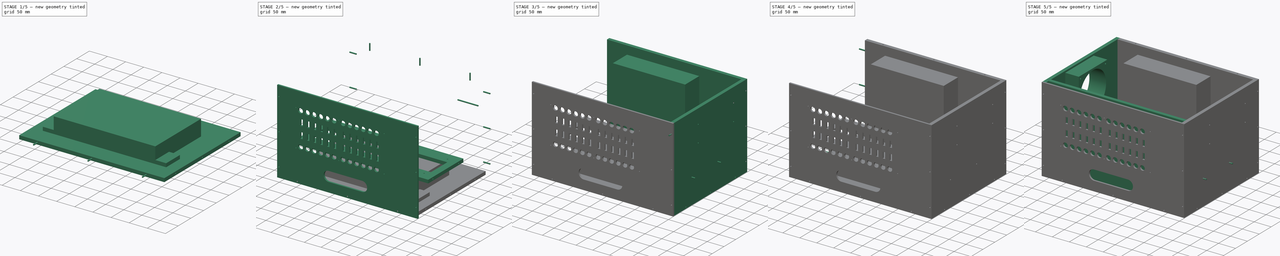
[diagram: build sequence overview — one tinted view per stage of 5, left to right]
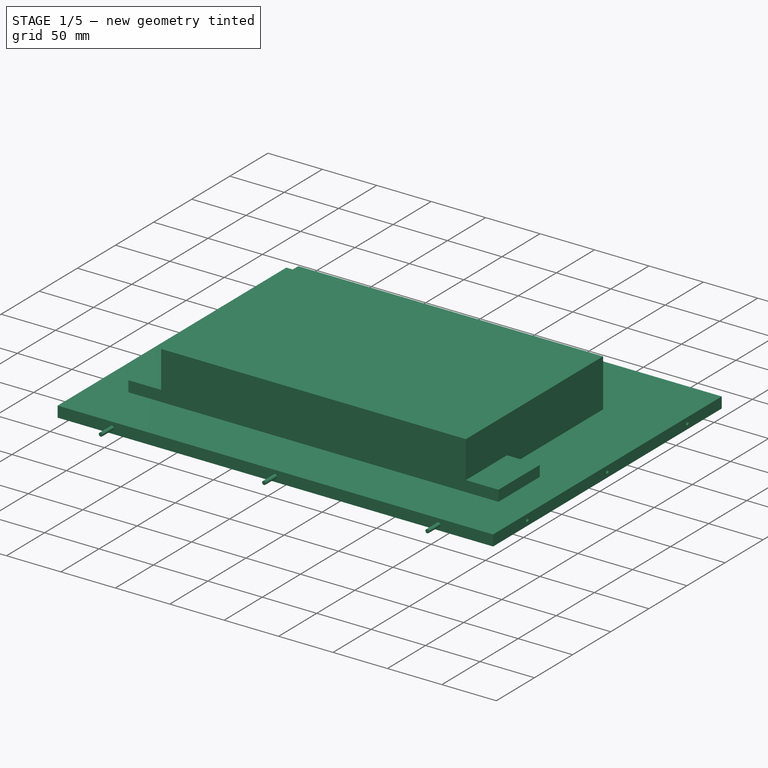
[diagram: stage 1 of 5 — iso view after this stage's code; geometry added in this stage tinted green]
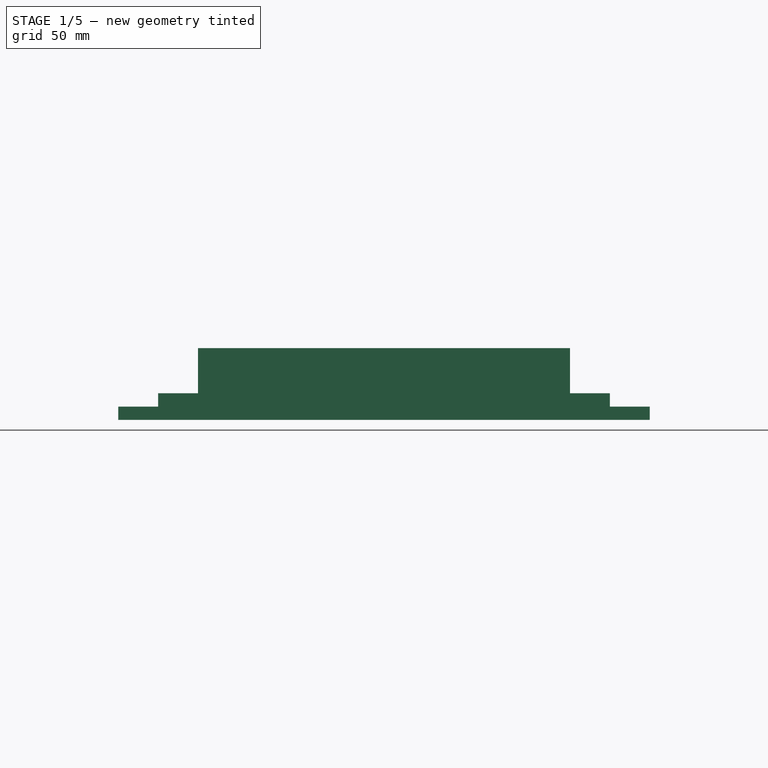
[diagram: stage 1 of 5 — front view after this stage's code; geometry added in this stage tinted green]
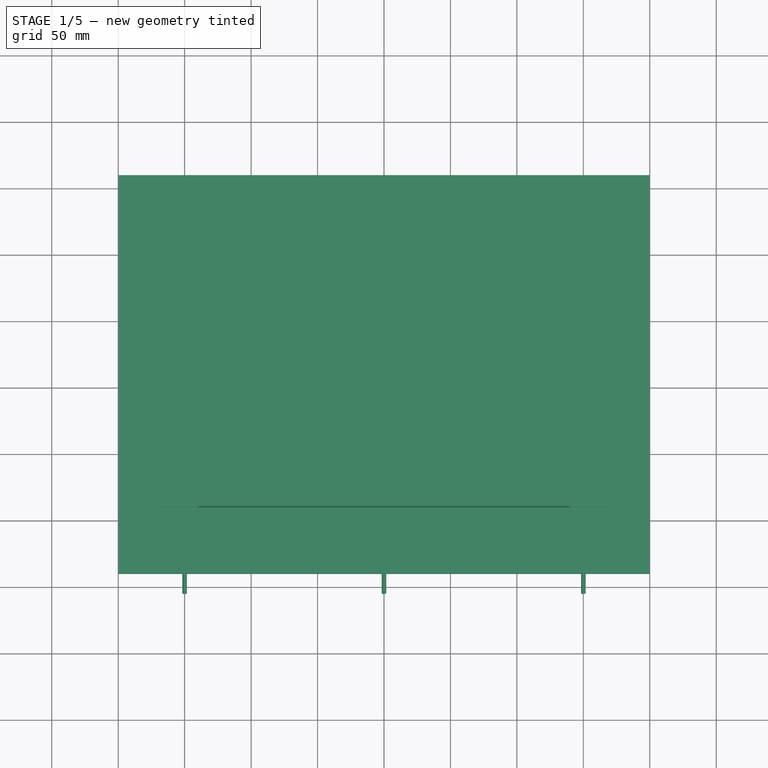
[diagram: stage 1 of 5 — top view after this stage's code; geometry added in this stage tinted green]
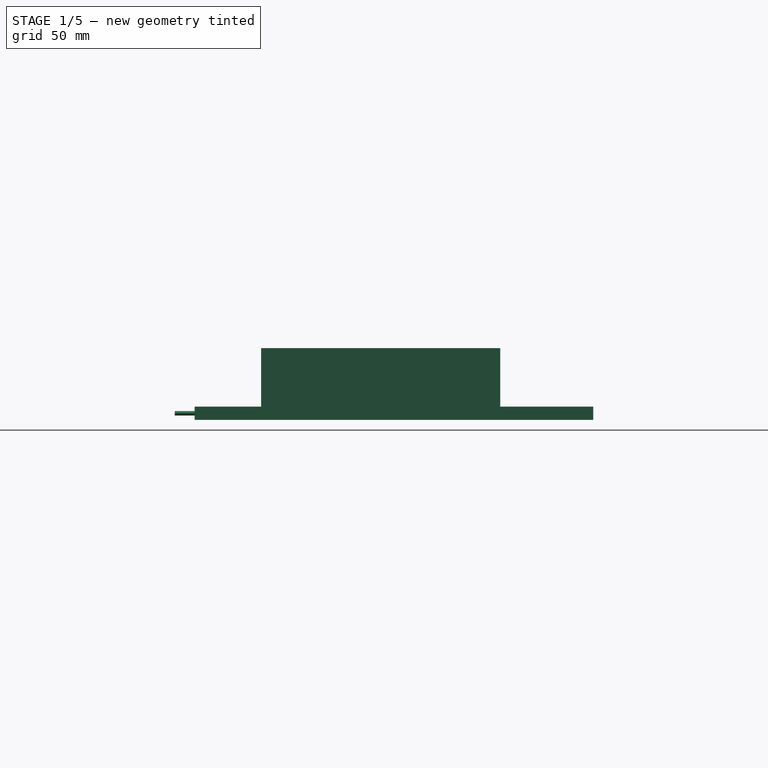
[diagram: stage 1 of 5 — right view after this stage's code; geometry added in this stage tinted green]
FCSTD DOCUMENT  (FreeCAD 0.16R6706 (Git))
Label: MSE-BOX
License: All rights reserved
LicenseURL: http://en.wikipedia.org/wiki/All_rights_reserved
objects: Part::Cylinder×50, Drawing::FeatureViewPython×25, Sketcher::SketchObject×22, PartDesign::Pad×21, Part::MultiFuse×17, Part::Cut×17, App::DocumentObjectGroup×7, Drawing::FeatureViewPart×5, Part::Box×2, Drawing::FeaturePage×1
note: 150 computed .brp shape members not serialized (recipe doc carries the construction recipe); baked Part::Feature solids carry a one-line shape summary decoded from their .brp

FEATURE [Sketcher::SketchObject] Sketch
  sketch-geometry (4):
    g0: LineSegment StartX=-140 StartY=90 StartZ=0 EndX=140 EndY=90 EndZ=0
    g1: LineSegment StartX=140 StartY=90 StartZ=0 EndX=140 EndY=-90 EndZ=0
    g2: LineSegment StartX=140 StartY=-90 StartZ=0 EndX=-140 EndY=-90 EndZ=0
    g3: LineSegment StartX=-140 StartY=-90 StartZ=0 EndX=-140 EndY=90 EndZ=0
  constraints (12):
    c: Coincident(g0,g1)
    c: Coincident(g1,g2)
    c: Coincident(g2,g3)
    c: Coincident(g3,g0)
    c: Horizontal(g0)
    c: Horizontal(g2)
    c: Vertical(g1)
    c: Vertical(g3)
    c: Distance(g1) = 180
    c: Distance(g0) = 280
    c: DistanceX(g0) = 140
    c: DistanceY(g0) = 90
FEATURE [PartDesign::Pad] Pad
  Length = 44
  Length2 = 100
  Sketch = -> Sketch
  Type = 0
FEATURE [Sketcher::SketchObject] Sketch001
  sketch-geometry (8):
    g0: LineSegment StartX=140 StartY=-36 StartZ=0 EndX=170 EndY=-36 EndZ=0
    g1: LineSegment StartX=170 StartY=-36 StartZ=0 EndX=170 EndY=-90 EndZ=0
    g2: LineSegment StartX=170 StartY=-90 StartZ=0 EndX=140 EndY=-90 EndZ=0
    g3: LineSegment StartX=140 StartY=-90 StartZ=0 EndX=140 EndY=-36 EndZ=0
    g4: LineSegment StartX=-170 StartY=-36 StartZ=0 EndX=-140 EndY=-36 EndZ=0
    g5: LineSegment StartX=-140 StartY=-36 StartZ=0 EndX=-140 EndY=-90 EndZ=0
    g6: LineSegment StartX=-140 StartY=-90 StartZ=0 EndX=-170 EndY=-90 EndZ=0
    g7: LineSegment StartX=-170 StartY=-90 StartZ=0 EndX=-170 EndY=-36 EndZ=0
  constraints (21):
    c: Coincident(g0,g1)
    c: Coincident(g1,g2)
    c: Coincident(g3,g0)
    c: Horizontal(g0)
    c: Horizontal(g2)
    c: Vertical(g1)
    c: Vertical(g3)
    c: DistanceY(g1,g1) = 54
    c: DistanceX(g0,g0) = 30
    c: Coincident(g4,g5)
    c: Coincident(g5,g6)
    c: Coincident(g6,g7)
    c: Coincident(g7,g4)
    c: Horizontal(g4)
    c: Horizontal(g6)
    c: Vertical(g5)
    c: Vertical(g7)
    c: DistanceX(g5) = -140
    c: DistanceY(g5) = -90
    c: DistanceX(g6,g6) = 30
    c: DistanceY(g7,g7) = 54
FEATURE [PartDesign::Pad] Pad001
  Length = 10
  Length2 = 100
  Sketch = -> Sketch001
  Type = 0
FEATURE [Sketcher::SketchObject] Sketch002
  Placement = pos=(0,0,-10) rot=(1,0,0;3.14159rad)
  sketch-geometry (4):
    g0: LineSegment StartX=-200 StartY=140 StartZ=0 EndX=200 EndY=140 EndZ=0
    g1: LineSegment StartX=200 StartY=140 StartZ=0 EndX=200 EndY=-160 EndZ=0
    g2: LineSegment StartX=200 StartY=-160 StartZ=0 EndX=-200 EndY=-160 EndZ=0
    g3: LineSegment StartX=-200 StartY=-160 StartZ=0 EndX=-200 EndY=140 EndZ=0
  constraints (13):
    c: Coincident(g1,g2)
    c: Coincident(g2,g3)
    c: Coincident(g3,g0)
    c: Horizontal(g0)
    c: Horizontal(g2)
    c: Vertical(g1)
    c: Vertical(g3)
    c: DistanceX(g0) = 200
    c: DistanceX(g0,g0) = 400
    c: DistanceX(g1) = 200
    c: DistanceY(g1,g1) = 300
    c: DistanceY(g-1,g0) = 140
    c: DistanceY(g1,g-1) = 160
FEATURE [PartDesign::Pad] Pad002  label="底面板"
  Length = 10
  Length2 = 100
  Placement = pos=(0,0,-10) rot=(1,0,0;3.14159rad)
  Reversed = true
  Sketch = -> Sketch002
  Type = 0
FEATURE [Part::Cylinder] Cylinder
  Angle = 360
  Height = 50
  Placement = pos=(155,-66,-25) rot=(0,0,1;0rad)
  Radius = 5
FEATURE [Part::Cylinder] Cylinder001
  Angle = 360
  Height = 50
  Placement = pos=(-155,-66,-30) rot=(0,0,1;0rad)
  Radius = 5
FEATURE [Part::MultiFuse] Fusion  label="交换机"
  Shapes = -> [Pad001,Pad]
FEATURE [Sketcher::SketchObject] Sketch022
  Placement = pos=(0,-135,0) rot=(1,0,0;1.5708rad)
  sketch-geometry (3):
    g0: Circle CenterX=-150 CenterY=-5 CenterZ=0 NormalX=0 NormalY=0 NormalZ=1 Radius=1.7
    g1: Circle CenterX=0 CenterY=-5 CenterZ=0 NormalX=0 NormalY=0 NormalZ=1 Radius=1.7
    g2: Circle CenterX=150 CenterY=-5 CenterZ=0 NormalX=0 NormalY=0 NormalZ=1 Radius=1.7
  constraints (9):
    c: Radius(g0) = 1.7
    c: Equal(g0,g1)
    c: Equal(g0,g2)
    c: DistanceY(g0) = -5
    c: DistanceY(g1) = -5
    c: DistanceY(g2) = -5
    c: DistanceX(g1) = 0
    c: DistanceX(g0) = -150
    c: DistanceX(g2) = 150
FEATURE [PartDesign::Pad] Pad020  label="底面三个螺丝"
  Length = 20
  Length2 = 100
  Placement = pos=(0,-135,0) rot=(1,0,0;1.5708rad)
  Sketch = -> Sketch022
  Type = 0
FEATURE [Sketcher::SketchObject] Sketch023
  Placement = pos=(0,-135,0) rot=(1,0,0;1.5708rad)
  sketch-geometry (3):
    g0: Circle CenterX=-150 CenterY=-5 CenterZ=0 NormalX=0 NormalY=0 NormalZ=1 Radius=1.7
    g1: Circle CenterX=0 CenterY=-5 CenterZ=0 NormalX=0 NormalY=0 NormalZ=1 Radius=1.7
    g2: Circle CenterX=150 CenterY=-5 CenterZ=0 NormalX=0 NormalY=0 NormalZ=1 Radius=1.7
  constraints (9):
    c: Radius(g0) = 1.7
    c: Equal(g0,g1)
    c: Equal(g0,g2)
    c: DistanceY(g0) = -5
    c: DistanceY(g1) = -5
    c: DistanceY(g2) = -5
    c: DistanceX(g1) = 0
    c: DistanceX(g0) = -150
    c: DistanceX(g2) = 150
FEATURE [PartDesign::Pad] Pad021  label="底面前三个螺丝001"
  Length = 20
  Length2 = 100
  Placement = pos=(0,-135,0) rot=(1,0,0;1.5708rad)
  Sketch = -> Sketch023
  Type = 0
FEATURE [App::DocumentObjectGroup] Group003  label="前面"
  Group = -> [Cut017]
FEATURE [Part::Cylinder] Cylinder046  label="下004"
  Angle = 360
  Height = 20
  Placement = pos=(-220,-90,-5) rot=(0,1,0;1.5708rad)
  Radius = 1.7
FEATURE [Part::Cylinder] Cylinder047  label="下005"
  Angle = 360
  Height = 20
  Placement = pos=(-220,120,-5) rot=(0,1,0;1.5708rad)
  Radius = 1.7
FEATURE [Part::Cylinder] Cylinder048  label="下006"
  Angle = 360
  Height = 20
  Placement = pos=(-220,15,-5) rot=(0,1,0;1.5708rad)
  Radius = 1.7
FEATURE [Part::MultiFuse] Fusion015
  Placement = pos=(5,-5,0) rot=(0,0,1;0rad)
  Shapes = -> [Cylinder048,Cylinder047,Cylinder046]
FEATURE [Part::Cylinder] Cylinder049  label="下007"
  Angle = 360
  Height = 20
  Placement = pos=(-220,-90,-5) rot=(0,1,0;1.5708rad)
  Radius = 1.7
FEATURE [Part::Cylinder] Cylinder050  label="下008"
  Angle = 360
  Height = 20
  Placement = pos=(-220,120,-5) rot=(0,1,0;1.5708rad)
  Radius = 1.7
FEATURE [Part::Cylinder] Cylinder051  label="下009"
  Angle = 360
  Height = 20
  Placement = pos=(-220,15,-5) rot=(0,1,0;1.5708rad)
  Radius = 1.7
FEATURE [Part::MultiFuse] Fusion016
  Placement = pos=(415,-5,0) rot=(0,0,1;0rad)
  Shapes = -> [Cylinder051,Cylinder050,Cylinder049]
FEATURE [Sketcher::SketchObject] Sketch024
  Placement = pos=(0,175,0) rot=(1,0,0;1.5708rad)
  sketch-geometry (3):
    g0: Circle CenterX=-150 CenterY=-5 CenterZ=0 NormalX=0 NormalY=0 NormalZ=1 Radius=1.7
    g1: Circle CenterX=0 CenterY=-5 CenterZ=0 NormalX=0 NormalY=0 NormalZ=1 Radius=1.7
    g2: Circle CenterX=150 CenterY=-5 CenterZ=0 NormalX=0 NormalY=0 NormalZ=1 Radius=1.7
  constraints (9):
    c: Radius(g0) = 1.7
    c: Equal(g0,g1)
    c: Equal(g0,g2)
    c: DistanceY(g0) = -5
    c: DistanceY(g1) = -5
    c: DistanceY(g2) = -5
    c: DistanceX(g1) = 0
    c: DistanceX(g0) = -150
    c: DistanceX(g2) = 150
FEATURE [PartDesign::Pad] Pad022  label="底面后三个螺丝002"
  Length = 20
  Length2 = 100
  Placement = pos=(0,175,0) rot=(1,0,0;1.5708rad)
  Sketch = -> Sketch024
  Type = 0
FEATURE [Part::MultiFuse] Fusion017  label="底面螺丝"
  Shapes = -> [Pad022,Fusion016,Fusion015,Pad021]
FEATURE [Part::MultiFuse] Fusion018
  Shapes = -> [Cylinder,Cylinder001]
FEATURE [Part::Cut] Cut
  Base = -> Pad002
  Tool = -> Fusion018
FEATURE [Part::Cut] Cut018
  Base = -> Cut
  Tool = -> Fusion017
FEATURE [App::DocumentObjectGroup] Group004  label="底-面"
  Group = -> [Fusion,Cut018]
FEATURE [Drawing::FeatureViewPart] Ortho  label="Ortho_0_0"
  Direction = (0,0,1)
  HiddenWidth = 0.15
  LineWidth = 0.35
  Rotation = 0
  Scale = 0.375
  ShowHiddenLines = false
  ShowSmoothLines = false
  Source = -> Cut018
  Tolerance = 0.05
  ViewResult = <g id="Ortho_0_0"\n   transform="rotate(0,210,122.25) translate(210,122.25) scale(0.375,0.375)"\n  >\n<g   stroke="rgb(0, 0, 0)"\n   stroke-width="0.933333"\n   stroke-linecap="butt"\n   stroke-linejoin="miter"\n   fill="none"\n   transform="scale(1,-1)"\n  >\n<path id= "1" d=" M -200 -140 L 200 -140 " />\n<path id= "2" d=" M -200 160 L -200 -140 " />\n<path d="M-200,116.7 L-200,116.657  L-200,116.532  L-200,116.329  L-200,116.06  L-200,115.738  L-200,115.378  L-200,115  L-200,114.622  L-200,114.262  L-200,113.94  L-200,113.671  L-200,113.468  L-200,113.343  L-200,113.3 " /><path d="M-200,11.7 L-200,11.6574  L-200,11.5316  L-200,11.3291  L-200,11.0599  L-200,10.7376  L-200,10.3783  L-200,10  L-200,9.62171  L-200,9.2624  L-200,8.94007  L-200,8.67089  L-200,8.46835  L-200,8.34262  L-200,8.3 " /><path d="M-200,-93.3 L-200,-93.3426  L-200,-93.4684  L-200,-93.6709  L-200,-93.9401  L-200,-94.2624  L-200,-94.6217  L-200,-95  L-200,-95.3783  L-200,-95.7376  L-200,-96.0599  L-200,-96.3291  L-200,-96.5316  L-200,-96.6574  L-200,-96.7 " /><path id= "6" d=" M 200 -140 L 200 160 " />\n<path id= "7" d=" M 200 160 L -200 160 " />\n<circle cx ="-155" cy ="-66" r ="5" /><circle cx ="155" cy ="-66" r ="5" /></g>\n</g>
  Visible = true
  X = 210
  Y = 122.25
FEATURE [Drawing::FeatureViewPart] Ortho001  label="Ortho_0_1"
  Direction = (0,1,0)
  HiddenWidth = 0.15
  LineWidth = 0.35
  Rotation = 90
  Scale = 0.375
  ShowHiddenLines = false
  ShowSmoothLines = false
  Source = -> Cut018
  Tolerance = 0.05
  ViewResult = <g id="Ortho_0_1"\n   transform="rotate(90,210,38) translate(210,38) scale(0.375,0.375)"\n  >\n<g   stroke="rgb(0, 0, 0)"\n   stroke-width="0.933333"\n   stroke-linecap="butt"\n   stroke-linejoin="miter"\n   fill="none"\n   transform="scale(1,-1)"\n  >\n<path id= "1" d=" M -10 -200 L 1.95399e-014 -200 " />\n<path d="M-6.7,-200 L-6.65738,-200  L-6.53165,-200  L-6.32911,-200  L-6.05993,-200  L-5.7376,-200  L-5.37829,-200  L-5,-200  L-4.62171,-200  L-4.2624,-200  L-3.94007,-200  L-3.67089,-200  L-3.46835,-200  L-3.34262,-200  L-3.3,-200 " /><path id= "3" d=" M -10 200 L -10 -200 " />\n<path d="M-10,-150 L-10,-150.125  L-10,-150.495  L-10,-151.091  L-10,-151.883  L-10,-152.831  L-10,-153.887  L-10,-155  L-10,-156.113  L-10,-157.169  L-10,-158.117  L-10,-158.909  L-10,-159.505  L-10,-159.875  L-10,-160 " /><path d="M-10,160 L-10,159.875  L-10,159.505  L-10,158.909  L-10,158.117  L-10,157.169  L-10,156.113  L-10,155  L-10,153.887  L-10,152.831  L-10,151.883  L-10,151.091  L-10,150.495  L-10,150.125  L-10,150 " /><path id= "6" d=" M 1.95943e-014 200 L 1.95943e-014 -200 " />\n<path id= "7" d=" M -10 200 L 1.95399e-014 200 " />\n<circle cx ="-5" cy ="150" r ="1.7" /><circle cx ="-5" cy ="-150" r ="1.7" /><circle cx ="-5" cy ="0" r ="1.7" /><circle cx ="-5" cy ="0" r ="1.7" /></g>\n</g>
  Visible = true
  X = 210
  Y = 38
FEATURE [Drawing::FeatureViewPart] Ortho002  label="Ortho_-1_0"
  Direction = (-1,0,0)
  HiddenWidth = 0.15
  LineWidth = 0.35
  Rotation = 180
  Scale = 0.375
  ShowHiddenLines = false
  ShowSmoothLines = false
  Source = -> Cut018
  Tolerance = 0.05
  ViewResult = <g id="Ortho_-1_0"\n   transform="rotate(180,74.375,122.25) translate(74.375,122.25) scale(0.375,0.375)"\n  >\n<g   stroke="rgb(0, 0, 0)"\n   stroke-width="0.933333"\n   stroke-linecap="butt"\n   stroke-linejoin="miter"\n   fill="none"\n   transform="scale(1,-1)"\n  >\n<path id= "1" d=" M 10 140 L 1.77636e-014 140 " />\n<path d="M6.7,140 L6.65738,140  L6.53165,140  L6.32911,140  L6.05993,140  L5.7376,140  L5.37829,140  L5,140  L4.62171,140  L4.2624,140  L3.94007,140  L3.67089,140  L3.46835,140  L3.34262,140  L3.3,140 " /><path id= "3" d=" M 10 -160 L -1.95399e-014 -160 " />\n<path id= "4" d=" M 10 -160 L 10 140 " />\n<path id= "5" d=" M -1.95943e-014 -160 L 1.71451e-014 140 " />\n<circle cx ="5" cy ="-115" r ="1.7" /><circle cx ="5" cy ="-10" r ="1.7" /><circle cx ="5" cy ="95" r ="1.7" /><path d="M7.10543e-015,61 L7.10543e-015,61.1254  L7.10543e-015,61.4952  L7.10543e-015,62.0908  L7.10543e-015,62.8826  L7.10543e-015,63.8306  L7.10543e-015,64.8874  L7.10543e-015,66  L7.10543e-015,67.1126  L7.10543e-015,68.1694  L7.10543e-015,69.1174  L7.10543e-015,69.9092  L7.10543e-015,70.5048  L7.10543e-015,70.8746  L7.10543e-015,71 " /><path d="M6.7,-160 L6.65738,-160  L6.53165,-160  L6.32911,-160  L6.05993,-160  L5.7376,-160  L5.37829,-160  L5,-160  L4.62171,-160  L4.2624,-160  L3.94007,-160  L3.67089,-160  L3.46835,-160  L3.34262,-160  L3.3,-160 " /></g>\n</g>
  Visible = true
  X = 74.375
  Y = 122.25
FEATURE [Drawing::FeatureViewPart] Ortho003  label="Ortho_0_-1"
  Direction = (0,-1,0)
  HiddenWidth = 0.15
  LineWidth = 0.35
  Rotation = 90
  Scale = 0.375
  ShowHiddenLines = false
  ShowSmoothLines = false
  Source = -> Cut018
  Tolerance = 0.05
  ViewResult = <g id="Ortho_0_-1"\n   transform="rotate(90,210,199) translate(210,199) scale(0.375,0.375)"\n  >\n<g   stroke="rgb(0, 0, 0)"\n   stroke-width="0.933333"\n   stroke-linecap="butt"\n   stroke-linejoin="miter"\n   fill="none"\n   transform="scale(1,-1)"\n  >\n<path id= "1" d=" M 10 -200 L 1.77636e-014 -200 " />\n<path id= "2" d=" M 10 -200 L 10 200 " />\n<path id= "3" d=" M 1.71451e-014 -200 L 1.71451e-014 200 " />\n<path id= "4" d=" M 10 200 L 1.77636e-014 200 " />\n<circle cx ="5" cy ="0" r ="1.7" /><circle cx ="5" cy ="-150" r ="1.7" /><circle cx ="5" cy ="150" r ="1.7" /><path d="M7.10543e-015,-160 L7.10543e-015,-159.875  L7.10543e-015,-159.505  L7.10543e-015,-158.909  L7.10543e-015,-158.117  L7.10543e-015,-157.169  L7.10543e-015,-156.113  L7.10543e-015,-155  L7.10543e-015,-153.887  L7.10543e-015,-152.831  L7.10543e-015,-151.883  L7.10543e-015,-151.091  L7.10543e-015,-150.495  L7.10543e-015,-150.125  L7.10543e-015,-150 " /><path d="M7.10543e-015,150 L7.10543e-015,150.125  L7.10543e-015,150.495  L7.10543e-015,151.091  L7.10543e-015,151.883  L7.10543e-015,152.831  L7.10543e-015,153.887  L7.10543e-015,155  L7.10543e-015,156.113  L7.10543e-015,157.169  L7.10543e-015,158.117  L7.10543e-015,158.909  L7.10543e-015,159.505  L7.10543e-015,159.875  L7.10543e-015,160 " /><path d="M3.3,200 L3.34262,200  L3.46835,200  L3.67089,200  L3.94007,200  L4.2624,200  L4.62171,200  L5,200  L5.37829,200  L5.7376,200  L6.05993,200  L6.32911,200  L6.53165,200  L6.65738,200  L6.7,200 " /><circle cx ="5" cy ="-150" r ="1.7" /></g>\n</g>
  Visible = true
  X = 210
  Y = 199
FEATURE [Drawing::FeatureViewPart] Ortho004  label="Ortho_1_0"
  Direction = (1,0,0)
  HiddenWidth = 0.15
  LineWidth = 0.35
  Rotation = 180
  Scale = 0.375
  ShowHiddenLines = false
  ShowSmoothLines = false
  Source = -> Cut018
  Tolerance = 0.05
  ViewResult = <g id="Ortho_1_0"\n   transform="rotate(180,345.625,122.25) translate(345.625,122.25) scale(0.375,0.375)"\n  >\n<g   stroke="rgb(0, 0, 0)"\n   stroke-width="0.933333"\n   stroke-linecap="butt"\n   stroke-linejoin="miter"\n   fill="none"\n   transform="scale(1,-1)"\n  >\n<path id= "1" d=" M -10 140 L -1.77636e-014 140 " />\n<path id= "2" d=" M -10 140 L -10 -160 " />\n<path id= "3" d=" M -1.71451e-014 140 L 1.95943e-014 -160 " />\n<path d="M-7.10543e-015,71 L-7.10543e-015,70.9686  L-7.10543e-015,70.8746  L-7.10543e-015,70.7194  L-7.10543e-015,70.5048  L-7.10543e-015,70.2336  L-7.10543e-015,69.9092  L-7.10543e-015,69.5355  L-7.10543e-015,69.1174  L-7.10543e-015,68.6602  L-7.10543e-015,68.1694  L-7.10543e-015,67.6514  L-7.10543e-015,67.1126  L-7.10543e-015,66.5598  L-7.10543e-015,66 " /><path id= "5" d=" M -10 -160 L 1.95399e-014 -160 " />\n<circle cx ="-5" cy ="-10" r ="1.7" /><circle cx ="-5" cy ="-115" r ="1.7" /><circle cx ="-5" cy ="95" r ="1.7" /><path d="M-5,-160 L-5.19034,-160  L-5.37829,-160  L-5.56147,-160  L-5.7376,-160  L-5.90445,-160  L-6.05993,-160  L-6.20208,-160  L-6.32911,-160  L-6.43943,-160  L-6.53165,-160  L-6.6046,-160  L-6.65738,-160  L-6.68931,-160  L-6.7,-160 " /><path d="M-3.3,-160 L-3.31069,-160  L-3.34262,-160  L-3.3954,-160  L-3.46835,-160  L-3.56057,-160  L-3.67089,-160  L-3.79792,-160  L-3.94007,-160  L-4.09555,-160  L-4.2624,-160  L-4.43853,-160  L-4.62171,-160  L-4.80966,-160  L-5,-160 " /></g>\n</g>
  Visible = true
  X = 345.625
  Y = 122.25
FEATURE [Drawing::FeatureViewPython] centerLines001  # drawing view (typed FeaturePython)
  Rotation = 0
  ViewResult = <blob: 2424 chars omitted>
  Visible = true
  X = 0
  Y = 0
  centerLine_color = rgb(0,0,255)
  centerLine_len_dash = 6
  centerLine_len_dot = 3
  centerLine_len_gap = 2
  centerLine_width = 0.32
  click1_x = 61.4434
  click1_y = 119.315
  click2_x = 363.302
  click2_y = 118.957
FEATURE [Drawing::FeatureViewPython] centerLines002  # drawing view (typed FeaturePython)
  Rotation = 0
  ViewResult = <g transform="scale(0.375000,0.375000)" stroke="rgb(0,0,255)"  stroke-width="0.853333" > <path d="M 560.000000,166.000000 L 560.000000,158.000000 M 560.000000,152.666667 L 560.000000,136.666667 M 560.000000,131.333333 L 560.000000,123.333333 M 560.000000,118.000000 L 560.000000,102.000000 M 560.000000,96.666667 L 560.000000,88.666667 M 560.000000,83.333333 L 560.000000,67.333333 "/>\n<path d="M 560.000000,166.000000 L 560.000000,174.000000 M 560.000000,179.333333 L 560.000000,195.333333 M 560.000000,200.666667 L 560.000000,208.666667 M 560.000000,214.000000 L 560.000000,230.000000 M 560.000000,235.333333 L 560.000000,243.333333 M 560.000000,248.666667 L 560.000000,264.666667 M 560.000000,270.000000 L 560.000000,278.000000 M 560.000000,283.333333 L 560.000000,299.333333 M 560.000000,304.666667 L 560.000000,312.666667 M 560.000000,318.000000 L 560.000000,334.000000 M 560.000000,339.333333 L 560.000000,347.333333 M 560.000000,352.666667 L 560.000000,368.666667 M 560.000000,374.000000 L 560.000000,382.000000 M 560.000000,387.333333 L 560.000000,403.333333 M 560.000000,408.666667 L 560.000000,416.666667 M 560.000000,422.000000 L 560.000000,438.000000 M 560.000000,443.333333 L 560.000000,451.333333 M 560.000000,456.666667 L 560.000000,472.666667 M 560.000000,478.000000 L 560.000000,486.000000 M 560.000000,491.333333 L 560.000000,507.333333 M 560.000000,512.666667 L 560.000000,520.666667 M 560.000000,526.000000 L 560.000000,542.000000 M 560.000000,547.333333 L 560.000000,555.333333 "/> </g> 
  Visible = true
  X = 0
  Y = 0
  centerLine_color = rgb(0,0,255)
  centerLine_len_dash = 6
  centerLine_len_dot = 3
  centerLine_len_gap = 2
  centerLine_width = 0.32
  click1_x = 211.123
  click1_y = 24.2916
  click2_x = 228.627
  click2_y = 208.622
FEATURE [Drawing::FeatureViewPython] dim001  # drawing view (typed FeaturePython)
  Rotation = 0
  ViewResult = <g> \n  <line x1="285.000000" y1="60.250000" x2="285.000000" y2="55.089927" style="stroke:rgb(0,0,255);stroke-width:0.50" />\n<line x1="135.000000" y1="60.250000" x2="135.000000" y2="55.089927" style="stroke:rgb(0,0,255);stroke-width:0.50" />\n<line x1="285.000000" y1="56.089927" x2="135.000000" y2="56.089927" style="stroke:rgb(0,0,255);stroke-width:0.50" /> \n  <polygon points="135.000000,56.089927 138.000000,57.089927 139.000000,56.089927 138.000000,55.089927" style="fill:rgb(0,0,255);stroke:rgb(0,0,255);stroke-width:0" /><polygon points="285.000000,56.089927 282.000000,55.089927 281.000000,56.089927 282.000000,57.089927" style="fill:rgb(0,0,255);stroke:rgb(0,0,255);stroke-width:0" /> \n  <text x="210.000000" y="54.089927" font-family="inherit" font-size="3.6" fill="rgb(0,0,255)" text-anchor="middle" transform="rotate(0.000000 210.000000,54.089927)" >400</text> </g>
  Visible = true
  X = 0
  Y = 0
  arrowL1 = 3
  arrowL2 = 1
  arrowW = 2
  arrow_scheme = 0
  autoPlaceOffset = 2
  autoPlaceText = true
  click1_x = 169.248
  click1_y = 56.0899
  click2_x = 169.248
  click2_y = 56.0899
  comma_decimal_place = false
  dimension_line_overshoot = 1
  gap_datum_points = 2
  halfDimension_linear = false
  lineColor = rgb(0,0,255)
  strokeWidth = 0.5
  textFormat_linear = %(value)3.3f
  textRenderer_color = rgb(0,0,255)
  textRenderer_family = inherit
  textRenderer_size = 3.6
  unit_custom_scale = 1
  unit_scheme = 0
FEATURE [Drawing::FeatureViewPython] dim002  # drawing view (typed FeaturePython)
  Rotation = 0
  ViewResult = <g> \n  <line x1="285.000000" y1="32.250000" x2="285.000000" y2="26.718859" style="stroke:rgb(0,0,255);stroke-width:0.50" />\n<line x1="135.000000" y1="32.250000" x2="135.000000" y2="26.718859" style="stroke:rgb(0,0,255);stroke-width:0.50" />\n<line x1="285.000000" y1="27.718859" x2="135.000000" y2="27.718859" style="stroke:rgb(0,0,255);stroke-width:0.50" /> \n  <polygon points="135.000000,27.718859 138.000000,28.718859 139.000000,27.718859 138.000000,26.718859" style="fill:rgb(0,0,255);stroke:rgb(0,0,255);stroke-width:0" /><polygon points="285.000000,27.718859 282.000000,26.718859 281.000000,27.718859 282.000000,28.718859" style="fill:rgb(0,0,255);stroke:rgb(0,0,255);stroke-width:0" /> \n  <text x="210.000000" y="25.718859" font-family="inherit" font-size="3.6" fill="rgb(0,0,255)" text-anchor="middle" transform="rotate(0.000000 210.000000,25.718859)" >400</text> </g>
  Visible = true
  X = 0
  Y = 0
  arrowL1 = 3
  arrowL2 = 1
  arrowW = 2
  arrow_scheme = 0
  autoPlaceOffset = 2
  autoPlaceText = true
  click1_x = 196.315
  click1_y = 27.7189
  click2_x = 196.315
  click2_y = 27.7189
  comma_decimal_place = false
  dimension_line_overshoot = 1
  gap_datum_points = 2
  halfDimension_linear = false
  lineColor = rgb(0,0,255)
  strokeWidth = 0.5
  textFormat_linear = %(value)3.3f
  textRenderer_color = rgb(0,0,255)
  textRenderer_family = inherit
  textRenderer_size = 3.6
  unit_custom_scale = 1
  unit_scheme = 0
FEATURE [Drawing::FeatureViewPython] dim003  # drawing view (typed FeaturePython)
  Rotation = 0
  ViewResult = <g> \n  <line x1="133.000000" y1="62.250000" x2="122.593502" y2="62.250000" style="stroke:rgb(0,0,255);stroke-width:0.50" />\n<line x1="133.000000" y1="174.750000" x2="122.593502" y2="174.750000" style="stroke:rgb(0,0,255);stroke-width:0.50" />\n<line x1="123.593502" y1="62.250000" x2="123.593502" y2="174.750000" style="stroke:rgb(0,0,255);stroke-width:0.50" /> \n  <polygon points="123.593502,174.750000 124.593502,171.750000 123.593502,170.750000 122.593502,171.750000" style="fill:rgb(0,0,255);stroke:rgb(0,0,255);stroke-width:0" /><polygon points="123.593502,62.250000 122.593502,65.250000 123.593502,66.250000 124.593502,65.250000" style="fill:rgb(0,0,255);stroke:rgb(0,0,255);stroke-width:0" /> \n  <text x="121.593502" y="118.500000" font-family="inherit" font-size="3.6" fill="rgb(0,0,255)" text-anchor="middle" transform="rotate(-90.000000 121.593502,118.500000)" >300</text> </g>
  Visible = true
  X = 0
  Y = 0
  arrowL1 = 3
  arrowL2 = 1
  arrowW = 2
  arrow_scheme = 0
  autoPlaceOffset = 2
  autoPlaceText = true
  click1_x = 123.594
  click1_y = 97.5052
  click2_x = 123.594
  click2_y = 97.5052
  comma_decimal_place = false
  dimension_line_overshoot = 1
  gap_datum_points = 2
  halfDimension_linear = false
  lineColor = rgb(0,0,255)
  strokeWidth = 0.5
  textFormat_linear = %(value)3.3f
  textRenderer_color = rgb(0,0,255)
  textRenderer_family = inherit
  textRenderer_size = 3.6
  unit_custom_scale = 1
  unit_scheme = 0
FEATURE [Drawing::FeatureViewPython] dim004  # drawing view (typed FeaturePython)
  Rotation = 0
  ViewResult = <g> \n  <line x1="68.625000" y1="62.250000" x2="62.916429" y2="62.250000" style="stroke:rgb(0,0,255);stroke-width:0.50" />\n<line x1="68.625000" y1="174.750000" x2="62.916429" y2="174.750000" style="stroke:rgb(0,0,255);stroke-width:0.50" />\n<line x1="63.916429" y1="62.250000" x2="63.916429" y2="174.750000" style="stroke:rgb(0,0,255);stroke-width:0.50" /> \n  <polygon points="63.916429,174.750000 64.916429,171.750000 63.916429,170.750000 62.916429,171.750000" style="fill:rgb(0,0,255);stroke:rgb(0,0,255);stroke-width:0" /><polygon points="63.916429,62.250000 62.916429,65.250000 63.916429,66.250000 64.916429,65.250000" style="fill:rgb(0,0,255);stroke:rgb(0,0,255);stroke-width:0" /> \n  <text x="61.916429" y="118.500000" font-family="inherit" font-size="3.6" fill="rgb(0,0,255)" text-anchor="middle" transform="rotate(-90.000000 61.916429,118.500000)" >300</text> </g>
  Visible = true
  X = 0
  Y = 0
  arrowL1 = 3
  arrowL2 = 1
  arrowW = 2
  arrow_scheme = 0
  autoPlaceOffset = 2
  autoPlaceText = true
  click1_x = 63.9164
  click1_y = 105.658
  click2_x = 63.9164
  click2_y = 105.658
  comma_decimal_place = false
  dimension_line_overshoot = 1
  gap_datum_points = 2
  halfDimension_linear = false
  lineColor = rgb(0,0,255)
  strokeWidth = 0.5
  textFormat_linear = %(value)3.3f
  textRenderer_color = rgb(0,0,255)
  textRenderer_family = inherit
  textRenderer_size = 3.6
  unit_custom_scale = 1
  unit_scheme = 0
FEATURE [Drawing::FeatureViewPython] dim005  # drawing view (typed FeaturePython)
  Rotation = 0
  ViewResult = <g> \n  <line x1="70.625000" y1="60.250000" x2="70.625000" y2="58.485362" style="stroke:rgb(0,0,255);stroke-width:0.50" />\n<line x1="74.375000" y1="60.250000" x2="74.375000" y2="58.485362" style="stroke:rgb(0,0,255);stroke-width:0.50" />\n<line x1="70.625000" y1="59.485362" x2="74.375000" y2="59.485362" style="stroke:rgb(0,0,255);stroke-width:0.50" /> \n  <polygon points="74.375000,59.485362 77.375000,60.485362 78.375000,59.485362 77.375000,58.485362" style="fill:rgb(0,0,255);stroke:rgb(0,0,255);stroke-width:0" /><polygon points="70.625000,59.485362 67.625000,58.485362 66.625000,59.485362 67.625000,60.485362" style="fill:rgb(0,0,255);stroke:rgb(0,0,255);stroke-width:0" /> \n  <text x="72.500000" y="57.485362" font-family="inherit" font-size="3.6" fill="rgb(0,0,255)" text-anchor="middle" transform="rotate(0.000000 72.500000,57.485362)" >10</text> </g>
  Visible = true
  X = 0
  Y = 0
  arrowL1 = 3
  arrowL2 = 1
  arrowW = 2
  arrow_scheme = 0
  autoPlaceOffset = 2
  autoPlaceText = true
  click1_x = 75.5198
  click1_y = 59.4854
  click2_x = 75.5198
  click2_y = 59.4854
  comma_decimal_place = false
  dimension_line_overshoot = 1
  gap_datum_points = 2
  halfDimension_linear = false
  lineColor = rgb(0,0,255)
  strokeWidth = 0.5
  textFormat_linear = %(value)3.3f
  textRenderer_color = rgb(0,0,255)
  textRenderer_family = inherit
  textRenderer_size = 3.6
  unit_custom_scale = 1
  unit_scheme = 0
FEATURE [Drawing::FeatureViewPython] dim006  # drawing view (typed FeaturePython)
  Rotation = 0
  ViewResult = <g> \n  <line x1="153.875000" y1="147.000000" x2="166.316727" y2="147.000000" style="stroke:rgb(0,0,255);stroke-width:0.50" />\n<line x1="63.443437" y1="118.500000" x2="166.316727" y2="118.500000" style="stroke:rgb(0,0,255);stroke-width:0.50" />\n<line x1="165.316727" y1="147.000000" x2="165.316727" y2="118.500000" style="stroke:rgb(0,0,255);stroke-width:0.50" /> \n  <polygon points="165.316727,118.500000 164.316727,121.500000 165.316727,122.500000 166.316727,121.500000" style="fill:rgb(0,0,255);stroke:rgb(0,0,255);stroke-width:0" /><polygon points="165.316727,147.000000 166.316727,144.000000 165.316727,143.000000 164.316727,144.000000" style="fill:rgb(0,0,255);stroke:rgb(0,0,255);stroke-width:0" /> \n  <text x="163.316727" y="132.750000" font-family="inherit" font-size="3.6" fill="rgb(0,0,255)" text-anchor="middle" transform="rotate(-90.000000 163.316727,132.750000)" >76</text> </g>
  Visible = true
  X = 0
  Y = 0
  arrowL1 = 3
  arrowL2 = 1
  arrowW = 2
  arrow_scheme = 0
  autoPlaceOffset = 2
  autoPlaceText = true
  click1_x = 165.317
  click1_y = 122.855
  click2_x = 165.317
  click2_y = 122.855
  comma_decimal_place = false
  dimension_line_overshoot = 1
  gap_datum_points = 2
  halfDimension_linear = false
  lineColor = rgb(0,0,255)
  strokeWidth = 0.5
  textFormat_linear = %(value)3.3f
  textRenderer_color = rgb(0,0,255)
  textRenderer_family = inherit
  textRenderer_size = 3.6
  unit_custom_scale = 1
  unit_scheme = 0
FEATURE [Drawing::FeatureViewPython] dim007  # drawing view (typed FeaturePython)
  Rotation = 0
  ViewResult = <g> \n  <line x1="151.875000" y1="149.000000" x2="151.875000" y2="157.856134" style="stroke:rgb(0,0,255);stroke-width:0.50" />\n<line x1="210.000000" y1="206.250000" x2="210.000000" y2="155.856134" style="stroke:rgb(0,0,255);stroke-width:0.50" />\n<line x1="151.875000" y1="156.856134" x2="210.000000" y2="156.856134" style="stroke:rgb(0,0,255);stroke-width:0.50" /> \n  <polygon points="210.000000,156.856134 207.000000,155.856134 206.000000,156.856134 207.000000,157.856134" style="fill:rgb(0,0,255);stroke:rgb(0,0,255);stroke-width:0" /><polygon points="151.875000,156.856134 154.875000,157.856134 155.875000,156.856134 154.875000,155.856134" style="fill:rgb(0,0,255);stroke:rgb(0,0,255);stroke-width:0" /> \n  <text x="180.937500" y="154.856134" font-family="inherit" font-size="3.6" fill="rgb(0,0,255)" text-anchor="middle" transform="rotate(0.000000 180.937500,154.856134)" >155</text> </g>
  Visible = true
  X = 0
  Y = 0
  arrowL1 = 3
  arrowL2 = 1
  arrowW = 2
  arrow_scheme = 0
  autoPlaceOffset = 2
  autoPlaceText = true
  click1_x = 200.554
  click1_y = 156.856
  click2_x = 200.554
  click2_y = 156.856
  comma_decimal_place = false
  dimension_line_overshoot = 1
  gap_datum_points = 2
  halfDimension_linear = false
  lineColor = rgb(0,0,255)
  strokeWidth = 0.5
  textFormat_linear = %(value)3.3f
  textRenderer_color = rgb(0,0,255)
  textRenderer_family = inherit
  textRenderer_size = 3.6
  unit_custom_scale = 1
  unit_scheme = 0
FEATURE [Drawing::FeatureViewPython] dim008  # drawing view (typed FeaturePython)
  Rotation = 0
  ViewResult = <g> \n  <line x1="266.125000" y1="147.000000" x2="252.285485" y2="147.000000" style="stroke:rgb(0,0,255);stroke-width:0.50" />\n<line x1="361.302181" y1="118.500000" x2="252.285485" y2="118.500000" style="stroke:rgb(0,0,255);stroke-width:0.50" />\n<line x1="253.285485" y1="147.000000" x2="253.285485" y2="118.500000" style="stroke:rgb(0,0,255);stroke-width:0.50" /> \n  <polygon points="253.285485,118.500000 252.285485,121.500000 253.285485,122.500000 254.285485,121.500000" style="fill:rgb(0,0,255);stroke:rgb(0,0,255);stroke-width:0" /><polygon points="253.285485,147.000000 254.285485,144.000000 253.285485,143.000000 252.285485,144.000000" style="fill:rgb(0,0,255);stroke:rgb(0,0,255);stroke-width:0" /> \n  <text x="251.285485" y="132.750000" font-family="inherit" font-size="3.6" fill="rgb(0,0,255)" text-anchor="middle" transform="rotate(-90.000000 251.285485,132.750000)" >76</text> </g>
  Visible = true
  X = 0
  Y = 0
  arrowL1 = 3
  arrowL2 = 1
  arrowW = 2
  arrow_scheme = 0
  autoPlaceOffset = 2
  autoPlaceText = true
  click1_x = 253.285
  click1_y = 130.736
  click2_x = 253.285
  click2_y = 130.736
  comma_decimal_place = false
  dimension_line_overshoot = 1
  gap_datum_points = 2
  halfDimension_linear = false
  lineColor = rgb(0,0,255)
  strokeWidth = 0.5
  textFormat_linear = %(value)3.3f
  textRenderer_color = rgb(0,0,255)
  textRenderer_family = inherit
  textRenderer_size = 3.6
  unit_custom_scale = 1
  unit_scheme = 0
FEATURE [Drawing::FeatureViewPython] dim009  # drawing view (typed FeaturePython)
  Rotation = 0
  ViewResult = <g> \n  <line x1="268.125000" y1="149.000000" x2="268.125000" y2="158.032039" style="stroke:rgb(0,0,255);stroke-width:0.50" />\n<line x1="210.000000" y1="206.250000" x2="210.000000" y2="156.032039" style="stroke:rgb(0,0,255);stroke-width:0.50" />\n<line x1="268.125000" y1="157.032039" x2="210.000000" y2="157.032039" style="stroke:rgb(0,0,255);stroke-width:0.50" /> \n  <polygon points="210.000000,157.032039 213.000000,158.032039 214.000000,157.032039 213.000000,156.032039" style="fill:rgb(0,0,255);stroke:rgb(0,0,255);stroke-width:0" /><polygon points="268.125000,157.032039 265.125000,156.032039 264.125000,157.032039 265.125000,158.032039" style="fill:rgb(0,0,255);stroke:rgb(0,0,255);stroke-width:0" /> \n  <text x="239.062500" y="155.032039" font-family="inherit" font-size="3.6" fill="rgb(0,0,255)" text-anchor="middle" transform="rotate(0.000000 239.062500,155.032039)" >155</text> </g>
  Visible = true
  X = 0
  Y = 0
  arrowL1 = 3
  arrowL2 = 1
  arrowW = 2
  arrow_scheme = 0
  autoPlaceOffset = 2
  autoPlaceText = true
  click1_x = 212.601
  click1_y = 157.032
  click2_x = 212.601
  click2_y = 157.032
  comma_decimal_place = false
  dimension_line_overshoot = 1
  gap_datum_points = 2
  halfDimension_linear = false
  lineColor = rgb(0,0,255)
  strokeWidth = 0.5
  textFormat_linear = %(value)3.3f
  textRenderer_color = rgb(0,0,255)
  textRenderer_family = inherit
  textRenderer_size = 3.6
  unit_custom_scale = 1
  unit_scheme = 0
FEATURE [Drawing::FeatureViewPython] dim010  # drawing view (typed FeaturePython)
  Rotation = 0
  ViewResult = <g> \n  <line x1="74.500000" y1="79.125000" x2="85.841413" y2="79.125000" style="stroke:rgb(0,0,255);stroke-width:0.50" />\n<line x1="63.443437" y1="118.500000" x2="85.841413" y2="118.500000" style="stroke:rgb(0,0,255);stroke-width:0.50" />\n<line x1="84.841413" y1="79.125000" x2="84.841413" y2="118.500000" style="stroke:rgb(0,0,255);stroke-width:0.50" /> \n  <polygon points="84.841413,118.500000 85.841413,115.500000 84.841413,114.500000 83.841413,115.500000" style="fill:rgb(0,0,255);stroke:rgb(0,0,255);stroke-width:0" /><polygon points="84.841413,79.125000 83.841413,82.125000 84.841413,83.125000 85.841413,82.125000" style="fill:rgb(0,0,255);stroke:rgb(0,0,255);stroke-width:0" /> \n  <text x="82.841413" y="98.812500" font-family="inherit" font-size="3.6" fill="rgb(0,0,255)" text-anchor="middle" transform="rotate(-90.000000 82.841413,98.812500)" >105</text> </g>
  Visible = true
  X = 0
  Y = 0
  arrowL1 = 3
  arrowL2 = 1
  arrowW = 2
  arrow_scheme = 0
  autoPlaceOffset = 2
  autoPlaceText = true
  click1_x = 84.8414
  click1_y = 118.439
  click2_x = 84.8414
  click2_y = 118.439
  comma_decimal_place = false
  dimension_line_overshoot = 1
  gap_datum_points = 2
  halfDimension_linear = false
  lineColor = rgb(0,0,255)
  strokeWidth = 0.5
  textFormat_linear = %(value)3.3f
  textRenderer_color = rgb(0,0,255)
  textRenderer_family = inherit
  textRenderer_size = 3.6
  unit_custom_scale = 1
  unit_scheme = 0
FEATURE [Drawing::FeatureViewPython] dim011  # drawing view (typed FeaturePython)
  Rotation = 0
  ViewResult = <g> \n  <line x1="74.500000" y1="157.875000" x2="85.857449" y2="157.875000" style="stroke:rgb(0,0,255);stroke-width:0.50" />\n<line x1="63.443437" y1="118.500000" x2="85.857449" y2="118.500000" style="stroke:rgb(0,0,255);stroke-width:0.50" />\n<line x1="84.857449" y1="157.875000" x2="84.857449" y2="118.500000" style="stroke:rgb(0,0,255);stroke-width:0.50" /> \n  <polygon points="84.857449,118.500000 83.857449,121.500000 84.857449,122.500000 85.857449,121.500000" style="fill:rgb(0,0,255);stroke:rgb(0,0,255);stroke-width:0" /><polygon points="84.857449,157.875000 85.857449,154.875000 84.857449,153.875000 83.857449,154.875000" style="fill:rgb(0,0,255);stroke:rgb(0,0,255);stroke-width:0" /> \n  <text x="82.857449" y="138.187500" font-family="inherit" font-size="3.6" fill="rgb(0,0,255)" text-anchor="middle" transform="rotate(-90.000000 82.857449,138.187500)" >105</text> </g>
  Visible = true
  X = 0
  Y = 0
  arrowL1 = 3
  arrowL2 = 1
  arrowW = 2
  arrow_scheme = 0
  autoPlaceOffset = 2
  autoPlaceText = true
  click1_x = 84.8574
  click1_y = 119.587
  click2_x = 84.8574
  click2_y = 119.587
  comma_decimal_place = false
  dimension_line_overshoot = 1
  gap_datum_points = 2
  halfDimension_linear = false
  lineColor = rgb(0,0,255)
  strokeWidth = 0.5
  textFormat_linear = %(value)3.3f
  textRenderer_color = rgb(0,0,255)
  textRenderer_family = inherit
  textRenderer_size = 3.6
  unit_custom_scale = 1
  unit_scheme = 0
FEATURE [Drawing::FeatureViewPython] dim012  # drawing view (typed FeaturePython)
  Rotation = 0
  ViewResult = <g> \n  <line x1="345.500000" y1="79.125000" x2="336.471423" y2="79.125000" style="stroke:rgb(0,0,255);stroke-width:0.50" />\n<line x1="361.302181" y1="118.500000" x2="336.471423" y2="118.500000" style="stroke:rgb(0,0,255);stroke-width:0.50" />\n<line x1="337.471423" y1="79.125000" x2="337.471423" y2="118.500000" style="stroke:rgb(0,0,255);stroke-width:0.50" /> \n  <polygon points="337.471423,118.500000 338.471423,115.500000 337.471423,114.500000 336.471423,115.500000" style="fill:rgb(0,0,255);stroke:rgb(0,0,255);stroke-width:0" /><polygon points="337.471423,79.125000 336.471423,82.125000 337.471423,83.125000 338.471423,82.125000" style="fill:rgb(0,0,255);stroke:rgb(0,0,255);stroke-width:0" /> \n  <text x="335.471423" y="98.812500" font-family="inherit" font-size="3.6" fill="rgb(0,0,255)" text-anchor="middle" transform="rotate(-90.000000 335.471423,98.812500)" >105</text> </g>
  Visible = true
  X = 0
  Y = 0
  arrowL1 = 3
  arrowL2 = 1
  arrowW = 2
  arrow_scheme = 0
  autoPlaceOffset = 2
  autoPlaceText = true
  click1_x = 337.471
  click1_y = 117.542
  click2_x = 337.471
  click2_y = 117.542
  comma_decimal_place = false
  dimension_line_overshoot = 1
  gap_datum_points = 2
  halfDimension_linear = false
  lineColor = rgb(0,0,255)
  strokeWidth = 0.5
  textFormat_linear = %(value)3.3f
  textRenderer_color = rgb(0,0,255)
  textRenderer_family = inherit
  textRenderer_size = 3.6
  unit_custom_scale = 1
  unit_scheme = 0
FEATURE [Drawing::FeatureViewPython] dim013  # drawing view (typed FeaturePython)
  Rotation = 0
  ViewResult = <g> \n  <line x1="361.302181" y1="118.500000" x2="336.471423" y2="118.500000" style="stroke:rgb(0,0,255);stroke-width:0.50" />\n<line x1="345.500000" y1="157.875000" x2="336.471423" y2="157.875000" style="stroke:rgb(0,0,255);stroke-width:0.50" />\n<line x1="337.471423" y1="118.500000" x2="337.471423" y2="157.875000" style="stroke:rgb(0,0,255);stroke-width:0.50" /> \n  <polygon points="337.471423,157.875000 338.471423,154.875000 337.471423,153.875000 336.471423,154.875000" style="fill:rgb(0,0,255);stroke:rgb(0,0,255);stroke-width:0" /><polygon points="337.471423,118.500000 336.471423,121.500000 337.471423,122.500000 338.471423,121.500000" style="fill:rgb(0,0,255);stroke:rgb(0,0,255);stroke-width:0" /> \n  <text x="335.471423" y="138.187500" font-family="inherit" font-size="3.6" fill="rgb(0,0,255)" text-anchor="middle" transform="rotate(-90.000000 335.471423,138.187500)" >105</text> </g>
  Visible = true
  X = 0
  Y = 0
  arrowL1 = 3
  arrowL2 = 1
  arrowW = 2
  arrow_scheme = 0
  autoPlaceOffset = 2
  autoPlaceText = true
  click1_x = 337.471
  click1_y = 155.825
  click2_x = 337.471
  click2_y = 155.825
  comma_decimal_place = false
  dimension_line_overshoot = 1
  gap_datum_points = 2
  halfDimension_linear = false
  lineColor = rgb(0,0,255)
  strokeWidth = 0.5
  textFormat_linear = %(value)3.3f
  textRenderer_color = rgb(0,0,255)
  textRenderer_family = inherit
  textRenderer_size = 3.6
  unit_custom_scale = 1
  unit_scheme = 0
FEATURE [Drawing::FeatureViewPython] dia001  # drawing view (typed FeaturePython)
  Rotation = 0
  ViewResult = <g>  <circle cx ="153.750000" cy ="36.125000" r="0.250000" stroke="none" fill="rgb(0,0,255)" /> \n<line x1="145.116381" y1="43.480564" x2="154.235265" y2="36.538430" style="stroke:rgb(0,0,255);stroke-width:0.50" />\n<polygon points="153.264735,35.711570 151.629654,33.004818 150.219936,33.117500 150.332619,34.527217" style="fill:rgb(0,0,255);stroke:rgb(0,0,255);stroke-width:0" />\n<polygon points="154.235265,36.538430 155.870346,39.245182 157.280064,39.132500 157.167381,37.722783" style="fill:rgb(0,0,255);stroke:rgb(0,0,255);stroke-width:0" />\n<line x1="145.116381" y1="43.480564" x2="135.061501" y2="43.480564" style="stroke:rgb(0,0,255);stroke-width:0.50" />\n<text x="140.088941" y="41.480564" font-family="inherit" font-size="3.6" fill="rgb(0,0,255)" text-anchor="middle" transform="rotate(0.000000 140.088941,41.480564)" >Ø3.4</text> </g>
  Visible = true
  X = 0
  Y = 0
  arrowL1 = 3
  arrowL2 = 1
  arrowW = 2
  arrow_scheme = 0
  autoPlaceOffset = 2
  autoPlaceText = true
  centerPointDia = 0.5
  click1_x = 145.116
  click1_y = 43.4806
  click2_x = 135.062
  click2_y = 42.3935
  click3_x = 135.062
  click3_y = 42.3935
  comma_decimal_place = false
  lineColor = rgb(0,0,255)
  strokeWidth = 0.5
  textFormat_circular = Ø%(value)3.3f
  textRenderer_color = rgb(0,0,255)
  textRenderer_family = inherit
  textRenderer_size = 3.6
  unit_custom_scale = 1
  unit_scheme = 0
FEATURE [Drawing::FeatureViewPython] dia002  # drawing view (typed FeaturePython)
  Rotation = 0
  ViewResult = <g>  <circle cx ="72.500000" cy ="79.125000" r="0.250000" stroke="none" fill="rgb(0,0,255)" /> \n<line x1="81.526057" y1="70.927670" x2="72.971925" y2="79.553595" style="stroke:rgb(0,0,255);stroke-width:0.50" />\n<polygon points="72.028075,78.696405 70.479560,75.939215 69.066981,76.007183 69.134949,77.419762" style="fill:rgb(0,0,255);stroke:rgb(0,0,255);stroke-width:0" />\n<polygon points="72.971925,79.553595 74.520440,82.310785 75.933019,82.242817 75.865051,80.830238" style="fill:rgb(0,0,255);stroke:rgb(0,0,255);stroke-width:0" />\n<line x1="81.526057" y1="70.927670" x2="88.591649" y2="70.927670" style="stroke:rgb(0,0,255);stroke-width:0.50" />\n<text x="85.058853" y="68.927670" font-family="inherit" font-size="3.6" fill="rgb(0,0,255)" text-anchor="middle" transform="rotate(0.000000 85.058853,68.927670)" >Ø3.4</text> </g>
  Visible = true
  X = 0
  Y = 0
  arrowL1 = 3
  arrowL2 = 1
  arrowW = 2
  arrow_scheme = 0
  autoPlaceOffset = 2
  autoPlaceText = true
  centerPointDia = 0.5
  click1_x = 81.5261
  click1_y = 70.9277
  click2_x = 88.5916
  click2_y = 71.1994
  click3_x = 88.5916
  click3_y = 71.1994
  comma_decimal_place = false
  lineColor = rgb(0,0,255)
  strokeWidth = 0.5
  textFormat_circular = Ø%(value)3.3f
  textRenderer_color = rgb(0,0,255)
  textRenderer_family = inherit
  textRenderer_size = 3.6
  unit_custom_scale = 1
  unit_scheme = 0
FEATURE [Drawing::FeatureViewPython] dia003  # drawing view (typed FeaturePython)
  Rotation = 0
  ViewResult = <g>  <circle cx ="347.500000" cy ="79.125000" r="0.250000" stroke="none" fill="rgb(0,0,255)" /> \n<line x1="336.430862" y1="70.384163" x2="348.000318" y2="79.520080" style="stroke:rgb(0,0,255);stroke-width:0.50" />\n<polygon points="346.999682,78.729920 345.264979,76.085907 343.860433,76.250986 344.025512,77.655531" style="fill:rgb(0,0,255);stroke:rgb(0,0,255);stroke-width:0" />\n<polygon points="348.000318,79.520080 349.735021,82.164093 351.139567,81.999014 350.974488,80.594469" style="fill:rgb(0,0,255);stroke:rgb(0,0,255);stroke-width:0" />\n<line x1="336.430862" y1="70.384163" x2="327.734749" y2="70.384163" style="stroke:rgb(0,0,255);stroke-width:0.50" />\n<text x="332.082806" y="68.384163" font-family="inherit" font-size="3.6" fill="rgb(0,0,255)" text-anchor="middle" transform="rotate(0.000000 332.082806,68.384163)" >Ø3.4</text> </g>
  Visible = true
  X = 0
  Y = 0
  arrowL1 = 3
  arrowL2 = 1
  arrowW = 2
  arrow_scheme = 0
  autoPlaceOffset = 2
  autoPlaceText = true
  centerPointDia = 0.5
  click1_x = 336.431
  click1_y = 70.3842
  click2_x = 327.735
  click2_y = 70.3842
  click3_x = 327.735
  click3_y = 70.3842
  comma_decimal_place = false
  lineColor = rgb(0,0,255)
  strokeWidth = 0.5
  textFormat_circular = Ø%(value)3.3f
  textRenderer_color = rgb(0,0,255)
  textRenderer_family = inherit
  textRenderer_size = 3.6
  unit_custom_scale = 1
  unit_scheme = 0
FEATURE [Drawing::FeatureViewPython] dia004  # drawing view (typed FeaturePython)
  Rotation = 0
  ViewResult = <g>  <circle cx ="151.875000" cy ="147.000000" r="0.250000" stroke="none" fill="rgb(0,0,255)" /> \n<line x1="148.377424" y1="135.061501" x2="152.402155" y2="148.799370" style="stroke:rgb(0,0,255);stroke-width:0.50" />\n<polygon points="151.347845,145.200630 151.464062,142.040488 150.223249,141.361973 149.544734,142.602787" style="fill:rgb(0,0,255);stroke:rgb(0,0,255);stroke-width:0" />\n<polygon points="152.402155,148.799370 152.285938,151.959512 153.526751,152.638027 154.205266,151.397213" style="fill:rgb(0,0,255);stroke:rgb(0,0,255);stroke-width:0" />\n<line x1="148.377424" y1="135.061501" x2="141.855339" y2="135.061501" style="stroke:rgb(0,0,255);stroke-width:0.50" />\n<text x="145.116381" y="133.061501" font-family="inherit" font-size="3.6" fill="rgb(0,0,255)" text-anchor="middle" transform="rotate(0.000000 145.116381,133.061501)" >Ø10</text> </g>
  Visible = true
  X = 0
  Y = 0
  arrowL1 = 3
  arrowL2 = 1
  arrowW = 2
  arrow_scheme = 0
  autoPlaceOffset = 2
  autoPlaceText = true
  centerPointDia = 0.5
  click1_x = 148.377
  click1_y = 135.062
  click2_x = 141.855
  click2_y = 134.79
  click3_x = 141.855
  click3_y = 134.79
  comma_decimal_place = false
  lineColor = rgb(0,0,255)
  strokeWidth = 0.5
  textFormat_circular = Ø%(value)3.3f
  textRenderer_color = rgb(0,0,255)
  textRenderer_family = inherit
  textRenderer_size = 3.6
  unit_custom_scale = 1
  unit_scheme = 0
FEATURE [Drawing::FeatureViewPython] dia005  # drawing view (typed FeaturePython)
  Rotation = 0
  ViewResult = <g>  <circle cx ="268.125000" cy ="147.000000" r="0.250000" stroke="none" fill="rgb(0,0,255)" /> \n<line x1="272.568784" y1="135.876762" x2="268.820614" y2="148.741191" style="stroke:rgb(0,0,255);stroke-width:0.50" />\n<polygon points="267.429386,145.258809 267.245040,142.101909 265.945410,141.544268 265.387769,142.843897" style="fill:rgb(0,0,255);stroke:rgb(0,0,255);stroke-width:0" />\n<polygon points="268.820614,148.741191 269.004960,151.898091 270.304590,152.455732 270.862231,151.156103" style="fill:rgb(0,0,255);stroke:rgb(0,0,255);stroke-width:0" />\n<line x1="272.568784" y1="135.876762" x2="281.264897" y2="135.876762" style="stroke:rgb(0,0,255);stroke-width:0.50" />\n<text x="276.916840" y="133.876762" font-family="inherit" font-size="3.6" fill="rgb(0,0,255)" text-anchor="middle" transform="rotate(0.000000 276.916840,133.876762)" >Ø10</text> </g>
  Visible = true
  X = 0
  Y = 0
  arrowL1 = 3
  arrowL2 = 1
  arrowW = 2
  arrow_scheme = 0
  autoPlaceOffset = 2
  autoPlaceText = true
  centerPointDia = 0.5
  click1_x = 272.569
  click1_y = 135.877
  click2_x = 281.265
  click2_y = 136.964
  click3_x = 281.265
  click3_y = 136.964
  comma_decimal_place = false
  lineColor = rgb(0,0,255)
  strokeWidth = 0.5
  textFormat_circular = Ø%(value)3.3f
  textRenderer_color = rgb(0,0,255)
  textRenderer_family = inherit
  textRenderer_size = 3.6
  unit_custom_scale = 1
  unit_scheme = 0
FEATURE [Drawing::FeatureViewPython] dia006  # drawing view (typed FeaturePython)
  Rotation = 0
  ViewResult = <g>  <circle cx ="266.250000" cy ="200.875000" r="0.250000" stroke="none" fill="rgb(0,0,255)" /> \n<line x1="271.481770" y1="192.401495" x2="266.584915" y2="201.417437" style="stroke:rgb(0,0,255);stroke-width:0.50" />\n<polygon points="265.915085,200.332563 265.189895,197.254560 263.813656,196.929036 263.488131,198.305275" style="fill:rgb(0,0,255);stroke:rgb(0,0,255);stroke-width:0" />\n<polygon points="266.584915,201.417437 267.310105,204.495440 268.686344,204.820964 269.011869,203.444725" style="fill:rgb(0,0,255);stroke:rgb(0,0,255);stroke-width:0" />\n<line x1="271.481770" y1="192.401495" x2="279.362622" y2="192.401495" style="stroke:rgb(0,0,255);stroke-width:0.50" />\n<text x="275.422196" y="190.401495" font-family="inherit" font-size="3.6" fill="rgb(0,0,255)" text-anchor="middle" transform="rotate(0.000000 275.422196,190.401495)" >Ø3.4</text> </g>
  Visible = true
  X = 0
  Y = 0
  arrowL1 = 3
  arrowL2 = 1
  arrowW = 2
  arrow_scheme = 0
  autoPlaceOffset = 2
  autoPlaceText = true
  centerPointDia = 0.5
  click1_x = 271.482
  click1_y = 192.401
  click2_x = 279.363
  click2_y = 191.858
  click3_x = 279.363
  click3_y = 191.858
  comma_decimal_place = false
  lineColor = rgb(0,0,255)
  strokeWidth = 0.5
  textFormat_circular = Ø%(value)3.3f
  textRenderer_color = rgb(0,0,255)
  textRenderer_family = inherit
  textRenderer_size = 3.6
  unit_custom_scale = 1
  unit_scheme = 0
FEATURE [Drawing::FeatureViewPython] dim014  # drawing view (typed FeaturePython)
  Rotation = 0
  ViewResult = <g> \n  <line x1="153.750000" y1="198.875000" x2="153.750000" y2="194.822549" style="stroke:rgb(0,0,255);stroke-width:0.50" />\n<line x1="210.000000" y1="198.875000" x2="210.000000" y2="194.822549" style="stroke:rgb(0,0,255);stroke-width:0.50" />\n<line x1="153.750000" y1="195.822549" x2="210.000000" y2="195.822549" style="stroke:rgb(0,0,255);stroke-width:0.50" /> \n  <polygon points="210.000000,195.822549 207.000000,194.822549 206.000000,195.822549 207.000000,196.822549" style="fill:rgb(0,0,255);stroke:rgb(0,0,255);stroke-width:0" /><polygon points="153.750000,195.822549 156.750000,196.822549 157.750000,195.822549 156.750000,194.822549" style="fill:rgb(0,0,255);stroke:rgb(0,0,255);stroke-width:0" /> \n  <text x="181.875000" y="193.822549" font-family="inherit" font-size="3.6" fill="rgb(0,0,255)" text-anchor="middle" transform="rotate(0.000000 181.875000,193.822549)" >150</text> </g>
  Visible = true
  X = 0
  Y = 0
  arrowL1 = 3
  arrowL2 = 1
  arrowW = 2
  arrow_scheme = 0
  autoPlaceOffset = 2
  autoPlaceText = true
  click1_x = 207.578
  click1_y = 195.823
  click2_x = 207.578
  click2_y = 195.823
  comma_decimal_place = false
  dimension_line_overshoot = 1
  gap_datum_points = 2
  halfDimension_linear = false
  lineColor = rgb(0,0,255)
  strokeWidth = 0.5
  textFormat_linear = %(value)3.3f
  textRenderer_color = rgb(0,0,255)
  textRenderer_family = inherit
  textRenderer_size = 3.6
  unit_custom_scale = 1
  unit_scheme = 0
FEATURE [Drawing::FeatureViewPython] dim015  # drawing view (typed FeaturePython)
  Rotation = 0
  ViewResult = <g> \n  <line x1="210.000000" y1="198.875000" x2="210.000000" y2="194.843091" style="stroke:rgb(0,0,255);stroke-width:0.50" />\n<line x1="266.250000" y1="198.875000" x2="266.250000" y2="194.843091" style="stroke:rgb(0,0,255);stroke-width:0.50" />\n<line x1="210.000000" y1="195.843091" x2="266.250000" y2="195.843091" style="stroke:rgb(0,0,255);stroke-width:0.50" /> \n  <polygon points="266.250000,195.843091 263.250000,194.843091 262.250000,195.843091 263.250000,196.843091" style="fill:rgb(0,0,255);stroke:rgb(0,0,255);stroke-width:0" /><polygon points="210.000000,195.843091 213.000000,196.843091 214.000000,195.843091 213.000000,194.843091" style="fill:rgb(0,0,255);stroke:rgb(0,0,255);stroke-width:0" /> \n  <text x="238.125000" y="193.843091" font-family="inherit" font-size="3.6" fill="rgb(0,0,255)" text-anchor="middle" transform="rotate(0.000000 238.125000,193.843091)" >150</text> </g>
  Visible = true
  X = 0
  Y = 0
  arrowL1 = 3
  arrowL2 = 1
  arrowW = 2
  arrow_scheme = 0
  autoPlaceOffset = 2
  autoPlaceText = true
  click1_x = 262.001
  click1_y = 195.843
  click2_x = 262.001
  click2_y = 195.843
  comma_decimal_place = false
  dimension_line_overshoot = 1
  gap_datum_points = 2
  halfDimension_linear = false
  lineColor = rgb(0,0,255)
  strokeWidth = 0.5
  textFormat_linear = %(value)3.3f
  textRenderer_color = rgb(0,0,255)
  textRenderer_family = inherit
  textRenderer_size = 3.6
  unit_custom_scale = 1
  unit_scheme = 0
FEATURE [Drawing::FeatureViewPython] dim016  # drawing view (typed FeaturePython)
  Rotation = 0
  ViewResult = <g> \n  <line x1="153.750000" y1="38.125000" x2="153.750000" y2="45.663869" style="stroke:rgb(0,0,255);stroke-width:0.50" />\n<line x1="210.000000" y1="38.125000" x2="210.000000" y2="45.663869" style="stroke:rgb(0,0,255);stroke-width:0.50" />\n<line x1="153.750000" y1="44.663869" x2="210.000000" y2="44.663869" style="stroke:rgb(0,0,255);stroke-width:0.50" /> \n  <polygon points="210.000000,44.663869 207.000000,43.663869 206.000000,44.663869 207.000000,45.663869" style="fill:rgb(0,0,255);stroke:rgb(0,0,255);stroke-width:0" /><polygon points="153.750000,44.663869 156.750000,45.663869 157.750000,44.663869 156.750000,43.663869" style="fill:rgb(0,0,255);stroke:rgb(0,0,255);stroke-width:0" /> \n  <text x="181.875000" y="42.663869" font-family="inherit" font-size="3.6" fill="rgb(0,0,255)" text-anchor="middle" transform="rotate(0.000000 181.875000,42.663869)" >150</text> </g>
  Visible = true
  X = 0
  Y = 0
  arrowL1 = 3
  arrowL2 = 1
  arrowW = 2
  arrow_scheme = 0
  autoPlaceOffset = 2
  autoPlaceText = true
  click1_x = 204.377
  click1_y = 44.6639
  click2_x = 204.377
  click2_y = 44.6639
  comma_decimal_place = false
  dimension_line_overshoot = 1
  gap_datum_points = 2
  halfDimension_linear = false
  lineColor = rgb(0,0,255)
  strokeWidth = 0.5
  textFormat_linear = %(value)3.3f
  textRenderer_color = rgb(0,0,255)
  textRenderer_family = inherit
  textRenderer_size = 3.6
  unit_custom_scale = 1
  unit_scheme = 0
FEATURE [Drawing::FeatureViewPython] dim017  # drawing view (typed FeaturePython)
  Rotation = 0
  ViewResult = <g> \n  <line x1="210.000000" y1="38.125000" x2="210.000000" y2="45.623991" style="stroke:rgb(0,0,255);stroke-width:0.50" />\n<line x1="266.250000" y1="38.125000" x2="266.250000" y2="45.623991" style="stroke:rgb(0,0,255);stroke-width:0.50" />\n<line x1="210.000000" y1="44.623991" x2="266.250000" y2="44.623991" style="stroke:rgb(0,0,255);stroke-width:0.50" /> \n  <polygon points="266.250000,44.623991 263.250000,43.623991 262.250000,44.623991 263.250000,45.623991" style="fill:rgb(0,0,255);stroke:rgb(0,0,255);stroke-width:0" /><polygon points="210.000000,44.623991 213.000000,45.623991 214.000000,44.623991 213.000000,43.623991" style="fill:rgb(0,0,255);stroke:rgb(0,0,255);stroke-width:0" /> \n  <text x="238.125000" y="42.623991" font-family="inherit" font-size="3.6" fill="rgb(0,0,255)" text-anchor="middle" transform="rotate(0.000000 238.125000,42.623991)" >150</text> </g>
  Visible = true
  X = 0
  Y = 0
  arrowL1 = 3
  arrowL2 = 1
  arrowW = 2
  arrow_scheme = 0
  autoPlaceOffset = 2
  autoPlaceText = true
  click1_x = 266.667
  click1_y = 44.624
  click2_x = 266.667
  click2_y = 44.624
  comma_decimal_place = false
  dimension_line_overshoot = 1
  gap_datum_points = 2
  halfDimension_linear = false
  lineColor = rgb(0,0,255)
  strokeWidth = 0.5
  textFormat_linear = %(value)3.3f
  textRenderer_color = rgb(0,0,255)
  textRenderer_family = inherit
  textRenderer_size = 3.6
  unit_custom_scale = 1
  unit_scheme = 0
FEATURE [Drawing::FeaturePage] Page
  EditableTexts = AUTHOR NAME | CREATION DATE | SUPERVISOR NAME | CHECK DATE | SCALE | WEIGHT | NUMBER | SHEET | TITLE | SUBTITLE
  Group = -> [Ortho,Ortho001,Ortho002,Ortho003,Ortho004,centerLines001,centerLines002,dim001,dim002,dim003,dim004,dim005,dim006,dim007,dim008,dim009,dim010,dim011,dim012,dim013,dia001,dia002,dia003,dia004,dia005,dia006,dim014,dim015,dim016,dim017]
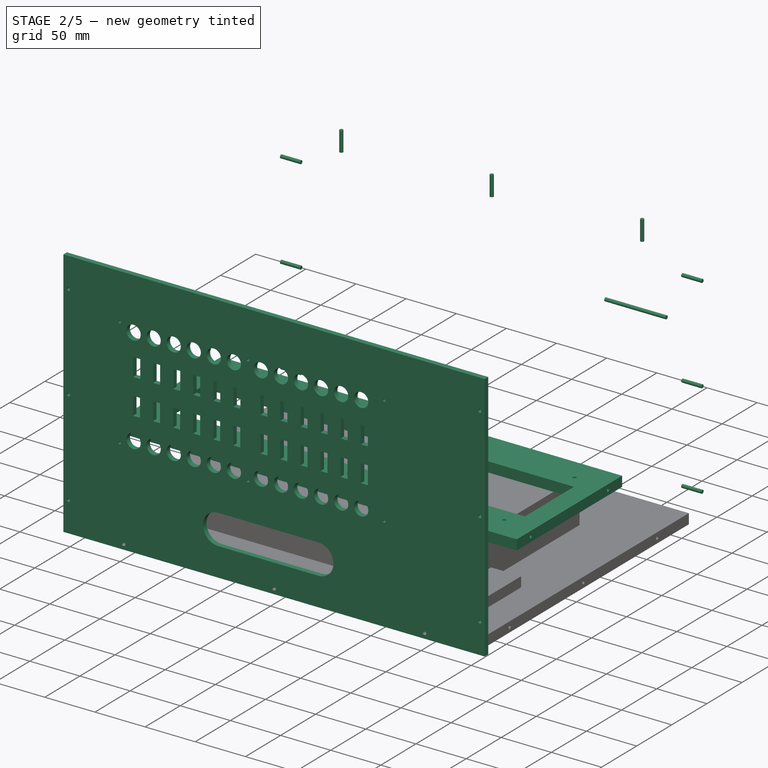
[diagram: stage 2 of 5 — iso view after this stage's code; geometry added in this stage tinted green]
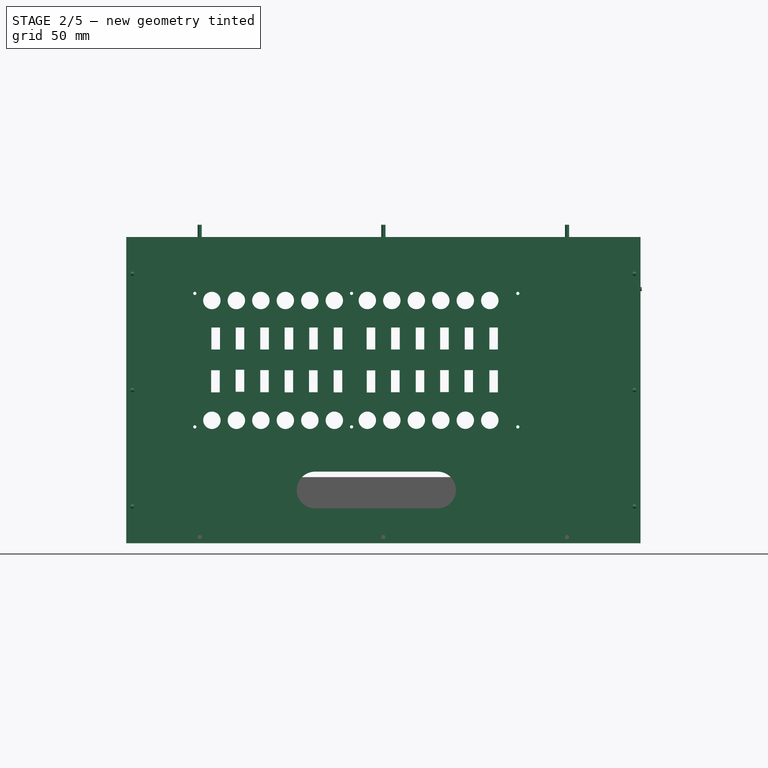
[diagram: stage 2 of 5 — front view after this stage's code; geometry added in this stage tinted green]
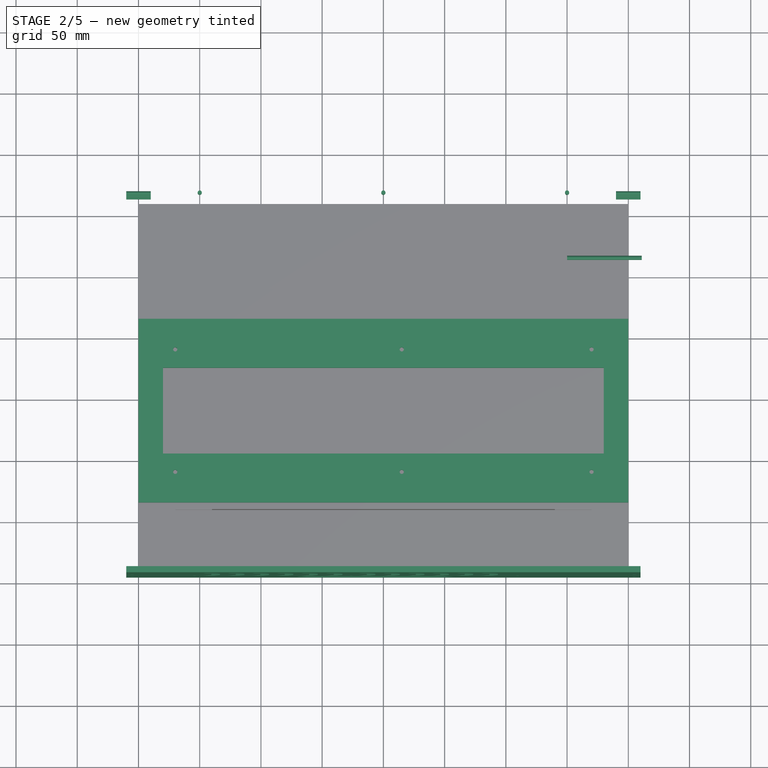
[diagram: stage 2 of 5 — top view after this stage's code; geometry added in this stage tinted green]
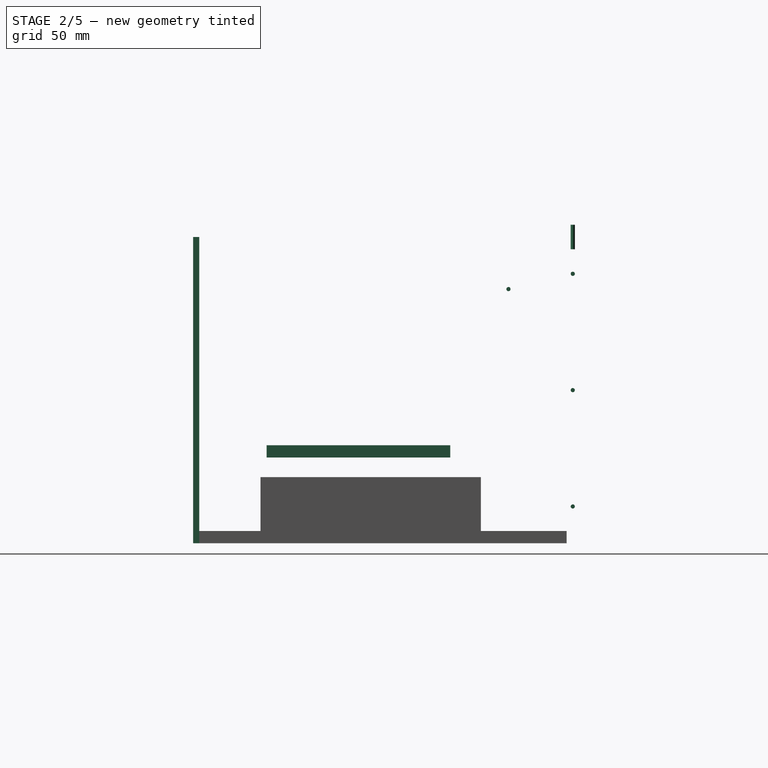
[diagram: stage 2 of 5 — right view after this stage's code; geometry added in this stage tinted green]
FEATURE [Sketcher::SketchObject] Sketch009
  Placement = pos=(-160,-140,200) rot=(0.57735,0.57735,-0.57735;2.0944rad)
  sketch-geometry (134):
    g0: Circle CenterX=11.81 CenterY=19.93 CenterZ=0 NormalX=0 NormalY=0 NormalZ=1 Radius=7.1
    g1: Circle CenterX=11.81 CenterY=39.93 CenterZ=0 NormalX=0 NormalY=0 NormalZ=1 Radius=7.1
    g2: Circle CenterX=11.81 CenterY=59.93 CenterZ=0 NormalX=0 NormalY=0 NormalZ=1 Radius=7.1
    g3: Circle CenterX=11.81 CenterY=79.93 CenterZ=0 NormalX=0 NormalY=0 NormalZ=1 Radius=7.1
    g4: Circle CenterX=11.81 CenterY=99.93 CenterZ=0 NormalX=0 NormalY=0 NormalZ=1 Radius=7.1
    g5: Circle CenterX=11.81 CenterY=119.93 CenterZ=0 NormalX=0 NormalY=0 NormalZ=1 Radius=7.1
    g6: Circle CenterX=11.81 CenterY=146.89 CenterZ=0 NormalX=0 NormalY=0 NormalZ=1 Radius=7.1
    g7: Circle CenterX=11.81 CenterY=166.89 CenterZ=0 NormalX=0 NormalY=0 NormalZ=1 Radius=7.1
    g8: Circle CenterX=11.81 CenterY=186.89 CenterZ=0 NormalX=0 NormalY=0 NormalZ=1 Radius=7.1
    g9: Circle CenterX=11.81 CenterY=246.89 CenterZ=0 NormalX=0 NormalY=0 NormalZ=1 Radius=7.1
    g10: Circle CenterX=109.58 CenterY=246.89 CenterZ=0 NormalX=0 NormalY=0 NormalZ=1 Radius=7.1
    g11: Circle CenterX=11.81 CenterY=226.89 CenterZ=0 NormalX=0 NormalY=0 NormalZ=1 Radius=7.1
    g12: Circle CenterX=11.81 CenterY=206.89 CenterZ=0 NormalX=0 NormalY=0 NormalZ=1 Radius=7.1
    g13: Circle CenterX=109.58 CenterY=186.89 CenterZ=0 NormalX=0 NormalY=0 NormalZ=1 Radius=7.1
    g14: Circle CenterX=109.58 CenterY=226.89 CenterZ=0 NormalX=0 NormalY=0 NormalZ=1 Radius=7.1
    g15: Circle CenterX=109.58 CenterY=206.89 CenterZ=0 NormalX=0 NormalY=0 NormalZ=1 Radius=7.1
    g16: Circle CenterX=109.58 CenterY=166.89 CenterZ=0 NormalX=0 NormalY=0 NormalZ=1 Radius=7.1
    g17: Circle CenterX=109.63 CenterY=146.89 CenterZ=0 NormalX=0 NormalY=0 NormalZ=1 Radius=7.1
    g18: Circle CenterX=109.63 CenterY=119.95 CenterZ=0 NormalX=0 NormalY=0 NormalZ=1 Radius=7.1
    g19: Circle CenterX=109.63 CenterY=99.95 CenterZ=0 NormalX=0 NormalY=0 NormalZ=1 Radius=7.1
    g20: Circle CenterX=109.63 CenterY=79.95 CenterZ=0 NormalX=0 NormalY=0 NormalZ=1 Radius=7.1
    g21: Circle CenterX=109.63 CenterY=59.95 CenterZ=0 NormalX=0 NormalY=0 NormalZ=1 Radius=7.1
    g22: Circle CenterX=109.63 CenterY=39.95 CenterZ=0 NormalX=0 NormalY=0 NormalZ=1 Radius=7.1
    g23: Circle CenterX=109.63 CenterY=19.95 CenterZ=0 NormalX=0 NormalY=0 NormalZ=1 Radius=7.1
    g24: Circle CenterX=5.9944 CenterY=5.9944 CenterZ=0 NormalX=0 NormalY=0 NormalZ=1 Radius=1.3
    g25: Circle CenterX=5.9944 CenterY=134 CenterZ=0 NormalX=0 NormalY=0 NormalZ=1 Radius=1.3
    g26: Circle CenterX=5.9944 CenterY=269.79 CenterZ=0 NormalX=0 NormalY=0 NormalZ=1 Radius=1.3
    g27: Circle CenterX=115 CenterY=269.79 CenterZ=0 NormalX=0 NormalY=0 NormalZ=1 Radius=1.3
    g28: Circle CenterX=115 CenterY=5.9944 CenterZ=0 NormalX=0 NormalY=0 NormalZ=1 Radius=1.3
    g29: Circle CenterX=115 CenterY=134 CenterZ=0 NormalX=0 NormalY=0 NormalZ=1 Radius=1.3
    g30: LineSegment StartX=33.87 StartY=26.57 StartZ=0 EndX=51.87 EndY=26.57 EndZ=0
    g31: LineSegment StartX=51.87 StartY=26.57 StartZ=0 EndX=51.87 EndY=19.57 EndZ=0
    g32: LineSegment StartX=51.87 StartY=19.57 StartZ=0 EndX=33.87 EndY=19.57 EndZ=0
    g33: LineSegment StartX=33.87 StartY=19.57 StartZ=0 EndX=33.87 EndY=26.57 EndZ=0
    g34: LineSegment StartX=33.87 StartY=66.47 StartZ=0 EndX=51.87 EndY=66.47 EndZ=0
    g35: LineSegment StartX=51.87 StartY=66.47 StartZ=0 EndX=51.87 EndY=59.47 EndZ=0
    g36: LineSegment StartX=51.87 StartY=59.47 StartZ=0 EndX=33.87 EndY=59.47 EndZ=0
    g37: LineSegment StartX=33.87 StartY=59.47 StartZ=0 EndX=33.87 EndY=66.47 EndZ=0
    g38: LineSegment StartX=33.87 StartY=86.38 StartZ=0 EndX=51.87 EndY=86.38 EndZ=0
    g39: LineSegment StartX=51.87 StartY=86.38 StartZ=0 EndX=51.87 EndY=79.38 EndZ=0
    g40: LineSegment StartX=51.87 StartY=79.38 StartZ=0 EndX=33.87 EndY=79.38 EndZ=0
    g41: LineSegment StartX=33.87 StartY=79.38 StartZ=0 EndX=33.87 EndY=86.38 EndZ=0
    g42: LineSegment StartX=33.87 StartY=46.4 StartZ=0 EndX=51.87 EndY=46.4 EndZ=0
    g43: LineSegment StartX=51.87 StartY=46.4 StartZ=0 EndX=51.87 EndY=39.4 EndZ=0
    g44: LineSegment StartX=51.87 StartY=39.4 StartZ=0 EndX=33.87 EndY=39.4 EndZ=0
    g45: LineSegment StartX=33.87 StartY=39.4 StartZ=0 EndX=33.87 EndY=46.4 EndZ=0
    g46: LineSegment StartX=33.87 StartY=153.36 StartZ=0 EndX=51.87 EndY=153.36 EndZ=0
    g47: LineSegment StartX=51.87 StartY=153.36 StartZ=0 EndX=51.87 EndY=146.36 EndZ=0
    g48: LineSegment StartX=51.87 StartY=146.36 StartZ=0 EndX=33.87 EndY=146.36 EndZ=0
    g49: LineSegment StartX=33.87 StartY=146.36 StartZ=0 EndX=33.87 EndY=153.36 EndZ=0
    g50: LineSegment StartX=33.87 StartY=126.46 StartZ=0 EndX=51.87 EndY=126.46 EndZ=0
    g51: LineSegment StartX=51.87 StartY=126.46 StartZ=0 EndX=51.87 EndY=119.46 EndZ=0
    g52: LineSegment StartX=51.87 StartY=119.46 StartZ=0 EndX=33.87 EndY=119.46 EndZ=0
    g53: LineSegment StartX=33.87 StartY=119.46 StartZ=0 EndX=33.87 EndY=126.46 EndZ=0
    g54: LineSegment StartX=33.87 StartY=106.43 StartZ=0 EndX=51.87 EndY=106.43 EndZ=0
    g55: LineSegment StartX=51.87 StartY=106.43 StartZ=0 EndX=51.87 EndY=99.43 EndZ=0
    g56: LineSegment StartX=51.87 StartY=99.43 StartZ=0 EndX=33.87 EndY=99.43 EndZ=0
    g57: LineSegment StartX=33.87 StartY=99.43 StartZ=0 EndX=33.87 EndY=106.43 EndZ=0
    g58: LineSegment StartX=33.87 StartY=173.36 StartZ=0 EndX=51.87 EndY=173.36 EndZ=0
    g59: LineSegment StartX=51.87 StartY=173.36 StartZ=0 EndX=51.87 EndY=166.36 EndZ=0
    g60: LineSegment StartX=51.87 StartY=166.36 StartZ=0 EndX=33.87 EndY=166.36 EndZ=0
    g61: LineSegment StartX=33.87 StartY=166.36 StartZ=0 EndX=33.87 EndY=173.36 EndZ=0
    g62: LineSegment StartX=51.87 StartY=213.34 StartZ=0 EndX=33.87 EndY=213.34 EndZ=0
    g63: LineSegment StartX=33.87 StartY=213.34 StartZ=0 EndX=33.87 EndY=206.34 EndZ=0
    g64: LineSegment StartX=33.87 StartY=206.34 StartZ=0 EndX=51.87 EndY=206.34 EndZ=0
    g65: LineSegment StartX=51.87 StartY=206.34 StartZ=0 EndX=51.87 EndY=213.34 EndZ=0
    g66: LineSegment StartX=33.87 StartY=193.39 StartZ=0 EndX=51.87 EndY=193.39 EndZ=0
    g67: LineSegment StartX=51.87 StartY=193.39 StartZ=0 EndX=51.87 EndY=186.39 EndZ=0
    g68: LineSegment StartX=51.87 StartY=186.39 StartZ=0 EndX=33.87 EndY=186.39 EndZ=0
    g69: LineSegment StartX=33.87 StartY=186.39 StartZ=0 EndX=33.87 EndY=193.39 EndZ=0
    g70: LineSegment StartX=33.87 StartY=253.52 StartZ=0 EndX=51.87 EndY=253.52 EndZ=0
    g71: LineSegment StartX=51.87 StartY=253.52 StartZ=0 EndX=51.87 EndY=246.52 EndZ=0
    g72: LineSegment StartX=51.87 StartY=246.52 StartZ=0 EndX=33.87 EndY=246.52 EndZ=0
    g73: LineSegment StartX=33.87 StartY=246.52 StartZ=0 EndX=33.87 EndY=253.52 EndZ=0
    g74: LineSegment StartX=33.8701 StartY=233.4 StartZ=0 EndX=51.8701 EndY=233.4 EndZ=0
    g75: LineSegment StartX=51.8701 StartY=233.4 StartZ=0 EndX=51.8701 EndY=226.4 EndZ=0
    g76: LineSegment StartX=51.8701 StartY=226.4 StartZ=0 EndX=33.8701 EndY=226.4 EndZ=0
    g77: LineSegment StartX=33.8701 StartY=226.4 StartZ=0 EndX=33.8701 EndY=233.4 EndZ=0
    g78: LineSegment StartX=68.82 StartY=26.37 StartZ=0 EndX=86.82 EndY=26.37 EndZ=0
    g79: LineSegment StartX=86.82 StartY=26.37 StartZ=0 EndX=86.82 EndY=19.37 EndZ=0
    g80: LineSegment StartX=86.82 StartY=19.37 StartZ=0 EndX=68.82 EndY=19.37 EndZ=0
    g81: LineSegment StartX=68.82 StartY=19.37 StartZ=0 EndX=68.82 EndY=26.37 EndZ=0
    g82: LineSegment StartX=68.3352 StartY=46.33 StartZ=0 EndX=86.3352 EndY=46.33 EndZ=0
    g83: LineSegment StartX=86.3352 StartY=46.33 StartZ=0 EndX=86.3352 EndY=39.33 EndZ=0
    g84: LineSegment StartX=86.3352 StartY=39.33 StartZ=0 EndX=68.3352 EndY=39.33 EndZ=0
    g85: LineSegment StartX=68.3352 StartY=39.33 StartZ=0 EndX=68.3352 EndY=46.33 EndZ=0
    g86: LineSegment StartX=68.6925 StartY=66.4 StartZ=0 EndX=86.6925 EndY=66.4 EndZ=0
    g87: LineSegment StartX=86.6925 StartY=66.4 StartZ=0 EndX=86.6925 EndY=59.4 EndZ=0
    g88: LineSegment StartX=86.6925 StartY=59.4 StartZ=0 EndX=68.6925 EndY=59.4 EndZ=0
    g89: LineSegment StartX=68.6925 StartY=59.4 StartZ=0 EndX=68.6925 EndY=66.4 EndZ=0
    g90: LineSegment StartX=68.7894 StartY=86.34 StartZ=0 EndX=86.7894 EndY=86.34 EndZ=0
    g91: LineSegment StartX=86.7894 StartY=86.34 StartZ=0 EndX=86.7894 EndY=79.34 EndZ=0
    g92: LineSegment StartX=86.7894 StartY=79.34 StartZ=0 EndX=68.7894 EndY=79.34 EndZ=0
    g93: LineSegment StartX=68.7894 StartY=79.34 StartZ=0 EndX=68.7894 EndY=86.34 EndZ=0
    g94: LineSegment StartX=68.733 StartY=106.27 StartZ=0 EndX=86.733 EndY=106.27 EndZ=0
    g95: LineSegment StartX=86.733 StartY=106.27 StartZ=0 EndX=86.733 EndY=99.27 EndZ=0
    g96: LineSegment StartX=86.733 StartY=99.27 StartZ=0 EndX=68.733 EndY=99.27 EndZ=0
    g97: LineSegment StartX=68.733 StartY=99.27 StartZ=0 EndX=68.733 EndY=106.27 EndZ=0
    g98: LineSegment StartX=68.82 StartY=126.36 StartZ=0 EndX=86.82 EndY=126.36 EndZ=0
    g99: LineSegment StartX=86.82 StartY=126.36 StartZ=0 EndX=86.82 EndY=119.36 EndZ=0
    g100: LineSegment StartX=86.82 StartY=119.36 StartZ=0 EndX=68.82 EndY=119.36 EndZ=0
    g101: LineSegment StartX=68.82 StartY=119.36 StartZ=0 EndX=68.82 EndY=126.36 EndZ=0
    g102: LineSegment StartX=68.8995 StartY=153.372 StartZ=0 EndX=86.8995 EndY=153.372 EndZ=0
    g103: LineSegment StartX=86.8995 StartY=153.372 StartZ=0 EndX=86.8995 EndY=146.372 EndZ=0
    g104: LineSegment StartX=86.8995 StartY=146.372 StartZ=0 EndX=68.8995 EndY=146.372 EndZ=0
    g105: LineSegment StartX=68.8995 StartY=146.372 StartZ=0 EndX=68.8995 EndY=153.372 EndZ=0
    g106: LineSegment StartX=68.7731 StartY=173.267 StartZ=0 EndX=86.7731 EndY=173.267 EndZ=0
    g107: LineSegment StartX=86.7731 StartY=173.267 StartZ=0 EndX=86.7731 EndY=166.267 EndZ=0
    g108: LineSegment StartX=86.7731 StartY=166.267 StartZ=0 EndX=68.7731 EndY=166.267 EndZ=0
    g109: LineSegment StartX=68.7731 StartY=166.267 StartZ=0 EndX=68.7731 EndY=173.267 EndZ=0
    g110: LineSegment StartX=68.781 StartY=193.39 StartZ=0 EndX=86.781 EndY=193.39 EndZ=0
    g111: LineSegment StartX=86.781 StartY=193.39 StartZ=0 EndX=86.781 EndY=186.39 EndZ=0
    g112: LineSegment StartX=86.781 StartY=186.39 StartZ=0 EndX=68.781 EndY=186.39 EndZ=0
    g113: LineSegment StartX=68.781 StartY=186.39 StartZ=0 EndX=68.781 EndY=193.39 EndZ=0
    g114: LineSegment StartX=68.6717 StartY=213.338 StartZ=0 EndX=86.6717 EndY=213.338 EndZ=0
    g115: LineSegment StartX=86.6717 StartY=213.338 StartZ=0 EndX=86.6717 EndY=206.338 EndZ=0
    g116: LineSegment StartX=86.6717 StartY=206.338 StartZ=0 EndX=68.6717 EndY=206.338 EndZ=0
    g117: LineSegment StartX=68.6717 StartY=206.338 StartZ=0 EndX=68.6717 EndY=213.338 EndZ=0
    g118: LineSegment StartX=68.6927 StartY=233.2 StartZ=0 EndX=86.6927 EndY=233.2 EndZ=0
    g119: LineSegment StartX=86.6927 StartY=233.2 StartZ=0 EndX=86.6927 EndY=226.2 EndZ=0
    g120: LineSegment StartX=86.6927 StartY=226.2 StartZ=0 EndX=68.6927 EndY=226.2 EndZ=0
    g121: LineSegment StartX=68.6927 StartY=226.2 StartZ=0 EndX=68.6927 EndY=233.2 EndZ=0
    g122: LineSegment StartX=68.82 StartY=253.52 StartZ=0 EndX=86.82 EndY=253.52 EndZ=0
    g123: LineSegment StartX=86.82 StartY=253.52 StartZ=0 EndX=86.82 EndY=246.52 EndZ=0
    g124: LineSegment StartX=86.82 StartY=246.52 StartZ=0 EndX=68.82 EndY=246.52 EndZ=0
    g125: LineSegment StartX=68.82 StartY=246.52 StartZ=0 EndX=68.82 EndY=253.52 EndZ=0
    g126: LineSegment StartX=-40 StartY=370 StartZ=0 EndX=210 EndY=370 EndZ=0
    g127: LineSegment StartX=210 StartY=370 StartZ=0 EndX=210 EndY=-49.9998 EndZ=0
    g128: LineSegment StartX=210 StartY=-49.9998 StartZ=0 EndX=-40 EndY=-49.9998 EndZ=0
    g129: LineSegment StartX=-40 StartY=-49.9998 StartZ=0 EndX=-40 EndY=370 EndZ=0
    g130: ArcOfCircle CenterX=166.567 CenterY=204.228 CenterZ=0 NormalX=0 NormalY=0 NormalZ=1 Radius=15 StartAngle=0 EndAngle=3.14159
    g131: ArcOfCircle CenterX=166.567 CenterY=104.228 CenterZ=0 NormalX=0 NormalY=0 NormalZ=1 Radius=15 StartAngle=3.14159 EndAngle=6.28319
    g132: LineSegment StartX=151.567 StartY=204.228 StartZ=0 EndX=151.567 EndY=104.228 EndZ=0
    g133: LineSegment StartX=181.567 StartY=204.228 StartZ=0 EndX=181.567 EndY=104.228 EndZ=0
  constraints (346):
    c: Radius(g0) = 7.1
    c: DistanceX(g0) = 11.81
    c: DistanceY(g0) = 19.93
    c: Equal(g1,g2)
    c: DistanceY(g1) = 39.93
    c: DistanceY(g2) = 59.93
    c: Equal(g2,g3)
    c: DistanceY(g3) = 79.93
    c: Equal(g3,g4)
    c: Equal(g4,g5)
    c: Equal(g5,g6)
    c: DistanceY(g4) = 99.93
    c: DistanceY(g5) = 119.93
    c: DistanceY(g6) = 146.89
    c: Equal(g6,g7)
    c: Equal(g7,g8)
    c: DistanceY(g7) = 166.89
    c: DistanceY(g8) = 186.89
    c: Equal(g8,g12)
    c: Equal(g12,g11)
    c: Equal(g11,g10)
    c: Equal(g10,g9)
    c: DistanceY(g12) = 206.89
    c: DistanceY(g11) = 226.89
    c: DistanceY(g9) = 246.89
    c: DistanceX(g10) = 109.58
    c: DistanceY(g10) = 246.89
    c: DistanceX(g14) = 109.58
    c: DistanceY(g14) = 226.89
    c: Equal(g10,g14)
    c: Equal(g14,g15)
    c: Equal(g15,g13)
    c: Equal(g13,g16)
    c: Equal(g16,g17)
    c: Equal(g17,g18)
    c: Equal(g18,g19)
    c: Equal(g19,g20)
    c: Equal(g20,g21)
    c: Equal(g21,g22)
    c: Equal(g22,g23)
    c: DistanceX(g15) = 109.58
    c: DistanceY(g15) = 206.89
    c: DistanceX(g23) = 109.63
    c: DistanceY(g23) = 19.95
    c: DistanceY(g22) = 39.95
    c: DistanceY(g21) = 59.95
    c: DistanceY(g20) = 79.95
    c: DistanceY(g19) = 99.95
    c: DistanceY(g18) = 119.95
    c: DistanceX(g17) = 109.63
    c: DistanceY(g17) = 146.89
    c: DistanceX(g16) = 109.58
    c: DistanceY(g16) = 166.89
    c: DistanceX(g13) = 109.58
    c: DistanceY(g13) = 186.89
    c: Radius(g24) = 1.3
    c: DistanceX(g24) = 5.9944
    c: DistanceY(g24) = 5.9944
    c: Equal(g24,g25)
    c: Equal(g25,g26)
    c: Equal(g26,g28)
    c: Equal(g28,g29)
    c: Equal(g29,g27)
    c: Radius(g1) = 7.1
    c: DistanceX(g25) = 5.9944
    c: DistanceY(g25) = 134
    c: DistanceX(g26) = 5.9944
    c: DistanceY(g26) = 269.79
    c: DistanceX(g28) = 115
    c: DistanceY(g28) = 5.9944
    c: DistanceX(g29) = 115
    c: DistanceY(g29) = 134
    c: DistanceX(g27) = 115
    c: DistanceY(g27) = 269.79
    c: Coincident(g30,g31)
    c: Coincident(g31,g32)
    c: Coincident(g32,g33)
    c: Coincident(g33,g30)
    c: Horizontal(g30)
    c: Horizontal(g32)
    c: Vertical(g31)
    c: Vertical(g33)
    c: DistanceX(g30) = 51.87
    c: Coincident(g34,g35)
    c: Coincident(g35,g36)
    c: Coincident(g36,g37)
    c: Coincident(g37,g34)
    c: Horizontal(g34)
    c: Horizontal(g36)
    c: Vertical(g35)
    c: Vertical(g37)
    c: DistanceX(g32,g32) = 18
    c: DistanceY(g31,g31) = 7
    c: Equal(g32,g34)
    c: Equal(g31,g35)
    c: Coincident(g38,g39)
    c: Coincident(g39,g40)
    c: Coincident(g40,g41)
    c: Coincident(g41,g38)
    c: Horizontal(g38)
    c: Horizontal(g40)
    c: Vertical(g39)
    c: Vertical(g41)
    c: Coincident(g42,g43)
    c: Coincident(g43,g44)
    c: Coincident(g44,g45)
    c: Coincident(g45,g42)
    c: Horizontal(g42)
    c: Horizontal(g44)
    c: Vertical(g43)
    c: Vertical(g45)
    c: Coincident(g46,g47)
    c: Coincident(g47,g48)
    c: Coincident(g48,g49)
    c: Coincident(g49,g46)
    c: Horizontal(g46)
    c: Horizontal(g48)
    c: Vertical(g47)
    c: Vertical(g49)
    c: Coincident(g50,g51)
    c: Coincident(g51,g52)
    c: Coincident(g52,g53)
    c: Coincident(g53,g50)
    c: Horizontal(g50)
    c: Horizontal(g52)
    c: Vertical(g51)
    c: Vertical(g53)
    c: Coincident(g54,g55)
    c: Coincident(g55,g56)
    c: Coincident(g56,g57)
    c: Coincident(g57,g54)
    c: Horizontal(g54)
    c: Horizontal(g56)
    c: Vertical(g55)
    c: Vertical(g57)
    c: Coincident(g58,g59)
    c: Coincident(g59,g60)
    c: Coincident(g60,g61)
    c: Coincident(g61,g58)
    c: Horizontal(g58)
    c: Horizontal(g60)
    c: Vertical(g59)
    c: Vertical(g61)
    c: Coincident(g62,g63)
    c: Coincident(g63,g64)
    c: Coincident(g64,g65)
    c: Coincident(g65,g62)
    c: Horizontal(g62)
    c: Horizontal(g64)
    c: Vertical(g63)
    c: Vertical(g65)
    c: Coincident(g66,g67)
    c: Coincident(g67,g68)
    c: Coincident(g68,g69)
    c: Coincident(g69,g66)
    c: Horizontal(g66)
    c: Horizontal(g68)
    c: Vertical(g67)
    c: Vertical(g69)
    c: Coincident(g70,g71)
    c: Coincident(g71,g72)
    c: Coincident(g72,g73)
    c: Coincident(g73,g70)
    c: Horizontal(g70)
    c: Horizontal(g72)
    c: Vertical(g71)
    c: Vertical(g73)
    c: Coincident(g74,g75)
    c: Coincident(g75,g76)
    c: Coincident(g76,g77)
    c: Coincident(g77,g74)
    c: Horizontal(g74)
    c: Horizontal(g76)
    c: Vertical(g75)
    c: Vertical(g77)
    c: Equal(g34,g38)
    c: Equal(g38,g54)
    c: Equal(g54,g42)
    c: Equal(g35,g55)
    c: Equal(g55,g39)
    c: Equal(g39,g43)
    c: Equal(g32,g60)
    c: Equal(g60,g50)
    c: Equal(g50,g46)
    c: Equal(g46,g66)
    c: Equal(g66,g62)
    c: Equal(g62,g74)
    c: Equal(g74,g70)
    c: Equal(g31,g59)
    c: Equal(g59,g51)
    c: Equal(g51,g47)
    c: Equal(g47,g67)
    c: Equal(g67,g63)
    c: Equal(g63,g75)
    c: Equal(g75,g73)
    c: DistanceY(g50) = 126.46
    c: Coincident(g78,g79)
    c: Coincident(g79,g80)
    c: Coincident(g80,g81)
    c: Coincident(g81,g78)
    c: Horizontal(g78)
    c: Horizontal(g80)
    c: Vertical(g79)
    c: Vertical(g81)
    c: Coincident(g82,g83)
    c: Coincident(g83,g84)
    c: Coincident(g84,g85)
    c: Coincident(g85,g82)
    c: Horizontal(g82)
    c: Horizontal(g84)
    c: Vertical(g83)
    c: Vertical(g85)
    c: Coincident(g86,g87)
    c: Coincident(g87,g88)
    c: Coincident(g88,g89)
    c: Coincident(g89,g86)
    c: Horizontal(g86)
    c: Horizontal(g88)
    c: Vertical(g87)
    c: Vertical(g89)
    c: Coincident(g90,g91)
    c: Coincident(g91,g92)
    c: Coincident(g92,g93)
    c: Coincident(g93,g90)
    c: Horizontal(g90)
    c: Horizontal(g92)
    c: Vertical(g91)
    c: Vertical(g93)
    c: Coincident(g94,g95)
    c: Coincident(g95,g96)
    c: Coincident(g96,g97)
    c: Coincident(g97,g94)
    c: Horizontal(g94)
    c: Horizontal(g96)
    c: Vertical(g95)
    c: Vertical(g97)
    c: Coincident(g98,g99)
    c: Coincident(g99,g100)
    c: Coincident(g100,g101)
    c: Coincident(g101,g98)
    c: Horizontal(g98)
    c: Horizontal(g100)
    c: Vertical(g99)
    c: Vertical(g101)
    c: Coincident(g102,g103)
    c: Coincident(g103,g104)
    c: Coincident(g104,g105)
    c: Coincident(g105,g102)
    c: Horizontal(g102)
    c: Horizontal(g104)
    c: Vertical(g103)
    c: Vertical(g105)
    c: Coincident(g106,g107)
    c: Coincident(g107,g108)
    c: Coincident(g108,g109)
    c: Coincident(g109,g106)
    c: Horizontal(g106)
    c: Horizontal(g108)
    c: Vertical(g107)
    c: Vertical(g109)
    c: Coincident(g110,g111)
    c: Coincident(g111,g112)
    c: Coincident(g112,g113)
    c: Coincident(g113,g110)
    c: Horizontal(g110)
    c: Vertical(g111)
    c: Vertical(g113)
    c: Coincident(g114,g115)
    c: Coincident(g115,g116)
    c: Coincident(g116,g117)
    c: Coincident(g117,g114)
    c: Horizontal(g114)
    c: Vertical(g115)
    c: Vertical(g117)
    c: Coincident(g118,g119)
    c: Coincident(g119,g120)
    c: Coincident(g120,g121)
    c: Coincident(g121,g118)
    c: Horizontal(g118)
    c: Horizontal(g120)
    c: Vertical(g119)
    c: Vertical(g121)
    c: Coincident(g122,g123)
    c: Coincident(g123,g124)
    c: Coincident(g124,g125)
    c: Coincident(g125,g122)
    c: Horizontal(g122)
    c: Horizontal(g124)
    c: Vertical(g123)
    c: Vertical(g125)
    c: Equal(g70,g122)
    c: Equal(g71,g123)
    c: Equal(g75,g121)
    c: Equal(g74,g118)
    c: Equal(g120,g114)
    c: Equal(g114,g110)
    c: Equal(g110,g106)
    c: Equal(g125,g121)
    c: Equal(g119,g115)
    c: Equal(g115,g111)
    c: Equal(g111,g107)
    c: Equal(g108,g102)
    c: Equal(g102,g100)
    c: Equal(g100,g96)
    c: Equal(g96,g92)
    c: Equal(g92,g88)
    c: Equal(g88,g84)
    c: Equal(g84,g80)
    c: Equal(g121,g117)
    c: Equal(g117,g113)
    c: Equal(g113,g109)
    c: Equal(g109,g105)
    c: Equal(g105,g101)
    c: Equal(g101,g97)
    c: Equal(g97,g93)
    c: Equal(g97,g89)
    c: Equal(g89,g85)
    c: Equal(g85,g81)
    c: DistanceX(g122) = 86.82
    c: DistanceY(g98) = 126.36
    c: DistanceY(g94) = 106.27
    c: DistanceY(g90) = 86.34
    c: DistanceY(g86) = 66.4
    c: DistanceY(g82) = 46.33
    c: DistanceY(g78) = 26.37
    c: Coincident(g126,g127)
    c: Coincident(g127,g128)
    c: Coincident(g128,g129)
    c: Coincident(g129,g126)
    c: Horizontal(g126)
    c: Horizontal(g128)
    c: Vertical(g127)
    c: Vertical(g129)
    c: DistanceX(g126,g126) = 250
    c: DistanceY(g129,g129) = 420
    c: DistanceX(g126) = -40
    c: DistanceY(g126) = 370
    c: Tangent(g130,g133) = 1.5708
    c: Tangent(g130,g132) = -1.5708
    c: Tangent(g132,g131) = -1.5708
    c: Tangent(g133,g131) = 1.5708
    c: Vertical(g132)
    c: Equal(g130,g131)
    c: Equal(g133,g132)
    c: DistanceY(g133,g133) = 100
    c: DistanceX(g130,g130) = 30
FEATURE [PartDesign::Pad] Pad009  label="电源板in前面板"
  Length = 5
  Length2 = 100
  Placement = pos=(-160,-140,200) rot=(0.57735,0.57735,-0.57735;2.0944rad)
  Sketch = -> Sketch009
  Type = 0
FEATURE [Sketcher::SketchObject] Sketch013
  Placement = pos=(0,-10,60) rot=(0,0,1;0rad)
  sketch-geometry (14):
    g0: LineSegment StartX=-200 StartY=75 StartZ=0 EndX=200 EndY=75 EndZ=0
    g1: LineSegment StartX=200 StartY=75 StartZ=0 EndX=200 EndY=-75 EndZ=0
    g2: LineSegment StartX=200 StartY=-75 StartZ=0 EndX=-200 EndY=-75 EndZ=0
    g3: LineSegment StartX=-200 StartY=-75 StartZ=0 EndX=-200 EndY=75 EndZ=0
    g4: LineSegment StartX=-180 StartY=35 StartZ=0 EndX=180 EndY=35 EndZ=0
    g5: LineSegment StartX=180 StartY=35 StartZ=0 EndX=180 EndY=-35 EndZ=0
    g6: LineSegment StartX=180 StartY=-35 StartZ=0 EndX=-180 EndY=-35 EndZ=0
    g7: LineSegment StartX=-180 StartY=-35 StartZ=0 EndX=-180 EndY=35 EndZ=0
    g8: Circle CenterX=-170 CenterY=50 CenterZ=0 NormalX=0 NormalY=0 NormalZ=1 Radius=1.7
    g9: Circle CenterX=-170 CenterY=-50 CenterZ=0 NormalX=0 NormalY=0 NormalZ=1 Radius=1.7
    g10: Circle CenterX=15 CenterY=-50 CenterZ=0 NormalX=0 NormalY=0 NormalZ=1 Radius=1.7
    g11: Circle CenterX=170 CenterY=-50 CenterZ=0 NormalX=0 NormalY=0 NormalZ=1 Radius=1.7
    g12: Circle CenterX=170 CenterY=50 CenterZ=0 NormalX=0 NormalY=0 NormalZ=1 Radius=1.7
    g13: Circle CenterX=15 CenterY=50 CenterZ=0 NormalX=0 NormalY=0 NormalZ=1 Radius=1.7
  constraints (41):
    c: Coincident(g0,g1)
    c: Coincident(g2,g3)
    c: Coincident(g3,g0)
    c: Vertical(g1)
    c: Vertical(g3)
    c: DistanceX(g0,g0) = 400
    c: Symmetric(g0,g0,g-2)
    c: DistanceY(g1,g1) = 150
    c: Coincident(g4,g5)
    c: Coincident(g5,g6)
    c: Coincident(g6,g7)
    c: Coincident(g7,g4)
    c: Horizontal(g4)
    c: Horizontal(g6)
    c: Vertical(g5)
    c: Vertical(g7)
    c: Distance(g4,g3) = 20
    c: Distance(g4,g1) = 20
    c: Distance(g4,g0) = 40
    c: Symmetric(g1,g0,g-1)
    c: DistanceY(g2,g5) = 40
    c: DistanceY(g6,g4) = 70
    c: DistanceY(g2,g0) = 150
    c: Radius(g8) = 1.7
    c: Equal(g8,g9)
    c: Equal(g8,g13)
    c: Equal(g8,g10)
    c: Equal(g8,g12)
    c: Equal(g8,g11)
    c: Distance(g8,g12) = 340
    c: DistanceY(g-1,g12) = 50
    c: DistanceY(g8) = 50
    c: DistanceY(g9) = -50
    c: DistanceY(g11) = -50
    c: DistanceY(g10) = -50
    c: DistanceY(g13) = 50
    c: Distance(g9,g11) = 340
    c: DistanceX(g8,g13) = 185
    c: DistanceX(g9,g10) = 185
    c: DistanceX(g9,g8) = 0
    c: DistanceX(g10,g-1) = -15
FEATURE [PartDesign::Pad] Pad013  label="串口板支架"
  Length = 10
  Length2 = 100
  Placement = pos=(0,-10,60) rot=(0,0,1;0rad)
  Sketch = -> Sketch013
  Type = 0
FEATURE [Part::Cylinder] Cylinder013  label="串口板右前"
  Angle = 360
  Height = 20
  Placement = pos=(195,-65,65) rot=(0,1,0;1.5708rad)
  Radius = 1.7
FEATURE [Part::Cylinder] Cylinder015  label="串口板左前"
  Angle = 360
  Height = 20
  Placement = pos=(-215,-65,65) rot=(0,1,0;1.5708rad)
  Radius = 1.7
FEATURE [Part::Cylinder] Cylinder016  label="串口板左后"
  Angle = 360
  Height = 20
  Placement = pos=(-215,45,65) rot=(0,1,0;1.5708rad)
  Radius = 1.7
FEATURE [Part::Cylinder] Cylinder017  label="串口板右后"
  Angle = 360
  Height = 20
  Placement = pos=(195,45,65) rot=(0,1,0;1.5708rad)
  Radius = 1.7
FEATURE [Part::MultiFuse] Fusion004  label="支架四个螺丝钉"
  Shapes = -> [Cylinder017,Cylinder013,Cylinder015,Cylinder016]
FEATURE [Part::Cylinder] Cylinder039  label="5V-M4-右上001"
  Angle = 360
  Height = 61
  Placement = pos=(150,112.5,197.5) rot=(0,1,0;1.5708rad)
  Radius = 1.7
FEATURE [Sketcher::SketchObject] Sketch019  label="后面板右螺丝"
  Placement = pos=(210,0,0) rot=(0.57735,0.57735,0.57735;2.0944rad)
  sketch-geometry (3):
    g0: Circle CenterX=165 CenterY=210 CenterZ=0 NormalX=0 NormalY=0 NormalZ=1 Radius=1.7
    g1: Circle CenterX=165 CenterY=115 CenterZ=0 NormalX=0 NormalY=0 NormalZ=1 Radius=1.7
    g2: Circle CenterX=165 CenterY=20 CenterZ=0 NormalX=0 NormalY=0 NormalZ=1 Radius=1.7
  constraints (9):
    c: Radius(g2) = 1.7
    c: Equal(g2,g1)
    c: Equal(g2,g0)
    c: DistanceX(g2) = 165
    c: DistanceY(g2) = 20
    c: DistanceX(g1) = 165
    c: DistanceY(g1) = 115
    c: DistanceX(g0) = 165
    c: DistanceY(g0) = 210
FEATURE [PartDesign::Pad] Pad017  label="右面版螺丝"
  Length = 20
  Length2 = 100
  Placement = pos=(210,0,0) rot=(0.57735,0.57735,0.57735;2.0944rad)
  Reversed = true
  Sketch = -> Sketch019
  Type = 0
FEATURE [Sketcher::SketchObject] Sketch020  label="后面板右螺丝001"
  Placement = pos=(-210,0,0) rot=(0.57735,0.57735,0.57735;2.0944rad)
  sketch-geometry (3):
    g0: Circle CenterX=165 CenterY=210 CenterZ=0 NormalX=0 NormalY=0 NormalZ=1 Radius=1.7
    g1: Circle CenterX=165 CenterY=115 CenterZ=0 NormalX=0 NormalY=0 NormalZ=1 Radius=1.7
    g2: Circle CenterX=165 CenterY=20 CenterZ=0 NormalX=0 NormalY=0 NormalZ=1 Radius=1.7
  constraints (9):
    c: Radius(g2) = 1.7
    c: Equal(g2,g1)
    c: Equal(g2,g0)
    c: DistanceX(g2) = 165
    c: DistanceY(g2) = 20
    c: DistanceX(g1) = 165
    c: DistanceY(g1) = 115
    c: DistanceX(g0) = 165
    c: DistanceY(g0) = 210
FEATURE [PartDesign::Pad] Pad018  label="左面版螺丝"
  Length = 20
  Length2 = 100
  Placement = pos=(-210,0,0) rot=(0.57735,0.57735,0.57735;2.0944rad)
  Sketch = -> Sketch020
  Type = 0
FEATURE [Part::MultiFuse] Fusion012  label="后面板螺丝左右"
  Shapes = -> [Pad017,Pad018]
FEATURE [Sketcher::SketchObject] Sketch021
  Placement = pos=(0,-75,230) rot=(0,0,1;0rad)
  sketch-geometry (3):
    g0: Circle CenterX=-150 CenterY=240 CenterZ=0 NormalX=0 NormalY=0 NormalZ=1 Radius=1.7
    g1: Circle CenterX=150 CenterY=240 CenterZ=0 NormalX=0 NormalY=0 NormalZ=1 Radius=1.7
    g2: Circle CenterX=0 CenterY=240 CenterZ=0 NormalX=0 NormalY=0 NormalZ=1 Radius=1.7
  constraints (8):
    c: DistanceX(g1) = 150
    c: DistanceY(g1) = 240
    c: DistanceX(g0) = -150
    c: DistanceY(g0) = 240
    c: Radius(g2) = 1.7
    c: DistanceX(g2) = 0
    c: DistanceY(g2) = 240
    c: Radius(g1) = 1.7
FEATURE [PartDesign::Pad] Pad019  label="后面板上螺丝"
  Length = 20
  Length2 = 100
  Placement = pos=(0,-75,230) rot=(0,0,1;0rad)
  Sketch = -> Sketch021
  Type = 0
FEATURE [Part::MultiFuse] Fusion013  label="后面板螺丝"
  Shapes = -> [Fusion012,Pad019]
FEATURE [App::DocumentObjectGroup] Group001  label="后面"
  Group = -> [Pad004,Cut015]
FEATURE [Part::Cut] Cut016
  Base = -> Pad013
  Tool = -> Fusion004
FEATURE [App::DocumentObjectGroup] Group002  label="支架"
  Group = -> [Cut016]
FEATURE [Part::Cylinder] Cylinder040  label="右侧前004"
  Angle = 360
  Height = 20
  Placement = pos=(205,-135,20) rot=(1,0,0;1.5708rad)
  Radius = 1.7
FEATURE [Part::Cylinder] Cylinder041  label="右侧前005"
  Angle = 360
  Height = 20
  Placement = pos=(205,-135,115) rot=(1,0,0;1.5708rad)
  Radius = 1.7
FEATURE [Part::Cylinder] Cylinder042  label="右侧前006"
  Angle = 360
  Height = 20
  Placement = pos=(205,-135,210) rot=(1,0,0;1.5708rad)
  Radius = 1.7
FEATURE [Part::Cylinder] Cylinder043  label="前004"
  Angle = 360
  Height = 20
  Placement = pos=(-205,-140,115) rot=(1,0,0;1.5708rad)
  Radius = 1.7
FEATURE [Part::Cylinder] Cylinder044  label="前005"
  Angle = 360
  Height = 20
  Placement = pos=(-205,-140,20) rot=(1,0,0;1.5708rad)
  Radius = 1.7
FEATURE [Part::Cylinder] Cylinder045  label="前006"
  Angle = 360
  Height = 20
  Placement = pos=(-205,-140,210) rot=(1,0,0;1.5708rad)
  Radius = 1.7
FEATURE [Part::MultiFuse] Fusion014  label="前面板螺丝"
  Shapes = -> [Pad020,Cylinder045,Cylinder044,Cylinder043,Cylinder040,Cylinder041,Cylinder042]
FEATURE [Part::Cut] Cut017
  Base = -> Pad009
  Tool = -> Fusion014
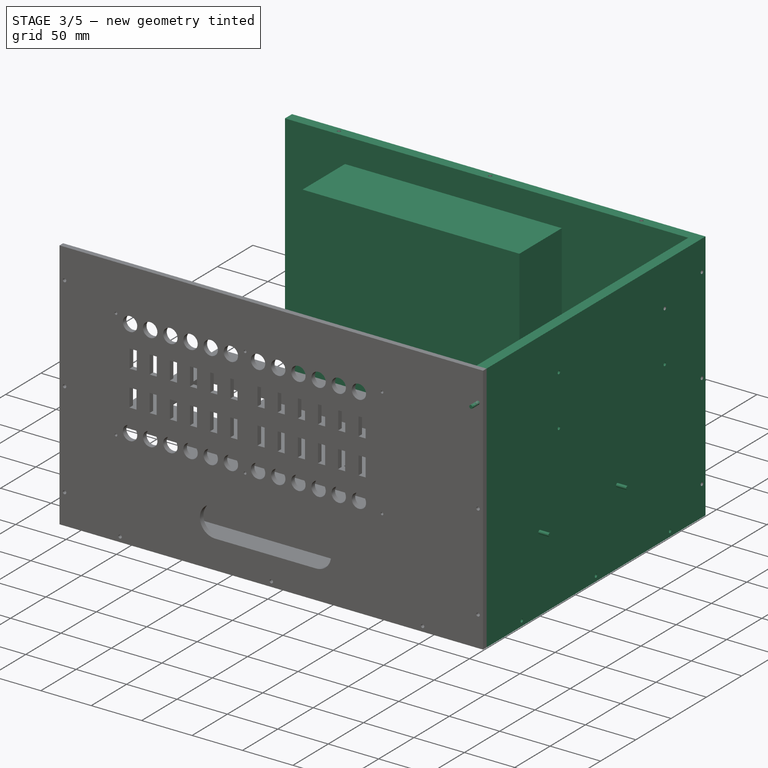
[diagram: stage 3 of 5 — iso view after this stage's code; geometry added in this stage tinted green]
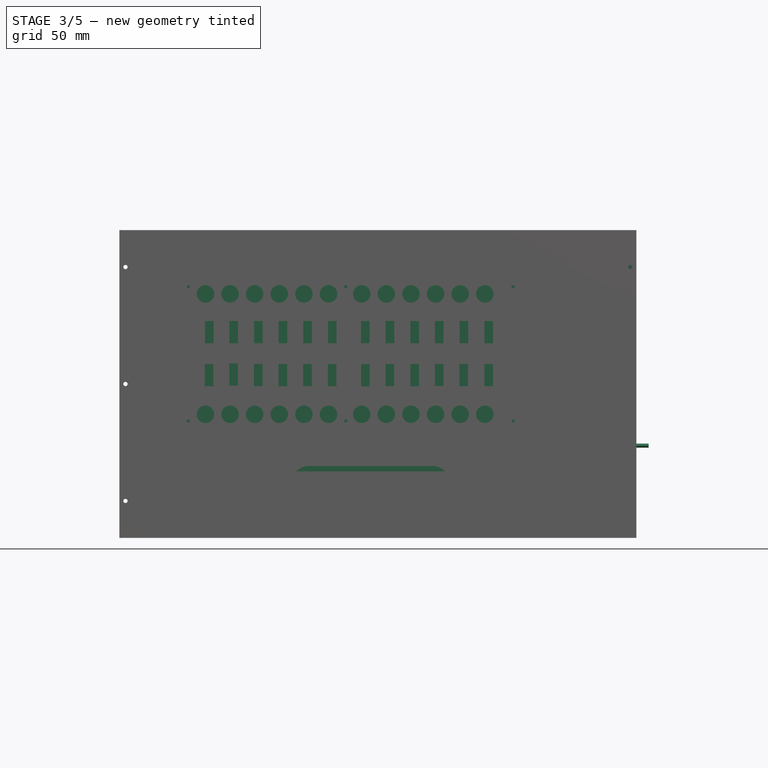
[diagram: stage 3 of 5 — front view after this stage's code; geometry added in this stage tinted green]
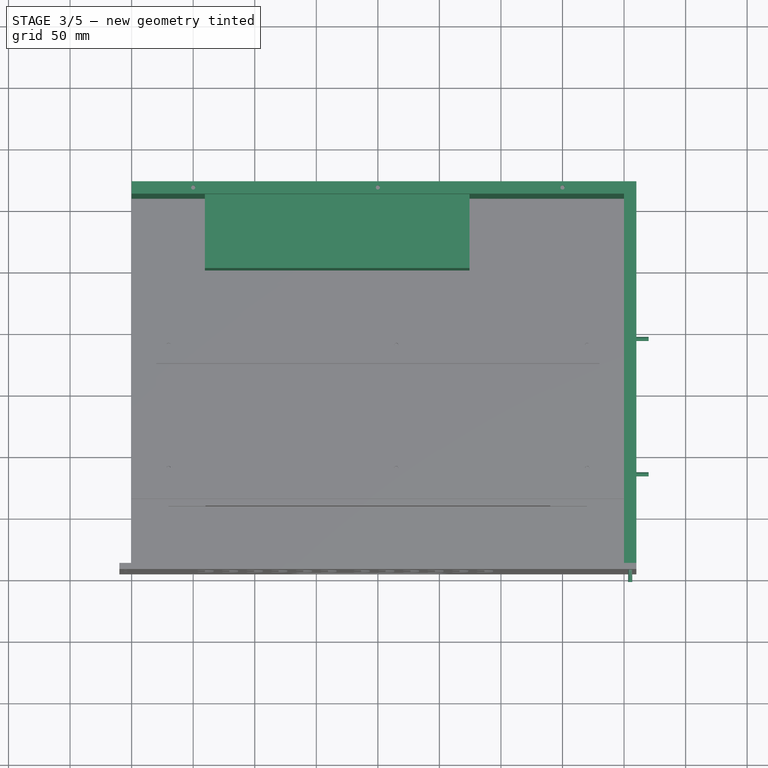
[diagram: stage 3 of 5 — top view after this stage's code; geometry added in this stage tinted green]
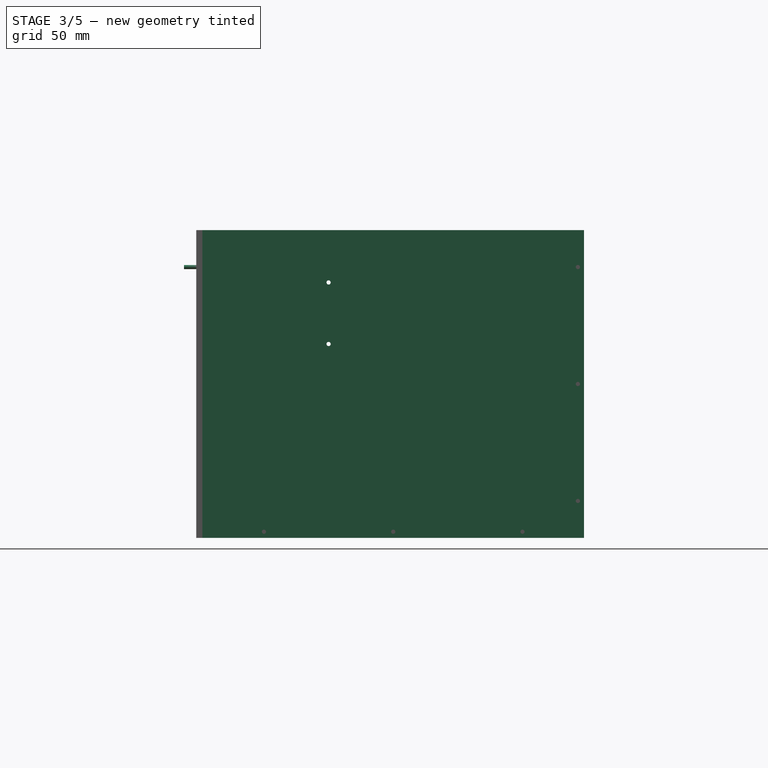
[diagram: stage 3 of 5 — right view after this stage's code; geometry added in this stage tinted green]
FEATURE [Sketcher::SketchObject] Sketch003  label="后面板1"
  Placement = pos=(0,170,0) rot=(1,0,0;1.5708rad)
  sketch-geometry (11):
    g0: LineSegment StartX=-200 StartY=240 StartZ=0 EndX=200 EndY=240 EndZ=0
    g1: LineSegment StartX=200 StartY=240 StartZ=0 EndX=200 EndY=-10 EndZ=0
    g2: LineSegment StartX=200 StartY=-10 StartZ=0 EndX=-200 EndY=-10 EndZ=0
    g3: LineSegment StartX=-200 StartY=-10 StartZ=0 EndX=-200 EndY=240 EndZ=0
    g4: ArcOfCircle CenterX=-50 CenterY=25 CenterZ=0 NormalX=0 NormalY=0 NormalZ=1 Radius=15 StartAngle=1.5708 EndAngle=4.71239
    g5: ArcOfCircle CenterX=50 CenterY=25 CenterZ=0 NormalX=0 NormalY=0 NormalZ=1 Radius=15 StartAngle=4.71239 EndAngle=7.85398
    g6: LineSegment StartX=-50 StartY=10 StartZ=0 EndX=50 EndY=10 EndZ=0
    g7: LineSegment StartX=-50 StartY=40 StartZ=0 EndX=50 EndY=40 EndZ=0
    g8: Circle CenterX=0 CenterY=-5 CenterZ=0 NormalX=0 NormalY=0 NormalZ=1 Radius=1.7
    g9: Circle CenterX=-150 CenterY=-5 CenterZ=0 NormalX=0 NormalY=0 NormalZ=1 Radius=1.7
    g10: Circle CenterX=150 CenterY=-5 CenterZ=0 NormalX=0 NormalY=0 NormalZ=1 Radius=1.7
  constraints (28):
    c: Coincident(g0,g1)
    c: Coincident(g1,g2)
    c: Coincident(g2,g3)
    c: Coincident(g3,g0)
    c: Horizontal(g0)
    c: Horizontal(g2)
    c: Vertical(g1)
    c: Vertical(g3)
    c: DistanceX(g0,g0) = 400
    c: Symmetric(g0,g0,g-2)
    c: DistanceY(g1,g1) = 250
    c: DistanceY(g1,g-1) = 10
    c: Tangent(g4,g7) = 1.5708
    c: Tangent(g4,g6) = -1.5708
    c: Tangent(g6,g5) = -1.5708
    c: Tangent(g7,g5) = 1.5708
    c: Horizontal(g6)
    c: Equal(g4,g5)
    c: Equal(g7,g6)
    c: DistanceY(g-1,g5) = 10
    c: DistanceY(g5,g5) = 30
    c: DistanceX(g4,g5) = 100
    c: Symmetric(g5,g4,g-2)
    c: Radius(g8) = 1.7
    c: Equal(g8,g9)
    c: Equal(g9,g10)
    c: DistanceX(g8,g10) = 150
    c: DistanceX(g9,g8) = 150
FEATURE [PartDesign::Pad] Pad003  label="后面板"
  Length = 10
  Length2 = 100
  Placement = pos=(0,170,0) rot=(1,0,0;1.5708rad)
  Sketch = -> Sketch003
  Type = 0
FEATURE [Sketcher::SketchObject] Sketch004  label="12V电源001"
  Placement = pos=(-33,160,50) rot=(1,0,0;1.5708rad)
  sketch-geometry (4):
    g0: LineSegment StartX=-107.5 StartY=165 StartZ=0 EndX=107.5 EndY=165 EndZ=0
    g1: LineSegment StartX=107.5 StartY=165 StartZ=0 EndX=107.5 EndY=50 EndZ=0
    g2: LineSegment StartX=107.5 StartY=50 StartZ=0 EndX=-107.5 EndY=50 EndZ=0
    g3: LineSegment StartX=-107.5 StartY=50 StartZ=0 EndX=-107.5 EndY=165 EndZ=0
  constraints (12):
    c: Coincident(g0,g1)
    c: Coincident(g1,g2)
    c: Coincident(g2,g3)
    c: Coincident(g3,g0)
    c: Horizontal(g0)
    c: Horizontal(g2)
    c: Vertical(g1)
    c: Vertical(g3)
    c: DistanceX(g0,g0) = 215
    c: DistanceY(g1,g1) = 115
    c: Symmetric(g0,g0,g-2)
    c: DistanceY(g1) = 50
FEATURE [PartDesign::Pad] Pad004  label="12V电源（画出来的）"
  Length = 60
  Length2 = 100
  Placement = pos=(-33,160,50) rot=(1,0,0;1.5708rad)
  Sketch = -> Sketch004
  Type = 0
FEATURE [Sketcher::SketchObject] Sketch005  label="右侧板图"
  Placement = pos=(200,0,0) rot=(0.57735,0.57735,0.57735;2.0944rad)
  sketch-geometry (14):
    g0: LineSegment StartX=-140 StartY=240 StartZ=0 EndX=170 EndY=240 EndZ=0
    g1: LineSegment StartX=170 StartY=-10 StartZ=0 EndX=-140 EndY=-10 EndZ=0
    g2: LineSegment StartX=-140 StartY=-10 StartZ=0 EndX=-140 EndY=240 EndZ=0
    g3: LineSegment StartX=170 StartY=240 StartZ=0 EndX=170 EndY=-10 EndZ=0
    g4: Circle CenterX=165 CenterY=210 CenterZ=0 NormalX=0 NormalY=0 NormalZ=1 Radius=1.7
    g5: Circle CenterX=165 CenterY=115 CenterZ=0 NormalX=0 NormalY=0 NormalZ=1 Radius=1.7
    g6: Circle CenterX=165 CenterY=20 CenterZ=0 NormalX=0 NormalY=0 NormalZ=1 Radius=1.7
    g7: Circle CenterX=120 CenterY=-5 CenterZ=0 NormalX=0 NormalY=0 NormalZ=1 Radius=1.7
    g8: Circle CenterX=15 CenterY=-5 CenterZ=0 NormalX=0 NormalY=0 NormalZ=1 Radius=1.7
    g9: Circle CenterX=-90 CenterY=-5 CenterZ=0 NormalX=0 NormalY=0 NormalZ=1 Radius=1.7
    g10: Circle CenterX=-37.5 CenterY=197.5 CenterZ=0 NormalX=0 NormalY=0 NormalZ=1 Radius=1.7
    g11: Circle CenterX=-37.5 CenterY=147.5 CenterZ=0 NormalX=0 NormalY=0 NormalZ=1 Radius=1.7
    g12: Circle CenterX=112.5 CenterY=147.5 CenterZ=0 NormalX=0 NormalY=0 NormalZ=1 Radius=1.7
    g13: Circle CenterX=112.5 CenterY=197.5 CenterZ=0 NormalX=0 NormalY=0 NormalZ=1 Radius=1.7
  constraints (41):
    c: Coincident(g1,g2)
    c: Coincident(g2,g0)
    c: Horizontal(g0)
    c: Horizontal(g1)
    c: DistanceX(g0,g0) = 310
    c: Perpendicular(g2,g1)
    c: DistanceX(g0) = 170
    c: Coincident(g3,g0)
    c: Coincident(g3,g1)
    c: Perpendicular(g3,g1,g1) = 4.71239
    c: Radius(g4) = 1.7
    c: Radius(g9) = 1.7
    c: DistanceY(g-1,g9) = -5
    c: Radius(g8) = 1.7
    c: Radius(g5) = 1.7
    c: Radius(g6) = 1.7
    c: Radius(g7) = 1.7
    c: DistanceY(g-1,g8) = -5
    c: DistanceY(g-1,g7) = -5
    c: Distance(g6,g3) = 5
    c: Distance(g5,g3) = 5
    c: Distance(g4,g3) = 5
    c: Radius(g10) = 1.7
    c: Distance(g10,g0) = 42.5
    c: Equal(g10,g11)
    c: Equal(g11,g12)
    c: Equal(g12,g13)
    c: Distance(g11,g0) = 92.5
    c: Distance(g11,g2) = 102.5
    c: Distance(g13,g3) = 57.5
    c: Distance(g13,g0) = 42.5
    c: Distance(g12,g3) = 57.5
    c: Distance(g12,g0) = 92.5
    c: Distance(g4,g0) = 30
    c: Distance(g6,g1) = 30
    c: Distance(g0,g1) = 250
    c: DistanceY(g1,g-1) = 10
    c: Distance(g5,g1) = 125
    c: Distance(g7,g3) = 50
    c: Distance(g9,g2) = 50
    c: Distance(g8,g2) = 155
FEATURE [PartDesign::Pad] Pad005  label="右面板"
  Length = 10
  Length2 = 100
  Placement = pos=(200,0,0) rot=(0.57735,0.57735,0.57735;2.0944rad)
  Sketch = -> Sketch005
  Type = 0
FEATURE [Part::Box] Box  label="5V电源"
  Height = 115
  Length = 50
  Placement = pos=(150,-70,115) rot=(0,0,1;0rad)
  Width = 215
FEATURE [Part::Cylinder] Cylinder002  label="5V-M4-左下"
  Angle = 360
  Height = 61
  Placement = pos=(150,-37.5,147.5) rot=(0,1,0;1.5708rad)
  Radius = 1.7
FEATURE [Part::Cylinder] Cylinder004  label="5V-M4-左上"
  Angle = 360
  Height = 61
  Placement = pos=(150,-37.5,197.5) rot=(0,1,0;1.5708rad)
  Radius = 1.7
FEATURE [Part::Cylinder] Cylinder005  label="5V-M4-右下"
  Angle = 360
  Height = 61
  Placement = pos=(150,112.5,147.5) rot=(0,1,0;1.5708rad)
  Radius = 1.7
FEATURE [Part::Cylinder] Cylinder006  label="5V-M4-右上"
  Angle = 360
  Height = 61
  Placement = pos=(150,112.5,197.5) rot=(0,1,0;1.5708rad)
  Radius = 1.7
FEATURE [Part::MultiFuse] Fusion002  label="5V电源加螺丝"
  Shapes = -> [Cylinder006,Cylinder005,Cylinder004,Cylinder002,Box]
FEATURE [Part::Cut] Cut002  label="右侧开孔"
  Base = -> Pad005
  Tool = -> Fusion002
FEATURE [Part::Cylinder] Cylinder012  label="右侧前003"
  Angle = 360
  Height = 20
  Placement = pos=(205,-135,210) rot=(1,0,0;1.5708rad)
  Radius = 1.7
FEATURE [App::DocumentObjectGroup] ___  label="左边"
  Group = -> [Pad011,Cut012]
FEATURE [Part::Cylinder] Cylinder034  label="串口板右前002"
  Angle = 360
  Height = 20
  Placement = pos=(200,-65,65) rot=(0,1,0;1.5708rad)
  Radius = 1.7
FEATURE [Part::Cylinder] Cylinder035  label="串口板右后002"
  Angle = 360
  Height = 20
  Placement = pos=(200,45,65) rot=(0,1,0;1.5708rad)
  Radius = 1.7
FEATURE [Part::MultiFuse] Fusion010
  Shapes = -> [Cylinder034,Cylinder035]
FEATURE [App::DocumentObjectGroup] Group  label="右边"
  Group = -> [Cut013]
FEATURE [Part::Box] Box001  label="5V电源001"
  Height = 115
  Length = 50
  Placement = pos=(150,-70,115) rot=(0,0,1;0rad)
  Width = 215
FEATURE [Part::Cylinder] Cylinder036  label="5V-M4-左下001"
  Angle = 360
  Height = 61
  Placement = pos=(150,-37.5,147.5) rot=(0,1,0;1.5708rad)
  Radius = 1.7
FEATURE [Part::Cylinder] Cylinder037  label="5V-M4-左上001"
  Angle = 360
  Height = 61
  Placement = pos=(150,-37.5,197.5) rot=(0,1,0;1.5708rad)
  Radius = 1.7
FEATURE [Part::Cylinder] Cylinder038  label="5V-M4-右下001"
  Angle = 360
  Height = 61
  Placement = pos=(150,112.5,147.5) rot=(0,1,0;1.5708rad)
  Radius = 1.7
FEATURE [Part::MultiFuse] Fusion011  label="5V电源加螺丝to12V电源"
  Placement = pos=(4.5,-41,-15) rot=(0,0,1;1.5708rad)
  Shapes = -> [Cylinder039,Cylinder038,Cylinder037,Cylinder036,Box001]
FEATURE [Part::Cut] Cut014
  Base = -> Pad003
  Tool = -> Fusion011
FEATURE [Part::Cut] Cut015  label="开孔后面板"
  Base = -> Cut014
  Tool = -> Fusion013
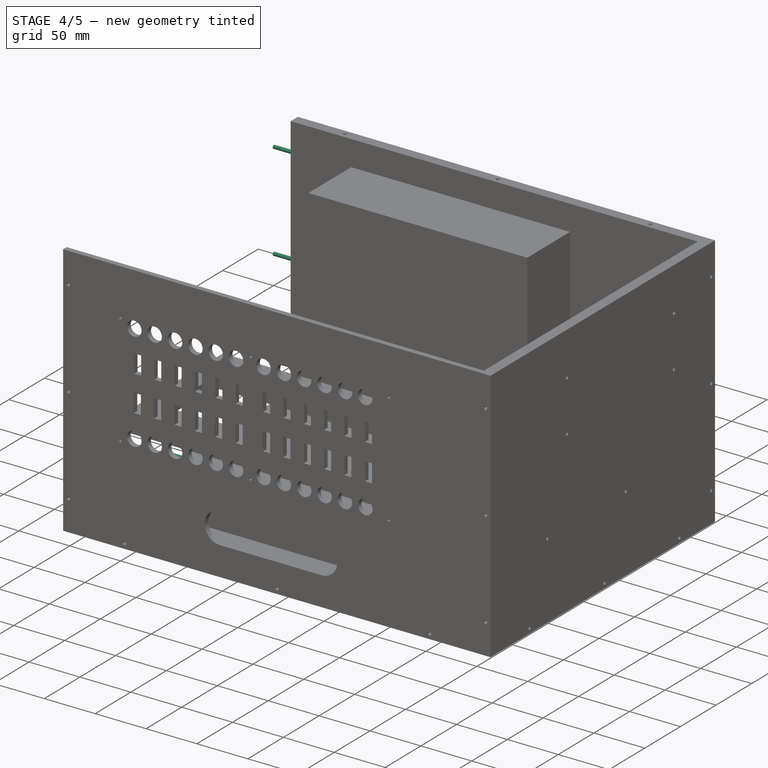
[diagram: stage 4 of 5 — iso view after this stage's code; geometry added in this stage tinted green]
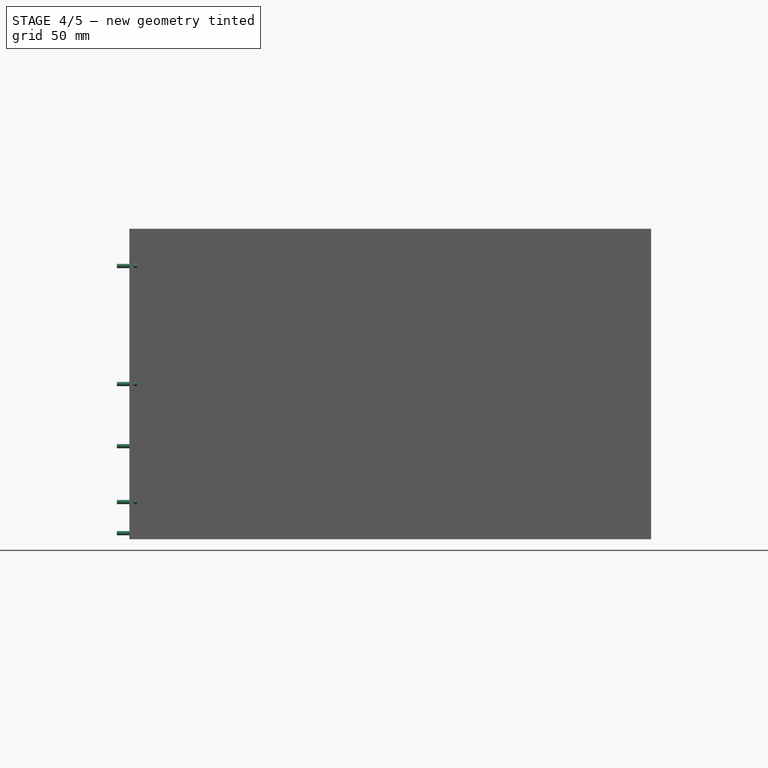
[diagram: stage 4 of 5 — front view after this stage's code; geometry added in this stage tinted green]
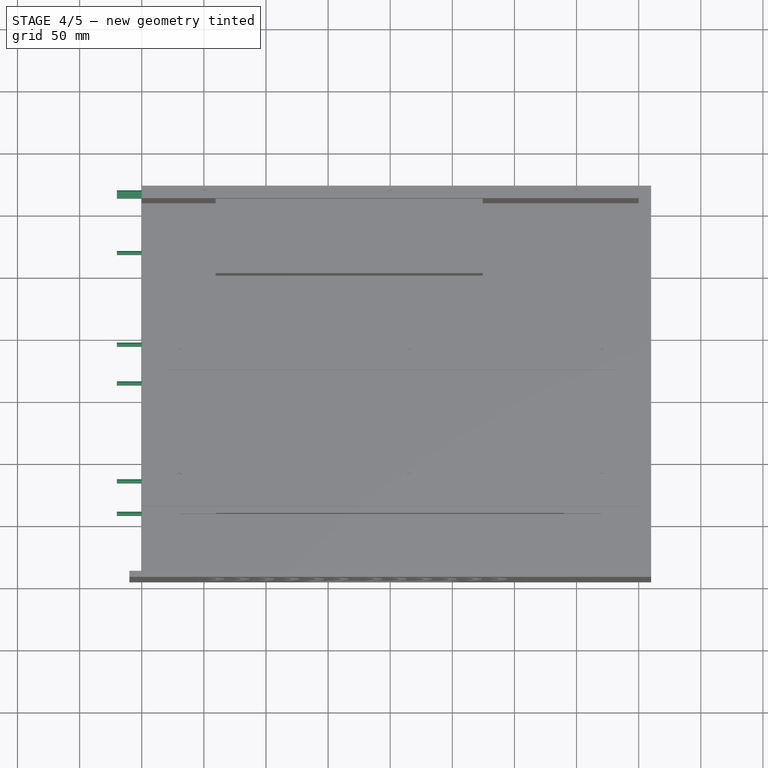
[diagram: stage 4 of 5 — top view after this stage's code; geometry added in this stage tinted green]
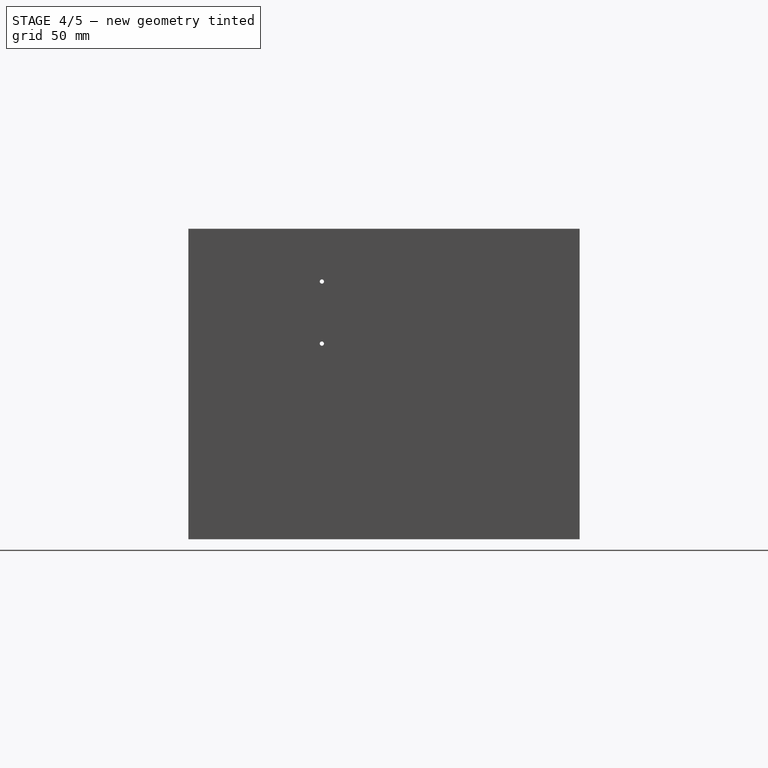
[diagram: stage 4 of 5 — right view after this stage's code; geometry added in this stage tinted green]
FEATURE [Part::Cylinder] Cylinder007  label="右侧-上001"
  Angle = 360
  Height = 20
  Placement = pos=(205,-90,235) rot=(0,0,1;0rad)
  Radius = 1.7
FEATURE [Part::Cylinder] Cylinder008  label="右侧-上002"
  Angle = 360
  Height = 20
  Placement = pos=(205,15,235) rot=(0,0,1;0rad)
  Radius = 1.7
FEATURE [Part::Cylinder] Cylinder009  label="右侧-上003"
  Angle = 360
  Height = 20
  Placement = pos=(205,120,235) rot=(0,0,1;0rad)
  Radius = 1.7
FEATURE [Part::Cylinder] Cylinder010  label="右侧前001"
  Angle = 360
  Height = 20
  Placement = pos=(205,-135,20) rot=(1,0,0;1.5708rad)
  Radius = 1.7
FEATURE [Part::Cylinder] Cylinder011  label="右侧前002"
  Angle = 360
  Height = 20
  Placement = pos=(205,-135,115) rot=(1,0,0;1.5708rad)
  Radius = 1.7
FEATURE [Part::Cut] Cut005
  Base = -> Cut002
  Tool = -> Cylinder007
FEATURE [Part::Cut] Cut006
  Base = -> Cut002
  Tool = -> Cylinder008
FEATURE [Part::Cut] Cut007
  Base = -> Cut002
  Tool = -> Cylinder009
FEATURE [Part::Cut] Cut008
  Base = -> Cut002
  Tool = -> Cylinder010
FEATURE [Part::Cut] Cut009
  Base = -> Cut002
  Tool = -> Cylinder011
FEATURE [Part::Cut] Cut010  label="ok"
  Base = -> Cut002
  Tool = -> Cylinder012
FEATURE [Part::MultiFuse] Fusion003  label="右侧开孔001"
  Shapes = -> [Cut005,Cut007,Cut006,Cut008,Cut009,Cut010]
FEATURE [Part::Cylinder] Cylinder019  label="串口板左前001"
  Angle = 360
  Height = 20
  Placement = pos=(-220,-65,65) rot=(0,1,0;1.5708rad)
  Radius = 1.7
FEATURE [Part::Cylinder] Cylinder020  label="串口板左后001"
  Angle = 360
  Height = 20
  Placement = pos=(-220,45,65) rot=(0,1,0;1.5708rad)
  Radius = 1.7
FEATURE [App::DocumentObjectGroup] ___001  label="备份"
  Group = -> [Pad015]
FEATURE [Part::Cylinder] Cylinder022  label="下1"
  Angle = 360
  Height = 20
  Placement = pos=(-220,-90,-5) rot=(0,1,0;1.5708rad)
  Radius = 1.7
FEATURE [Part::Cylinder] Cylinder023  label="下002"
  Angle = 360
  Height = 20
  Placement = pos=(-220,15,-5) rot=(0,1,0;1.5708rad)
  Radius = 1.7
FEATURE [Part::Cylinder] Cylinder024  label="下003"
  Angle = 360
  Height = 20
  Placement = pos=(-220,120,-5) rot=(0,1,0;1.5708rad)
  Radius = 1.7
FEATURE [Part::Cylinder] Cylinder025  label="后1"
  Angle = 360
  Height = 20
  Placement = pos=(-220,165,20) rot=(0,1,0;1.5708rad)
  Radius = 1.7
FEATURE [Part::Cylinder] Cylinder026  label="后2"
  Angle = 360
  Height = 20
  Placement = pos=(-220,165,115) rot=(0,1,0;1.5708rad)
  Radius = 1.7
FEATURE [Part::Cylinder] Cylinder027  label="后3"
  Angle = 360
  Height = 20
  Placement = pos=(-220,165,210) rot=(0,1,0;1.5708rad)
  Radius = 1.7
FEATURE [Part::MultiFuse] Fusion008
  Shapes = -> [Cylinder019,Cylinder020]
FEATURE [Part::Cut] Cut013  label="右侧"
  Base = -> Fusion003
  Tool = -> Fusion010
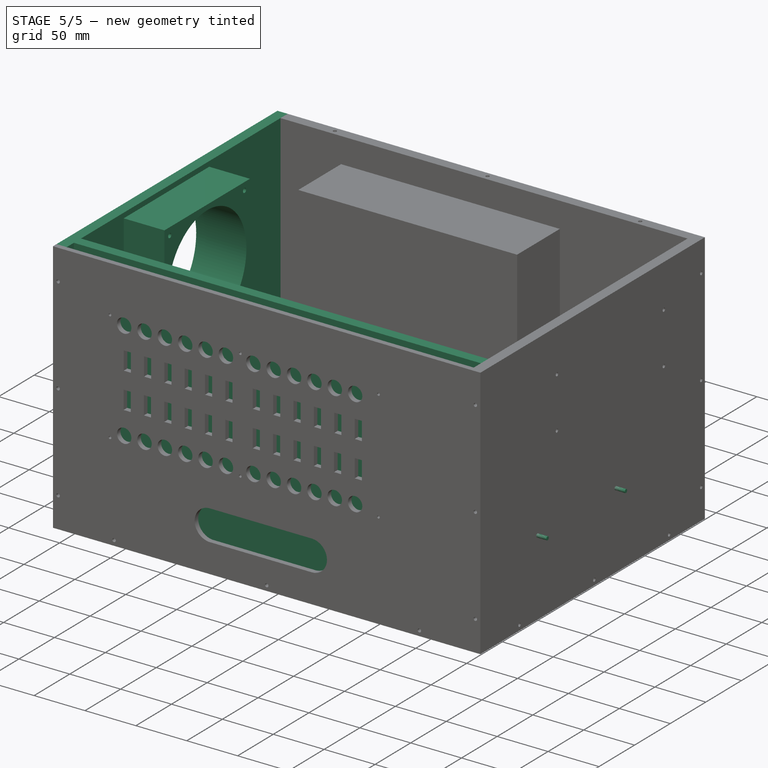
[diagram: stage 5 of 5 — iso view after this stage's code; geometry added in this stage tinted green]
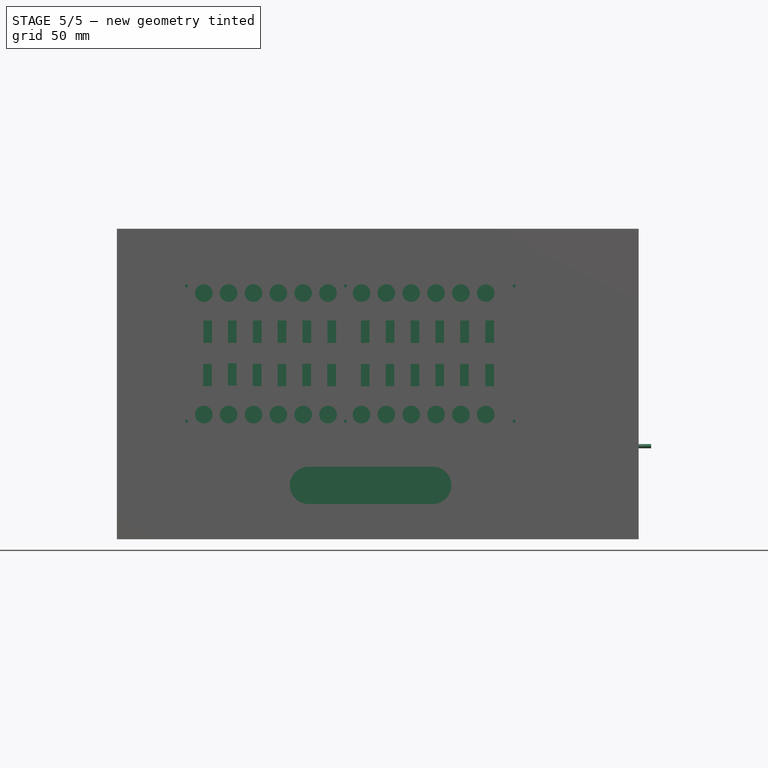
[diagram: stage 5 of 5 — front view after this stage's code; geometry added in this stage tinted green]
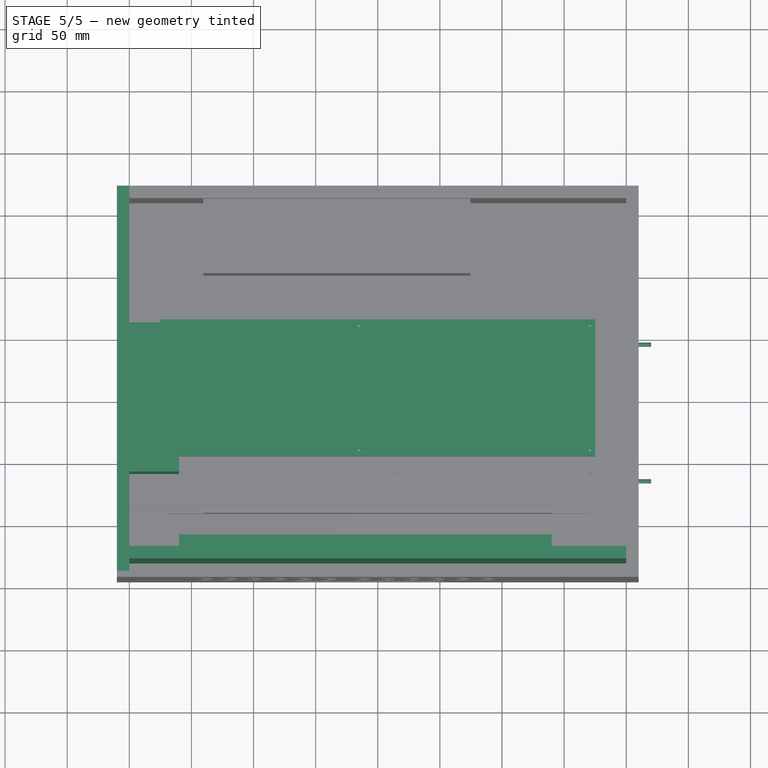
[diagram: stage 5 of 5 — top view after this stage's code; geometry added in this stage tinted green]
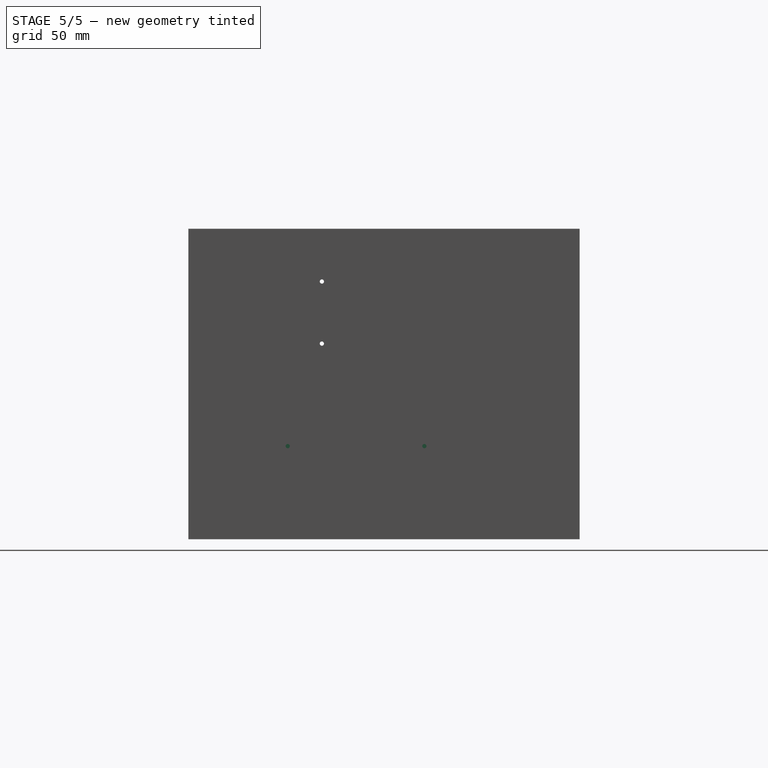
[diagram: stage 5 of 5 — right view after this stage's code; geometry added in this stage tinted green]
FEATURE [Sketcher::SketchObject] Sketch006  label="左侧面板"
  Placement = pos=(-210,0,0) rot=(0.57735,0.57735,0.57735;2.0944rad)
  sketch-geometry (4):
    g0: LineSegment StartX=-140 StartY=240 StartZ=0 EndX=170 EndY=240 EndZ=0
    g1: LineSegment StartX=170 StartY=240 StartZ=0 EndX=170 EndY=-10 EndZ=0
    g2: LineSegment StartX=170 StartY=-10 StartZ=0 EndX=-140 EndY=-10 EndZ=0
    g3: LineSegment StartX=-140 StartY=-10 StartZ=0 EndX=-140 EndY=240 EndZ=0
  constraints (12):
    c: Coincident(g0,g1)
    c: Coincident(g1,g2)
    c: Coincident(g2,g3)
    c: Coincident(g3,g0)
    c: Horizontal(g0)
    c: Horizontal(g2)
    c: Vertical(g1)
    c: Vertical(g3)
    c: DistanceY(g-1,g1) = -10
    c: DistanceX(g-1,g0) = 170
    c: DistanceX(g0,g-1) = 140
    c: DistanceY(g1,g1) = 250
FEATURE [PartDesign::Pad] Pad006  label="左侧"
  Length = 10
  Length2 = 100
  Placement = pos=(-210,0,0) rot=(0.57735,0.57735,0.57735;2.0944rad)
  Sketch = -> Sketch006
  Type = 0
FEATURE [Sketcher::SketchObject] Sketch007
  Placement = pos=(0,-120,0) rot=(1,0,0;1.5708rad)
  sketch-geometry (4):
    g0: LineSegment StartX=-200 StartY=240 StartZ=0 EndX=200 EndY=240 EndZ=0
    g1: LineSegment StartX=200 StartY=240 StartZ=0 EndX=200 EndY=-10 EndZ=0
    g2: LineSegment StartX=200 StartY=-10 StartZ=0 EndX=-200 EndY=-10 EndZ=0
    g3: LineSegment StartX=-200 StartY=-10 StartZ=0 EndX=-200 EndY=240 EndZ=0
  constraints (12):
    c: Coincident(g0,g1)
    c: Coincident(g1,g2)
    c: Coincident(g2,g3)
    c: Coincident(g3,g0)
    c: Horizontal(g0)
    c: Horizontal(g2)
    c: Vertical(g1)
    c: Vertical(g3)
    c: DistanceX(g0,g0) = 400
    c: Symmetric(g0,g0,g-2)
    c: DistanceY(g1,g1) = 250
    c: DistanceY(g-1,g1) = -10
FEATURE [PartDesign::Pad] Pad007  label="纯前面板"
  Length = 10
  Length2 = 100
  Placement = pos=(0,-120,0) rot=(1,0,0;1.5708rad)
  Sketch = -> Sketch007
  Type = 0
FEATURE [Sketcher::SketchObject] Sketch011
  Placement = pos=(-200,0,175) rot=(0.57735,0.57735,0.57735;2.0944rad)
  sketch-geometry (9):
    g0: LineSegment StartX=-60 StartY=60 StartZ=0 EndX=60 EndY=60 EndZ=0
    g1: LineSegment StartX=60 StartY=60 StartZ=0 EndX=60 EndY=-60 EndZ=0
    g2: LineSegment StartX=60 StartY=-60 StartZ=0 EndX=-60 EndY=-60 EndZ=0
    g3: LineSegment StartX=-60 StartY=-60 StartZ=0 EndX=-60 EndY=60 EndZ=0
    g4: Circle CenterX=-52.5 CenterY=52.5 CenterZ=0 NormalX=0 NormalY=0 NormalZ=1 Radius=2.2
    g5: Circle CenterX=52.5 CenterY=52.5 CenterZ=0 NormalX=0 NormalY=0 NormalZ=1 Radius=2.2
    g6: Circle CenterX=-52.5 CenterY=-52.5 CenterZ=0 NormalX=0 NormalY=0 NormalZ=1 Radius=2.2
    g7: Circle CenterX=52.5 CenterY=-52.5 CenterZ=0 NormalX=0 NormalY=0 NormalZ=1 Radius=2.2
    g8: Circle CenterX=0 CenterY=0 CenterZ=0 NormalX=0 NormalY=0 NormalZ=1 Radius=55
  constraints (22):
    c: Coincident(g0,g1)
    c: Coincident(g1,g2)
    c: Coincident(g2,g3)
    c: Coincident(g3,g0)
    c: Horizontal(g2)
    c: Vertical(g1)
    c: Vertical(g3)
    c: Symmetric(g0,g0,g-2)
    c: Symmetric(g0,g1,g-1)
    c: DistanceY(g1,g1) = 120
    c: DistanceX(g0,g0) = 120
    c: Symmetric(g6,g7,g-2)
    c: Symmetric(g4,g5,g-2)
    c: Symmetric(g4,g6,g-1)
    c: DistanceX(g6,g7) = 105
    c: DistanceY(g6,g4) = 105
    c: Radius(g6) = 2.2
    c: Radius(g7) = 2.2
    c: Radius(g4) = 2.2
    c: Radius(g5) = 2.2
    c: Coincident(g8,g-1)
    c: Radius(g8) = 55
FEATURE [PartDesign::Pad] Pad011  label="风扇"
  Length = 40
  Length2 = 100
  Placement = pos=(-200,0,175) rot=(0.57735,0.57735,0.57735;2.0944rad)
  Sketch = -> Sketch011
  Type = 0
FEATURE [Sketcher::SketchObject] Sketch012
  Placement = pos=(-213,130,40) rot=(0.57735,0.57735,0.57735;2.0944rad)
  sketch-geometry (6):
    g0: Circle CenterX=0 CenterY=25.3 CenterZ=0 NormalX=0 NormalY=0 NormalZ=1 Radius=2.2
    g1: Circle CenterX=0 CenterY=-25.3 CenterZ=0 NormalX=0 NormalY=0 NormalZ=1 Radius=2.2
    g2: LineSegment StartX=-13.9 StartY=21.25 StartZ=0 EndX=13.9 EndY=21.25 EndZ=0
    g3: LineSegment StartX=13.9 StartY=21.25 StartZ=0 EndX=13.9 EndY=-21.25 EndZ=0
    g4: LineSegment StartX=13.9 StartY=-21.25 StartZ=0 EndX=-13.9 EndY=-21.25 EndZ=0
    g5: LineSegment StartX=-13.9 StartY=-21.25 StartZ=0 EndX=-13.9 EndY=21.25 EndZ=0
  constraints (16):
    c: Symmetric(g0,g1,g-1)
    c: Radius(g0) = 2.2
    c: Equal(g0,g1)
    c: Coincident(g2,g3)
    c: Coincident(g3,g4)
    c: Coincident(g4,g5)
    c: Coincident(g5,g2)
    c: Horizontal(g2)
    c: Horizontal(g4)
    c: Vertical(g3)
    c: Vertical(g5)
    c: Symmetric(g2,g3,g-1)
    c: DistanceY(g3,g3) = 42.5
    c: DistanceY(g1,g0) = 50.6
    c: DistanceX(g2,g2) = 27.8
    c: Symmetric(g2,g2,g-2)
FEATURE [PartDesign::Pad] Pad012  label="品形插座"
  Length = 30
  Length2 = 100
  Placement = pos=(-213,130,40) rot=(0.57735,0.57735,0.57735;2.0944rad)
  Sketch = -> Sketch012
  Type = 0
FEATURE [Sketcher::SketchObject] Sketch014
  Placement = pos=(0,10,70) rot=(0,0,1;0rad)
  sketch-geometry (10):
    g0: LineSegment StartX=-175 StartY=55 StartZ=0 EndX=175 EndY=55 EndZ=0
    g1: LineSegment StartX=175 StartY=55 StartZ=0 EndX=175 EndY=-55 EndZ=0
    g2: LineSegment StartX=175 StartY=-55 StartZ=0 EndX=-175 EndY=-55 EndZ=0
    g3: LineSegment StartX=-175 StartY=-55 StartZ=0 EndX=-175 EndY=55 EndZ=0
    g4: Circle CenterX=170.934 CenterY=50 CenterZ=0 NormalX=0 NormalY=0 NormalZ=1 Radius=1.3
    g5: Circle CenterX=170.934 CenterY=-50 CenterZ=0 NormalX=0 NormalY=0 NormalZ=1 Radius=1.3
    g6: Circle CenterX=-15.0664 CenterY=50 CenterZ=0 NormalX=0 NormalY=0 NormalZ=1 Radius=1.3
    g7: Circle CenterX=-15.0664 CenterY=-50 CenterZ=0 NormalX=0 NormalY=0 NormalZ=1 Radius=1.3
    g8: Circle CenterX=-171.066 CenterY=-50 CenterZ=0 NormalX=0 NormalY=0 NormalZ=1 Radius=1.3
    g9: Circle CenterX=-171.066 CenterY=50 CenterZ=0 NormalX=0 NormalY=0 NormalZ=1 Radius=1.3
  constraints (26):
    c: Coincident(g0,g1)
    c: Coincident(g1,g2)
    c: Coincident(g2,g3)
    c: Coincident(g3,g0)
    c: Horizontal(g0)
    c: Horizontal(g2)
    c: Vertical(g1)
    c: Vertical(g3)
    c: DistanceX(g0,g0) = 350
    c: DistanceY(g1,g1) = 110
    c: Symmetric(g0,g0,g-2)
    c: Radius(g4) = 1.3
    c: Radius(g5) = 1.3
    c: DistanceY(g5,g4) = 100
    c: Symmetric(g0,g1,g-1)
    c: Symmetric(g4,g5,g-1)
    c: Symmetric(g6,g7,g-1)
    c: Symmetric(g9,g8,g-1)
    c: DistanceY(g8,g9) = 100
    c: DistanceY(g7,g6) = 100
    c: Radius(g9) = 1.3
    c: Radius(g8) = 1.3
    c: Radius(g7) = 1.3
    c: Radius(g6) = 1.3
    c: DistanceX(g8,g7) = 156
    c: DistanceX(g7,g5) = 186
FEATURE [PartDesign::Pad] Pad014  label="串口板模型"
  Length = 20
  Length2 = 100
  Placement = pos=(0,10,70) rot=(0,0,1;0rad)
  Sketch = -> Sketch014
  Type = 0
FEATURE [Sketcher::SketchObject] Sketch015
  Placement = pos=(-160,-110,200) rot=(0.57735,0.57735,-0.57735;2.0944rad)
  sketch-geometry (134):
    g0: LineSegment StartX=0 StartY=300 StartZ=0 EndX=121 EndY=300 EndZ=0
    g1: LineSegment StartX=121 StartY=300 StartZ=0 EndX=121 EndY=0 EndZ=0
    g2: LineSegment StartX=121 StartY=0 StartZ=0 EndX=0 EndY=0 EndZ=0
    g3: LineSegment StartX=0 StartY=0 StartZ=0 EndX=0 EndY=300 EndZ=0
    g4: Circle CenterX=11.81 CenterY=19.93 CenterZ=0 NormalX=0 NormalY=0 NormalZ=1 Radius=7.1
    g5: Circle CenterX=11.81 CenterY=39.93 CenterZ=0 NormalX=0 NormalY=0 NormalZ=1 Radius=7.1
    g6: Circle CenterX=11.81 CenterY=59.93 CenterZ=0 NormalX=0 NormalY=0 NormalZ=1 Radius=7.1
    g7: Circle CenterX=11.81 CenterY=79.93 CenterZ=0 NormalX=0 NormalY=0 NormalZ=1 Radius=7.1
    g8: Circle CenterX=11.81 CenterY=99.93 CenterZ=0 NormalX=0 NormalY=0 NormalZ=1 Radius=7.1
    g9: Circle CenterX=11.81 CenterY=119.93 CenterZ=0 NormalX=0 NormalY=0 NormalZ=1 Radius=7.1
    g10: Circle CenterX=11.81 CenterY=146.89 CenterZ=0 NormalX=0 NormalY=0 NormalZ=1 Radius=7.1
    g11: Circle CenterX=11.81 CenterY=166.89 CenterZ=0 NormalX=0 NormalY=0 NormalZ=1 Radius=7.1
    g12: Circle CenterX=11.81 CenterY=186.89 CenterZ=0 NormalX=0 NormalY=0 NormalZ=1 Radius=7.1
    g13: Circle CenterX=11.81 CenterY=246.89 CenterZ=0 NormalX=0 NormalY=0 NormalZ=1 Radius=7.1
    g14: Circle CenterX=109.58 CenterY=246.89 CenterZ=0 NormalX=0 NormalY=0 NormalZ=1 Radius=7.1
    g15: Circle CenterX=11.81 CenterY=226.89 CenterZ=0 NormalX=0 NormalY=0 NormalZ=1 Radius=7.1
    g16: Circle CenterX=11.81 CenterY=206.89 CenterZ=0 NormalX=0 NormalY=0 NormalZ=1 Radius=7.1
    g17: Circle CenterX=109.58 CenterY=186.89 CenterZ=0 NormalX=0 NormalY=0 NormalZ=1 Radius=7.1
    g18: Circle CenterX=109.58 CenterY=226.89 CenterZ=0 NormalX=0 NormalY=0 NormalZ=1 Radius=7.1
    g19: Circle CenterX=109.58 CenterY=206.89 CenterZ=0 NormalX=0 NormalY=0 NormalZ=1 Radius=7.1
    g20: Circle CenterX=109.58 CenterY=166.89 CenterZ=0 NormalX=0 NormalY=0 NormalZ=1 Radius=7.1
    g21: Circle CenterX=109.63 CenterY=146.89 CenterZ=0 NormalX=0 NormalY=0 NormalZ=1 Radius=7.1
    g22: Circle CenterX=109.63 CenterY=119.95 CenterZ=0 NormalX=0 NormalY=0 NormalZ=1 Radius=7.1
    g23: Circle CenterX=109.63 CenterY=99.95 CenterZ=0 NormalX=0 NormalY=0 NormalZ=1 Radius=7.1
    g24: Circle CenterX=109.63 CenterY=79.95 CenterZ=0 NormalX=0 NormalY=0 NormalZ=1 Radius=7.1
    g25: Circle CenterX=109.63 CenterY=59.95 CenterZ=0 NormalX=0 NormalY=0 NormalZ=1 Radius=7.1
    g26: Circle CenterX=109.63 CenterY=39.95 CenterZ=0 NormalX=0 NormalY=0 NormalZ=1 Radius=7.1
    g27: Circle CenterX=109.63 CenterY=19.95 CenterZ=0 NormalX=0 NormalY=0 NormalZ=1 Radius=7.1
    g28: Circle CenterX=5.9944 CenterY=5.9944 CenterZ=0 NormalX=0 NormalY=0 NormalZ=1 Radius=1.3
    g29: Circle CenterX=5.9944 CenterY=134 CenterZ=0 NormalX=0 NormalY=0 NormalZ=1 Radius=1.3
    g30: Circle CenterX=5.9944 CenterY=269.79 CenterZ=0 NormalX=0 NormalY=0 NormalZ=1 Radius=1.3
    g31: Circle CenterX=115 CenterY=269.79 CenterZ=0 NormalX=0 NormalY=0 NormalZ=1 Radius=1.3
    g32: Circle CenterX=115 CenterY=5.9944 CenterZ=0 NormalX=0 NormalY=0 NormalZ=1 Radius=1.3
    g33: Circle CenterX=115 CenterY=134 CenterZ=0 NormalX=0 NormalY=0 NormalZ=1 Radius=1.3
    g34: LineSegment StartX=33.87 StartY=26.57 StartZ=0 EndX=51.87 EndY=26.57 EndZ=0
    g35: LineSegment StartX=51.87 StartY=26.57 StartZ=0 EndX=51.87 EndY=19.57 EndZ=0
    g36: LineSegment StartX=51.87 StartY=19.57 StartZ=0 EndX=33.87 EndY=19.57 EndZ=0
    g37: LineSegment StartX=33.87 StartY=19.57 StartZ=0 EndX=33.87 EndY=26.57 EndZ=0
    g38: LineSegment StartX=33.87 StartY=66.47 StartZ=0 EndX=51.87 EndY=66.47 EndZ=0
    g39: LineSegment StartX=51.87 StartY=66.47 StartZ=0 EndX=51.87 EndY=59.47 EndZ=0
    g40: LineSegment StartX=51.87 StartY=59.47 StartZ=0 EndX=33.87 EndY=59.47 EndZ=0
    g41: LineSegment StartX=33.87 StartY=59.47 StartZ=0 EndX=33.87 EndY=66.47 EndZ=0
    g42: LineSegment StartX=33.87 StartY=86.38 StartZ=0 EndX=51.87 EndY=86.38 EndZ=0
    g43: LineSegment StartX=51.87 StartY=86.38 StartZ=0 EndX=51.87 EndY=79.38 EndZ=0
    g44: LineSegment StartX=51.87 StartY=79.38 StartZ=0 EndX=33.87 EndY=79.38 EndZ=0
    g45: LineSegment StartX=33.87 StartY=79.38 StartZ=0 EndX=33.87 EndY=86.38 EndZ=0
    g46: LineSegment StartX=33.87 StartY=46.4 StartZ=0 EndX=51.87 EndY=46.4 EndZ=0
    g47: LineSegment StartX=51.87 StartY=46.4 StartZ=0 EndX=51.87 EndY=39.4 EndZ=0
    g48: LineSegment StartX=51.87 StartY=39.4 StartZ=0 EndX=33.87 EndY=39.4 EndZ=0
    g49: LineSegment StartX=33.87 StartY=39.4 StartZ=0 EndX=33.87 EndY=46.4 EndZ=0
    g50: LineSegment StartX=33.87 StartY=153.36 StartZ=0 EndX=51.87 EndY=153.36 EndZ=0
    g51: LineSegment StartX=51.87 StartY=153.36 StartZ=0 EndX=51.87 EndY=146.36 EndZ=0
    g52: LineSegment StartX=51.87 StartY=146.36 StartZ=0 EndX=33.87 EndY=146.36 EndZ=0
    g53: LineSegment StartX=33.87 StartY=146.36 StartZ=0 EndX=33.87 EndY=153.36 EndZ=0
    g54: LineSegment StartX=33.87 StartY=126.46 StartZ=0 EndX=51.87 EndY=126.46 EndZ=0
    g55: LineSegment StartX=51.87 StartY=126.46 StartZ=0 EndX=51.87 EndY=119.46 EndZ=0
    g56: LineSegment StartX=51.87 StartY=119.46 StartZ=0 EndX=33.87 EndY=119.46 EndZ=0
    g57: LineSegment StartX=33.87 StartY=119.46 StartZ=0 EndX=33.87 EndY=126.46 EndZ=0
    g58: LineSegment StartX=33.87 StartY=106.43 StartZ=0 EndX=51.87 EndY=106.43 EndZ=0
    g59: LineSegment StartX=51.87 StartY=106.43 StartZ=0 EndX=51.87 EndY=99.43 EndZ=0
    g60: LineSegment StartX=51.87 StartY=99.43 StartZ=0 EndX=33.87 EndY=99.43 EndZ=0
    g61: LineSegment StartX=33.87 StartY=99.43 StartZ=0 EndX=33.87 EndY=106.43 EndZ=0
    g62: LineSegment StartX=33.87 StartY=173.36 StartZ=0 EndX=51.87 EndY=173.36 EndZ=0
    g63: LineSegment StartX=51.87 StartY=173.36 StartZ=0 EndX=51.87 EndY=166.36 EndZ=0
    g64: LineSegment StartX=51.87 StartY=166.36 StartZ=0 EndX=33.87 EndY=166.36 EndZ=0
    g65: LineSegment StartX=33.87 StartY=166.36 StartZ=0 EndX=33.87 EndY=173.36 EndZ=0
    g66: LineSegment StartX=51.87 StartY=213.34 StartZ=0 EndX=33.87 EndY=213.34 EndZ=0
    g67: LineSegment StartX=33.87 StartY=213.34 StartZ=0 EndX=33.87 EndY=206.34 EndZ=0
    g68: LineSegment StartX=33.87 StartY=206.34 StartZ=0 EndX=51.87 EndY=206.34 EndZ=0
    g69: LineSegment StartX=51.87 StartY=206.34 StartZ=0 EndX=51.87 EndY=213.34 EndZ=0
    g70: LineSegment StartX=33.87 StartY=193.39 StartZ=0 EndX=51.87 EndY=193.39 EndZ=0
    g71: LineSegment StartX=51.87 StartY=193.39 StartZ=0 EndX=51.87 EndY=186.39 EndZ=0
    g72: LineSegment StartX=51.87 StartY=186.39 StartZ=0 EndX=33.87 EndY=186.39 EndZ=0
    g73: LineSegment StartX=33.87 StartY=186.39 StartZ=0 EndX=33.87 EndY=193.39 EndZ=0
    g74: LineSegment StartX=33.87 StartY=253.52 StartZ=0 EndX=51.87 EndY=253.52 EndZ=0
    g75: LineSegment StartX=51.87 StartY=253.52 StartZ=0 EndX=51.87 EndY=246.52 EndZ=0
    g76: LineSegment StartX=51.87 StartY=246.52 StartZ=0 EndX=33.87 EndY=246.52 EndZ=0
    g77: LineSegment StartX=33.87 StartY=246.52 StartZ=0 EndX=33.87 EndY=253.52 EndZ=0
    g78: LineSegment StartX=33.8701 StartY=233.4 StartZ=0 EndX=51.8701 EndY=233.4 EndZ=0
    g79: LineSegment StartX=51.8701 StartY=233.4 StartZ=0 EndX=51.8701 EndY=226.4 EndZ=0
    g80: LineSegment StartX=51.8701 StartY=226.4 StartZ=0 EndX=33.8701 EndY=226.4 EndZ=0
    g81: LineSegment StartX=33.8701 StartY=226.4 StartZ=0 EndX=33.8701 EndY=233.4 EndZ=0
    g82: LineSegment StartX=68.82 StartY=26.37 StartZ=0 EndX=86.82 EndY=26.37 EndZ=0
    g83: LineSegment StartX=86.82 StartY=26.37 StartZ=0 EndX=86.82 EndY=19.37 EndZ=0
    g84: LineSegment StartX=86.82 StartY=19.37 StartZ=0 EndX=68.82 EndY=19.37 EndZ=0
    g85: LineSegment StartX=68.82 StartY=19.37 StartZ=0 EndX=68.82 EndY=26.37 EndZ=0
    g86: LineSegment StartX=68.3352 StartY=46.33 StartZ=0 EndX=86.3352 EndY=46.33 EndZ=0
    g87: LineSegment StartX=86.3352 StartY=46.33 StartZ=0 EndX=86.3352 EndY=39.33 EndZ=0
    g88: LineSegment StartX=86.3352 StartY=39.33 StartZ=0 EndX=68.3352 EndY=39.33 EndZ=0
    g89: LineSegment StartX=68.3352 StartY=39.33 StartZ=0 EndX=68.3352 EndY=46.33 EndZ=0
    g90: LineSegment StartX=68.6925 StartY=66.4 StartZ=0 EndX=86.6925 EndY=66.4 EndZ=0
    g91: LineSegment StartX=86.6925 StartY=66.4 StartZ=0 EndX=86.6925 EndY=59.4 EndZ=0
    g92: LineSegment StartX=86.6925 StartY=59.4 StartZ=0 EndX=68.6925 EndY=59.4 EndZ=0
    g93: LineSegment StartX=68.6925 StartY=59.4 StartZ=0 EndX=68.6925 EndY=66.4 EndZ=0
    g94: LineSegment StartX=68.7894 StartY=86.34 StartZ=0 EndX=86.7894 EndY=86.34 EndZ=0
    g95: LineSegment StartX=86.7894 StartY=86.34 StartZ=0 EndX=86.7894 EndY=79.34 EndZ=0
    g96: LineSegment StartX=86.7894 StartY=79.34 StartZ=0 EndX=68.7894 EndY=79.34 EndZ=0
    g97: LineSegment StartX=68.7894 StartY=79.34 StartZ=0 EndX=68.7894 EndY=86.34 EndZ=0
    g98: LineSegment StartX=68.733 StartY=106.27 StartZ=0 EndX=86.733 EndY=106.27 EndZ=0
    g99: LineSegment StartX=86.733 StartY=106.27 StartZ=0 EndX=86.733 EndY=99.27 EndZ=0
    g100: LineSegment StartX=86.733 StartY=99.27 StartZ=0 EndX=68.733 EndY=99.27 EndZ=0
    g101: LineSegment StartX=68.733 StartY=99.27 StartZ=0 EndX=68.733 EndY=106.27 EndZ=0
    g102: LineSegment StartX=68.82 StartY=126.36 StartZ=0 EndX=86.82 EndY=126.36 EndZ=0
    g103: LineSegment StartX=86.82 StartY=126.36 StartZ=0 EndX=86.82 EndY=119.36 EndZ=0
    g104: LineSegment StartX=86.82 StartY=119.36 StartZ=0 EndX=68.82 EndY=119.36 EndZ=0
    g105: LineSegment StartX=68.82 StartY=119.36 StartZ=0 EndX=68.82 EndY=126.36 EndZ=0
    g106: LineSegment StartX=68.8995 StartY=153.372 StartZ=0 EndX=86.8995 EndY=153.372 EndZ=0
    g107: LineSegment StartX=86.8995 StartY=153.372 StartZ=0 EndX=86.8995 EndY=146.372 EndZ=0
    g108: LineSegment StartX=86.8995 StartY=146.372 StartZ=0 EndX=68.8995 EndY=146.372 EndZ=0
    g109: LineSegment StartX=68.8995 StartY=146.372 StartZ=0 EndX=68.8995 EndY=153.372 EndZ=0
    g110: LineSegment StartX=68.7731 StartY=173.267 StartZ=0 EndX=86.7731 EndY=173.267 EndZ=0
    g111: LineSegment StartX=86.7731 StartY=173.267 StartZ=0 EndX=86.7731 EndY=166.267 EndZ=0
    g112: LineSegment StartX=86.7731 StartY=166.267 StartZ=0 EndX=68.7731 EndY=166.267 EndZ=0
    g113: LineSegment StartX=68.7731 StartY=166.267 StartZ=0 EndX=68.7731 EndY=173.267 EndZ=0
    g114: LineSegment StartX=68.781 StartY=193.39 StartZ=0 EndX=86.781 EndY=193.39 EndZ=0
    g115: LineSegment StartX=86.781 StartY=193.39 StartZ=0 EndX=86.781 EndY=186.39 EndZ=0
    g116: LineSegment StartX=86.781 StartY=186.39 StartZ=0 EndX=68.781 EndY=186.39 EndZ=0
    g117: LineSegment StartX=68.781 StartY=186.39 StartZ=0 EndX=68.781 EndY=193.39 EndZ=0
    g118: LineSegment StartX=68.6717 StartY=213.338 StartZ=0 EndX=86.6717 EndY=213.338 EndZ=0
    g119: LineSegment StartX=86.6717 StartY=213.338 StartZ=0 EndX=86.6717 EndY=206.338 EndZ=0
    g120: LineSegment StartX=86.6717 StartY=206.338 StartZ=0 EndX=68.6717 EndY=206.338 EndZ=0
    g121: LineSegment StartX=68.6717 StartY=206.338 StartZ=0 EndX=68.6717 EndY=213.338 EndZ=0
    g122: LineSegment StartX=68.6927 StartY=233.2 StartZ=0 EndX=86.6927 EndY=233.2 EndZ=0
    g123: LineSegment StartX=86.6927 StartY=233.2 StartZ=0 EndX=86.6927 EndY=226.2 EndZ=0
    g124: LineSegment StartX=86.6927 StartY=226.2 StartZ=0 EndX=68.6927 EndY=226.2 EndZ=0
    g125: LineSegment StartX=68.6927 StartY=226.2 StartZ=0 EndX=68.6927 EndY=233.2 EndZ=0
    g126: LineSegment StartX=68.82 StartY=253.52 StartZ=0 EndX=86.82 EndY=253.52 EndZ=0
    g127: LineSegment StartX=86.82 StartY=253.52 StartZ=0 EndX=86.82 EndY=246.52 EndZ=0
    g128: LineSegment StartX=86.82 StartY=246.52 StartZ=0 EndX=68.82 EndY=246.52 EndZ=0
    g129: LineSegment StartX=68.82 StartY=246.52 StartZ=0 EndX=68.82 EndY=253.52 EndZ=0
    g130: LineSegment StartX=-39.8783 StartY=360.002 StartZ=0 EndX=210.122 EndY=360.002 EndZ=0
    g131: LineSegment StartX=210.122 StartY=360.002 StartZ=0 EndX=210.122 EndY=-39.9981 EndZ=0
    g132: LineSegment StartX=210.122 StartY=-39.9981 StartZ=0 EndX=-39.8783 EndY=-39.9981 EndZ=0
    g133: LineSegment StartX=-39.8783 StartY=-39.9981 StartZ=0 EndX=-39.8783 EndY=360.002 EndZ=0
  constraints (346):
    c: Coincident(g0,g1)
    c: Coincident(g1,g2)
    c: Coincident(g2,g3)
    c: Coincident(g3,g0)
    c: Horizontal(g0)
    c: Horizontal(g2)
    c: Vertical(g1)
    c: Vertical(g3)
    c: Coincident(g2,g-1)
    c: DistanceX(g0) = 121
    c: DistanceY(g0) = 300
    c: Radius(g4) = 7.1
    c: DistanceX(g4) = 11.81
    c: DistanceY(g4) = 19.93
    c: Equal(g5,g6)
    c: DistanceY(g5) = 39.93
    c: DistanceY(g6) = 59.93
    c: Equal(g6,g7)
    c: DistanceY(g7) = 79.93
    c: Equal(g7,g8)
    c: Equal(g8,g9)
    c: Equal(g9,g10)
    c: DistanceY(g8) = 99.93
    c: DistanceY(g9) = 119.93
    c: DistanceY(g10) = 146.89
    c: Equal(g10,g11)
    c: Equal(g11,g12)
    c: DistanceY(g11) = 166.89
    c: DistanceY(g12) = 186.89
    c: Equal(g12,g16)
    c: Equal(g16,g15)
    c: Equal(g15,g14)
    c: Equal(g14,g13)
    c: DistanceY(g16) = 206.89
    c: DistanceY(g15) = 226.89
    c: DistanceY(g13) = 246.89
    c: DistanceX(g14) = 109.58
    c: DistanceY(g14) = 246.89
    c: DistanceX(g18) = 109.58
    c: DistanceY(g18) = 226.89
    c: Equal(g14,g18)
    c: Equal(g18,g19)
    c: Equal(g19,g17)
    c: Equal(g17,g20)
    c: Equal(g20,g21)
    c: Equal(g21,g22)
    c: Equal(g22,g23)
    c: Equal(g23,g24)
    c: Equal(g24,g25)
    c: Equal(g25,g26)
    c: Equal(g26,g27)
    c: DistanceX(g19) = 109.58
    c: DistanceY(g19) = 206.89
    c: DistanceX(g27) = 109.63
    c: DistanceY(g27) = 19.95
    c: DistanceY(g26) = 39.95
    c: DistanceY(g25) = 59.95
    c: DistanceY(g24) = 79.95
    c: DistanceY(g23) = 99.95
    c: DistanceY(g22) = 119.95
    c: DistanceX(g21) = 109.63
    c: DistanceY(g21) = 146.89
    c: DistanceX(g20) = 109.58
    c: DistanceY(g20) = 166.89
    c: DistanceX(g17) = 109.58
    c: DistanceY(g17) = 186.89
    c: Radius(g28) = 1.3
    c: DistanceX(g28) = 5.9944
    c: DistanceY(g28) = 5.9944
    c: Equal(g28,g29)
    c: Equal(g29,g30)
    c: Equal(g30,g32)
    c: Equal(g32,g33)
    c: Equal(g33,g31)
    c: Radius(g5) = 7.1
    c: DistanceX(g29) = 5.9944
    c: DistanceY(g29) = 134
    c: DistanceX(g30) = 5.9944
    c: DistanceY(g30) = 269.79
    c: DistanceX(g32) = 115
    c: DistanceY(g32) = 5.9944
    c: DistanceX(g33) = 115
    c: DistanceY(g33) = 134
    c: DistanceX(g31) = 115
    c: DistanceY(g31) = 269.79
    c: Coincident(g34,g35)
    c: Coincident(g35,g36)
    c: Coincident(g36,g37)
    c: Coincident(g37,g34)
    c: Horizontal(g34)
    c: Horizontal(g36)
    c: Vertical(g35)
    c: Vertical(g37)
    c: DistanceX(g34) = 51.87
    c: Coincident(g38,g39)
    c: Coincident(g39,g40)
    c: Coincident(g40,g41)
    c: Coincident(g41,g38)
    c: Horizontal(g38)
    c: Horizontal(g40)
    c: Vertical(g39)
    c: Vertical(g41)
    c: DistanceX(g36,g36) = 18
    c: DistanceY(g35,g35) = 7
    c: Equal(g36,g38)
    c: Equal(g35,g39)
    c: Coincident(g42,g43)
    c: Coincident(g43,g44)
    c: Coincident(g44,g45)
    c: Coincident(g45,g42)
    c: Horizontal(g42)
    c: Horizontal(g44)
    c: Vertical(g43)
    c: Vertical(g45)
    c: Coincident(g46,g47)
    c: Coincident(g47,g48)
    c: Coincident(g48,g49)
    c: Coincident(g49,g46)
    c: Horizontal(g46)
    c: Horizontal(g48)
    c: Vertical(g47)
    c: Vertical(g49)
    c: Coincident(g50,g51)
    c: Coincident(g51,g52)
    c: Coincident(g52,g53)
    c: Coincident(g53,g50)
    c: Horizontal(g50)
    c: Horizontal(g52)
    c: Vertical(g51)
    c: Vertical(g53)
    c: Coincident(g54,g55)
    c: Coincident(g55,g56)
    c: Coincident(g56,g57)
    c: Coincident(g57,g54)
    c: Horizontal(g54)
    c: Horizontal(g56)
    c: Vertical(g55)
    c: Vertical(g57)
    c: Coincident(g58,g59)
    c: Coincident(g59,g60)
    c: Coincident(g60,g61)
    c: Coincident(g61,g58)
    c: Horizontal(g58)
    c: Horizontal(g60)
    c: Vertical(g59)
    c: Vertical(g61)
    c: Coincident(g62,g63)
    c: Coincident(g63,g64)
    c: Coincident(g64,g65)
    c: Coincident(g65,g62)
    c: Horizontal(g62)
    c: Horizontal(g64)
    c: Vertical(g63)
    c: Vertical(g65)
    c: Coincident(g66,g67)
    c: Coincident(g67,g68)
    c: Coincident(g68,g69)
    c: Coincident(g69,g66)
    c: Horizontal(g66)
    c: Horizontal(g68)
    c: Vertical(g67)
    c: Vertical(g69)
    c: Coincident(g70,g71)
    c: Coincident(g71,g72)
    c: Coincident(g72,g73)
    c: Coincident(g73,g70)
    c: Horizontal(g70)
    c: Horizontal(g72)
    c: Vertical(g71)
    c: Vertical(g73)
    c: Coincident(g74,g75)
    c: Coincident(g75,g76)
    c: Coincident(g76,g77)
    c: Coincident(g77,g74)
    c: Horizontal(g74)
    c: Horizontal(g76)
    c: Vertical(g75)
    c: Vertical(g77)
    c: Coincident(g78,g79)
    c: Coincident(g79,g80)
    c: Coincident(g80,g81)
    c: Coincident(g81,g78)
    c: Horizontal(g78)
    c: Horizontal(g80)
    c: Vertical(g79)
    c: Vertical(g81)
    c: Equal(g38,g42)
    c: Equal(g42,g58)
    c: Equal(g58,g46)
    c: Equal(g39,g59)
    c: Equal(g59,g43)
    c: Equal(g43,g47)
    c: Equal(g36,g64)
    c: Equal(g64,g54)
    c: Equal(g54,g50)
    c: Equal(g50,g70)
    c: Equal(g70,g66)
    c: Equal(g66,g78)
    c: Equal(g78,g74)
    c: Equal(g35,g63)
    c: Equal(g63,g55)
    c: Equal(g55,g51)
    c: Equal(g51,g71)
    c: Equal(g71,g67)
    c: Equal(g67,g79)
    c: Equal(g79,g77)
    c: DistanceY(g54) = 126.46
    c: Coincident(g82,g83)
    c: Coincident(g83,g84)
    c: Coincident(g84,g85)
    c: Coincident(g85,g82)
    c: Horizontal(g82)
    c: Horizontal(g84)
    c: Vertical(g83)
    c: Vertical(g85)
    c: Coincident(g86,g87)
    c: Coincident(g87,g88)
    c: Coincident(g88,g89)
    c: Coincident(g89,g86)
    c: Horizontal(g86)
    c: Horizontal(g88)
    c: Vertical(g87)
    c: Vertical(g89)
    c: Coincident(g90,g91)
    c: Coincident(g91,g92)
    c: Coincident(g92,g93)
    c: Coincident(g93,g90)
    c: Horizontal(g90)
    c: Horizontal(g92)
    c: Vertical(g91)
    c: Vertical(g93)
    c: Coincident(g94,g95)
    c: Coincident(g95,g96)
    c: Coincident(g96,g97)
    c: Coincident(g97,g94)
    c: Horizontal(g94)
    c: Horizontal(g96)
    c: Vertical(g95)
    c: Vertical(g97)
    c: Coincident(g98,g99)
    c: Coincident(g99,g100)
    c: Coincident(g100,g101)
    c: Coincident(g101,g98)
    c: Horizontal(g98)
    c: Horizontal(g100)
    c: Vertical(g99)
    c: Vertical(g101)
    c: Coincident(g102,g103)
    c: Coincident(g103,g104)
    c: Coincident(g104,g105)
    c: Coincident(g105,g102)
    c: Horizontal(g102)
    c: Horizontal(g104)
    c: Vertical(g103)
    c: Vertical(g105)
    c: Coincident(g106,g107)
    c: Coincident(g107,g108)
    c: Coincident(g108,g109)
    c: Coincident(g109,g106)
    c: Horizontal(g106)
    c: Horizontal(g108)
    c: Vertical(g107)
    c: Vertical(g109)
    c: Coincident(g110,g111)
    c: Coincident(g111,g112)
    c: Coincident(g112,g113)
    c: Coincident(g113,g110)
    c: Horizontal(g110)
    c: Horizontal(g112)
    c: Vertical(g111)
    c: Vertical(g113)
    c: Coincident(g114,g115)
    c: Coincident(g115,g116)
    c: Coincident(g116,g117)
    c: Coincident(g117,g114)
    c: Horizontal(g114)
    c: Vertical(g115)
    c: Vertical(g117)
    c: Coincident(g118,g119)
    c: Coincident(g119,g120)
    c: Coincident(g120,g121)
    c: Coincident(g121,g118)
    c: Horizontal(g118)
    c: Vertical(g119)
    c: Vertical(g121)
    c: Coincident(g122,g123)
    c: Coincident(g123,g124)
    c: Coincident(g124,g125)
    c: Coincident(g125,g122)
    c: Horizontal(g122)
    c: Horizontal(g124)
    c: Vertical(g123)
    c: Vertical(g125)
    c: Coincident(g126,g127)
    c: Coincident(g127,g128)
    c: Coincident(g128,g129)
    c: Coincident(g129,g126)
    c: Horizontal(g126)
    c: Horizontal(g128)
    c: Vertical(g127)
    c: Vertical(g129)
    c: Equal(g74,g126)
    c: Equal(g75,g127)
    c: Equal(g79,g125)
    c: Equal(g78,g122)
    c: Equal(g124,g118)
    c: Equal(g118,g114)
    c: Equal(g114,g110)
    c: Equal(g129,g125)
    c: Equal(g123,g119)
    c: Equal(g119,g115)
    c: Equal(g115,g111)
    c: Equal(g112,g106)
    c: Equal(g106,g104)
    c: Equal(g104,g100)
    c: Equal(g100,g96)
    c: Equal(g96,g92)
    c: Equal(g92,g88)
    c: Equal(g88,g84)
    c: Equal(g125,g121)
    c: Equal(g121,g117)
    c: Equal(g117,g113)
    c: Equal(g113,g109)
    c: Equal(g109,g105)
    c: Equal(g105,g101)
    c: Equal(g101,g97)
    c: Equal(g101,g93)
    c: Equal(g93,g89)
    c: Equal(g89,g85)
    c: DistanceX(g126) = 86.82
    c: DistanceY(g102) = 126.36
    c: DistanceY(g98) = 106.27
    c: DistanceY(g94) = 86.34
    c: DistanceY(g90) = 66.4
    c: DistanceY(g86) = 46.33
    c: DistanceY(g82) = 26.37
    c: Coincident(g130,g131)
    c: Coincident(g131,g132)
    c: Coincident(g132,g133)
    c: Coincident(g133,g130)
    c: Horizontal(g130)
    c: Horizontal(g132)
    c: Vertical(g131)
    c: Vertical(g133)
    c: DistanceX(g130,g130) = 250
    c: DistanceY(g133,g133) = 400
FEATURE [PartDesign::Pad] Pad015  label="电源板备份"
  Length = 10
  Length2 = 100
  Placement = pos=(-160,-110,200) rot=(0.57735,0.57735,-0.57735;2.0944rad)
  Sketch = -> Sketch015
  Type = 0
FEATURE [Sketcher::SketchObject] Sketch016  label="边框打孔"
  Placement = pos=(0,0,0) rot=(0.57735,0.57735,0.57735;2.0944rad)
FEATURE [Part::Cut] Cut004  label="左侧开孔"
  Base = -> Pad006
  Tool = -> Pad012
FEATURE [Sketcher::SketchObject] Sketch018
  Placement = pos=(-200,0,175) rot=(0.57735,0.57735,0.57735;2.0944rad)
  sketch-geometry (5):
    g0: Circle CenterX=-52.5 CenterY=52.5 CenterZ=0 NormalX=0 NormalY=0 NormalZ=1 Radius=2.2
    g1: Circle CenterX=52.5 CenterY=52.5 CenterZ=0 NormalX=0 NormalY=0 NormalZ=1 Radius=2.2
    g2: Circle CenterX=-52.5 CenterY=-52.5 CenterZ=0 NormalX=0 NormalY=0 NormalZ=1 Radius=2.2
    g3: Circle CenterX=52.5 CenterY=-52.5 CenterZ=0 NormalX=0 NormalY=0 NormalZ=1 Radius=2.2
    g4: Circle CenterX=0 CenterY=0 CenterZ=0 NormalX=0 NormalY=0 NormalZ=1 Radius=56
  constraints (11):
    c: Symmetric(g2,g3,g-2)
    c: Symmetric(g0,g1,g-2)
    c: Symmetric(g0,g2,g-1)
    c: DistanceX(g2,g3) = 105
    c: DistanceY(g2,g0) = 105
    c: Radius(g2) = 2.2
    c: Radius(g3) = 2.2
    c: Radius(g0) = 2.2
    c: Radius(g1) = 2.2
    c: Coincident(g4,g-1)
    c: Radius(g4) = 56
FEATURE [PartDesign::Pad] Pad016  label="风扇挖空块"
  Length = 20
  Length2 = 100
  Placement = pos=(-200,0,175) rot=(0.57735,0.57735,0.57735;2.0944rad)
  Reversed = true
  Sketch = -> Sketch018
  Type = 0
FEATURE [Part::Cut] Cut011  label="左侧开孔001"
  Base = -> Cut004
  Tool = -> Pad016
FEATURE [Part::Cylinder] Cylinder018  label="串口板右前001"
  Angle = 360
  Height = 20
  Placement = pos=(200,-65,65) rot=(0,1,0;1.5708rad)
  Radius = 1.7
FEATURE [Part::Cylinder] Cylinder021  label="串口板右后001"
  Angle = 360
  Height = 20
  Placement = pos=(200,45,65) rot=(0,1,0;1.5708rad)
  Radius = 1.7
FEATURE [Part::Cylinder] Cylinder028  label="前1"
  Angle = 360
  Height = 20
  Placement = pos=(-205,-140,20) rot=(1,0,0;1.5708rad)
  Radius = 1.7
FEATURE [Part::Cylinder] Cylinder029  label="上1"
  Angle = 360
  Height = 20
  Placement = pos=(-205,-90,240) rot=(0,0,1;0rad)
  Radius = 1.7
FEATURE [Part::Cylinder] Cylinder031  label="前003"
  Angle = 360
  Height = 20
  Placement = pos=(-205,-140,210) rot=(1,0,0;1.5708rad)
  Radius = 1.7
FEATURE [Part::Cylinder] Cylinder030  label="前002"
  Angle = 360
  Height = 20
  Placement = pos=(-205,-140,115) rot=(1,0,0;1.5708rad)
  Radius = 1.7
FEATURE [Part::Cylinder] Cylinder032  label="上002"
  Angle = 360
  Height = 20
  Placement = pos=(-205,15,240) rot=(0,0,1;0rad)
  Radius = 1.7
FEATURE [Part::Cylinder] Cylinder033  label="上003"
  Angle = 360
  Height = 20
  Placement = pos=(-205,120,240) rot=(0,0,1;0rad)
  Radius = 1.7
FEATURE [Part::MultiFuse] Fusion006
  Shapes = -> [Cylinder029,Cylinder033,Cylinder031,Cylinder028,Cylinder032,Cylinder030]
FEATURE [Part::MultiFuse] Fusion007
  Shapes = -> [Cylinder022,Cylinder024,Cylinder025,Cylinder026,Cylinder027,Cylinder023]
FEATURE [Part::MultiFuse] Fusion009
  Shapes = -> [Fusion008,Fusion006,Fusion007]
FEATURE [Part::Cut] Cut012
  Base = -> Cut011
  Tool = -> Fusion009
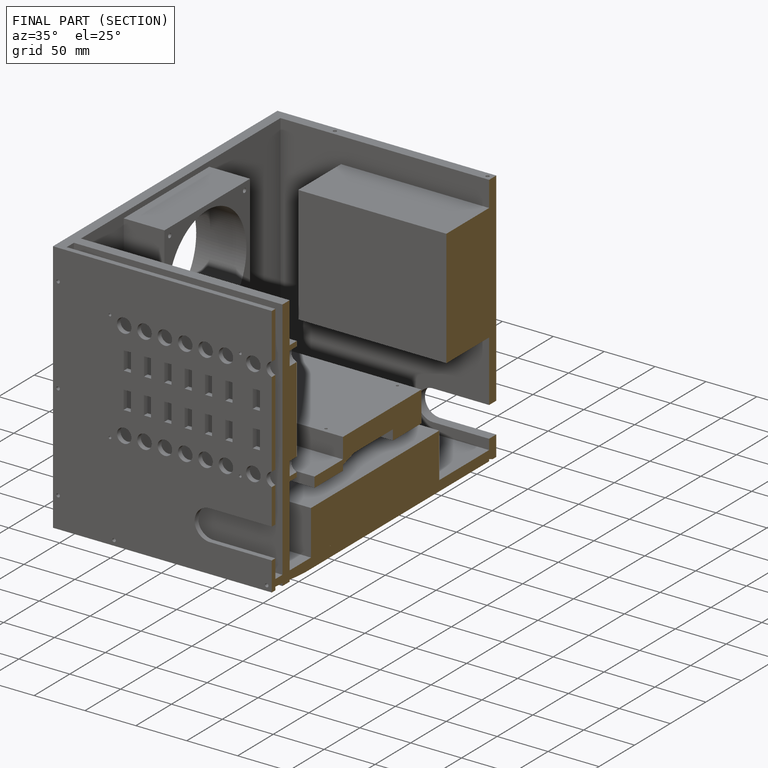
[diagram: finished part — half-section view (interior)]
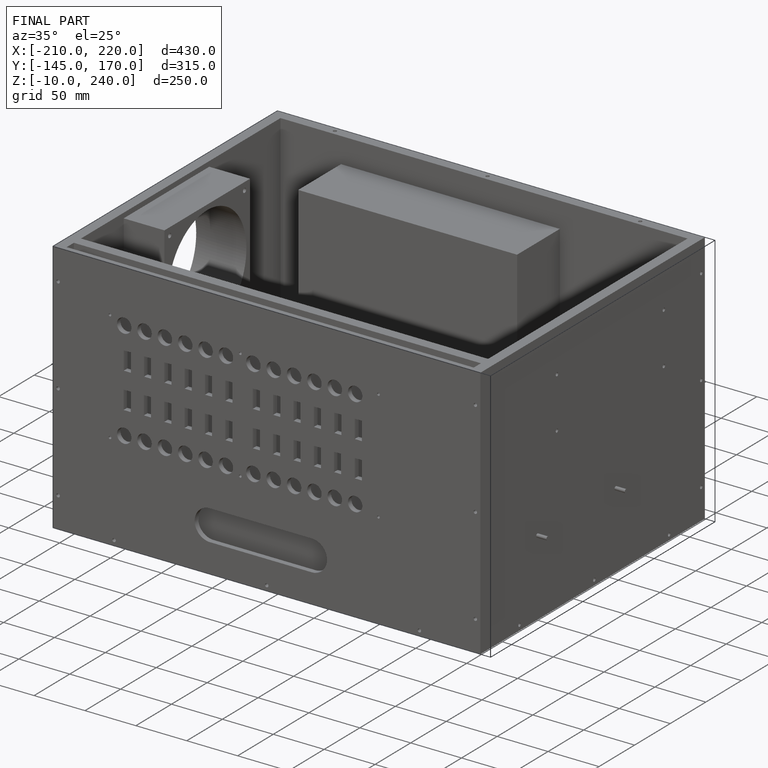
[diagram: finished part — iso view with bounding-box wireframe]
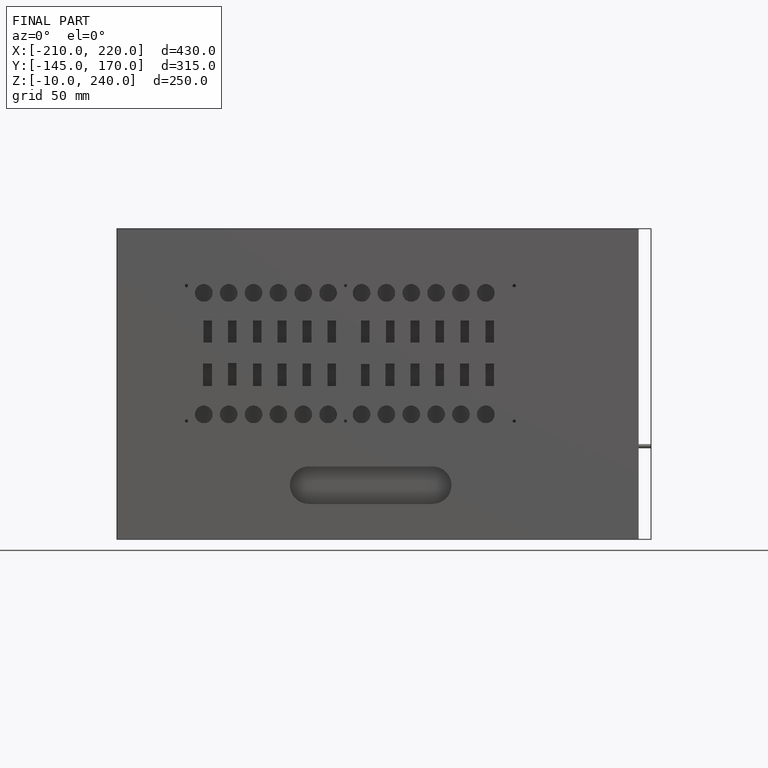
[diagram: finished part — front view with bounding-box wireframe]
